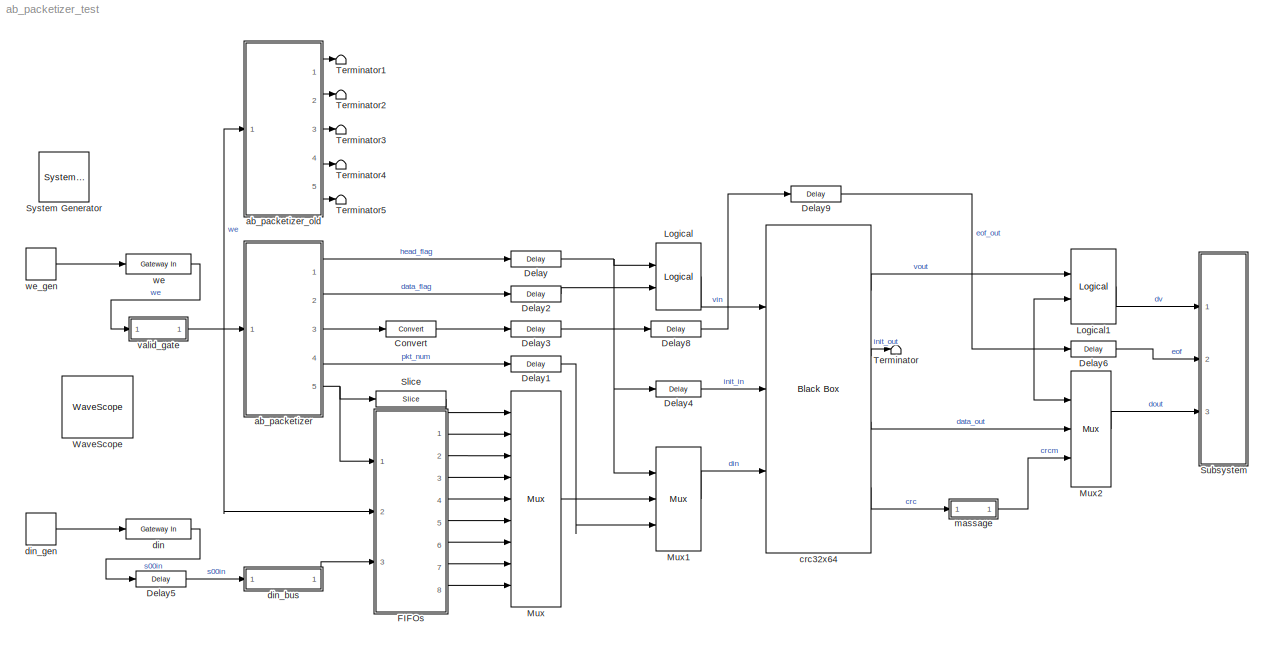
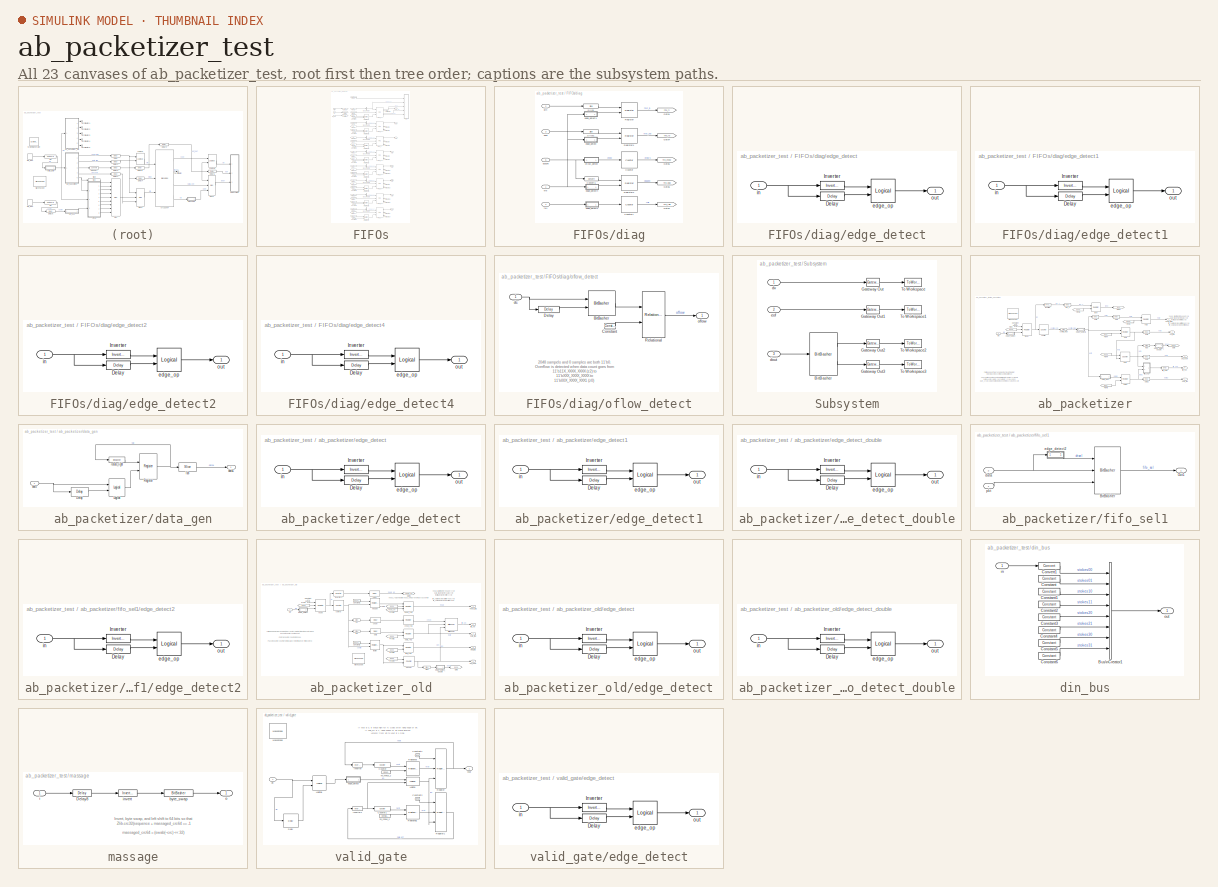
[diagram: thumbnail index - all 23 canvases of the model, root first then tree order]
MODEL ab_packetizer_test
KIND model
BLOCK [Reference]  System Generator  REF=xbsIndex_r4/ System Generator
  AttributesFormatString = System\\nGenerator
  Impl_file = ISE Defaults
  Ports = []
  SID = 21
  SourceBlock = xbsIndex_r4/ System Generator
  SourceType = Xilinx System Generator Block
  Synth_file = XST Defaults
  Tag = genX
  UserData = DataTag0
  UserDataPersistent = on
  block_type = sysgen
  clock_wrapper = Clock Enables
  core_generation = According to Block Masks
  dbl_ovrd = According to Block Masks
  dcm_input_clock_period = 100
  deprecated_control = off
  directory = ./s6/sysgen
  eval_field = 0
  has_advanced_control = 0
  incr_netlist = off
  infoedit = System Generator
  package = ff1759
  part = xc6vsx475t
  proj_type = Project Navigator
  run_coregen = off
  sg_icon_stat = 50,50,0,0,token,white,0,58c5b5770fe5f7c311f53dbc6e73f0f6,right,,[ ],[ ]
  sg_mask_display = fprintf('','COMMENT: begin icon graphics');\npatch([0 50 50 0 0 ],[0 0 50 50 0 ],[1 1 1 ]);\npatch([1.6375 16.81 27.31 37.81 48.31 27.31 12.1375 1.6375 ],[36.655 36.655 47.155 36.655 47.155 47.155 47.155 36.655 ],[0.933333 0.203922 0.141176 ]);\npatch([12.1375 27.31 16.81 1.6375 12.1375 ],[26.155 26.155 36.655 36.655 26.155 ],[0.698039 0.0313725 0.219608 ]);\npatch([1.6375 16.81 27.31 12.1375 1.63...<+335ch>
  sggui_pos = 326,241,464,470
  simulink_period = 1
  speed = -1
  synthesis_tool = XST
  sysclk_period = 4.4444
  testbench = off
  trim_vbits = Everywhere in SubSystem
  xilinxfamily = virtex6
BLOCK [Reference] Convert  REF=xbsIndex_r4/Convert
  Ports = [1, 1]
  SID = 228
  SourceBlock = xbsIndex_r4/Convert
  SourceType = Xilinx Type Converter Block
  arith_type = Unsigned
  bin_pt = 0
  block_type = convert
  dbl_ovrd = off
  en = off
  exp_bits = 8
  float_type = Single
  fraction_bits = 24
  gui_display_data_type = Fixed-point
  has_advanced_control = 0
  infoedit = Hardware notes: rounding and saturating require hardware resources; truncating and wrapping do not.
  latency = 0
  n_bits = 1
  overflow = Wrap
  pipeline = off
  quantization = Truncate
  sg_icon_stat = 50,16,1,1,white,blue,0,edca21da,right,,[ ],[ ]
  sg_mask_display = fprintf('','COMMENT: begin icon graphics');\npatch([0 50 50 0 0 ],[0 0 16 16 0 ],[0.77 0.82 0.91 ]);\nplot([0 50 50 0 0 ],[0 0 16 16 0 ]);\npatch([20.55 23.44 25.44 27.44 29.44 25.44 22.55 20.55 ],[10.22 10.22 12.22 10.22 12.22 12.22 12.22 10.22 ],[1 1 1 ]);\npatch([22.55 25.44 23.44 20.55 22.55 ],[8.22 8.22 10.22 10.22 8.22 ],[0.931 0.946 0.973 ]);\npatch([20.55 23.44 25.44 22.55 20.55 ],[6.22 6....<+315ch>  <repeated x3 — deduplicated; at blocks: Convert, Convert1>
  sggui_pos = 20,20,677,759
  xl_area = [0,0,0,0,0,0,0]
  xl_use_area = off
BLOCK [Reference] Delay  REF=xbsIndex_r4/Delay
  Ports = [1, 1]
  SID = 68
  SourceBlock = xbsIndex_r4/Delay
  SourceType = Xilinx Delay Block
  block_type = delay
  dbl_ovrd = off
  en = off
  has_advanced_control = 0
  infoedit = Hardware notes: A delay line is a chain, each link of which is an SRL16 followed by a flip-flop.
  infoeditControl = Selection of Reset will increase slice count due to use of real FFs and instead of SRLs
  latency = 1
  reg_retiming = on
  rst = off
  sg_icon_stat = 50,16,1,1,white,blue,0,07b98262,right,,[ ],[ ]
  sg_mask_display = fprintf('','COMMENT: begin icon graphics');\npatch([0 50 50 0 0 ],[0 0 16 16 0 ],[0.77 0.82 0.91 ]);\nplot([0 50 50 0 0 ],[0 0 16 16 0 ]);\npatch([20.55 23.44 25.44 27.44 29.44 25.44 22.55 20.55 ],[10.22 10.22 12.22 10.22 12.22 12.22 12.22 10.22 ],[1 1 1 ]);\npatch([22.55 25.44 23.44 20.55 22.55 ],[8.22 8.22 10.22 10.22 8.22 ],[0.931 0.946 0.973 ]);\npatch([20.55 23.44 25.44 22.55 20.55 ],[6.22 6....<+317ch>  <repeated x8 — deduplicated; at blocks: Delay, Delay1, Delay2, Delay3, Delay5, Delay8, Delay9>
  sggui_pos = 20,20,559,473
  xl_area = [0,0,0,0,0,0,0]
  xl_use_area = off
BLOCK [Reference] Delay1  REF=xbsIndex_r4/Delay
  Ports = [1, 1]
  SID = 69
  SourceBlock = xbsIndex_r4/Delay
  SourceType = Xilinx Delay Block
  block_type = delay
  dbl_ovrd = off
  en = off
  has_advanced_control = 0
  infoedit = Hardware notes: A delay line is a chain, each link of which is an SRL16 followed by a flip-flop.
  infoeditControl = Selection of Reset will increase slice count due to use of real FFs and instead of SRLs
  latency = 1
  reg_retiming = on
  rst = off
  sg_icon_stat = 50,16,1,1,white,blue,0,07b98262,right,,[ ],[ ]
  sggui_pos = 20,20,559,473
  xl_area = [0,0,0,0,0,0,0]
  xl_use_area = off
BLOCK [Reference] Delay2  REF=xbsIndex_r4/Delay
  Ports = [1, 1]
  SID = 70
  SourceBlock = xbsIndex_r4/Delay
  SourceType = Xilinx Delay Block
  block_type = delay
  dbl_ovrd = off
  en = off
  has_advanced_control = 0
  infoedit = Hardware notes: A delay line is a chain, each link of which is an SRL16 followed by a flip-flop.
  infoeditControl = Selection of Reset will increase slice count due to use of real FFs and instead of SRLs
  latency = 1
  reg_retiming = on
  rst = off
  sg_icon_stat = 50,16,1,1,white,blue,0,07b98262,right,,[ ],[ ]
  sggui_pos = 20,20,559,473
  xl_area = [0,0,0,0,0,0,0]
  xl_use_area = off
BLOCK [Reference] Delay3  REF=xbsIndex_r4/Delay
  Ports = [1, 1]
  SID = 71
  SourceBlock = xbsIndex_r4/Delay
  SourceType = Xilinx Delay Block
  block_type = delay
  dbl_ovrd = off
  en = off
  has_advanced_control = 0
  infoedit = Hardware notes: A delay line is a chain, each link of which is an SRL16 followed by a flip-flop.
  infoeditControl = Selection of Reset will increase slice count due to use of real FFs and instead of SRLs
  latency = 1
  reg_retiming = on
  rst = off
  sg_icon_stat = 50,16,1,1,white,blue,0,07b98262,right,,[ ],[ ]
  sggui_pos = 20,20,559,473
  xl_area = [0,0,0,0,0,0,0]
  xl_use_area = off
BLOCK [Reference] Delay4  REF=xbsIndex_r4/Delay
  Ports = [1, 1]
  SID = 72
  SourceBlock = xbsIndex_r4/Delay
  SourceType = Xilinx Delay Block
  block_type = delay
  dbl_ovrd = off
  en = off
  has_advanced_control = 0
  infoedit = Hardware notes: A delay line is a chain, each link of which is an SRL16 followed by a flip-flop.
  infoeditControl = Selection of Reset will increase slice count due to use of real FFs and instead of SRLs
  latency = 1
  reg_retiming = on
  rst = off
  sg_icon_stat = 45,16,1,1,white,blue,0,07b98262,right,,[ ],[ ]
  sg_mask_display = fprintf('','COMMENT: begin icon graphics');\npatch([0 45 45 0 0 ],[0 0 16 16 0 ],[0.77 0.82 0.91 ]);\nplot([0 45 45 0 0 ],[0 0 16 16 0 ]);\npatch([17.55 20.44 22.44 24.44 26.44 22.44 19.55 17.55 ],[10.22 10.22 12.22 10.22 12.22 12.22 12.22 10.22 ],[1 1 1 ]);\npatch([19.55 22.44 20.44 17.55 19.55 ],[8.22 8.22 10.22 10.22 8.22 ],[0.931 0.946 0.973 ]);\npatch([17.55 20.44 22.44 19.55 17.55 ],[6.22 6....<+317ch>  <repeated x14 — deduplicated; at blocks: Delay4, Delay6, Delay, Delay8>
  sggui_pos = 20,20,559,473
  xl_area = [0,0,0,0,0,0,0]
  xl_use_area = off
BLOCK [Reference] Delay5  REF=xbsIndex_r4/Delay
  Ports = [1, 1]
  SID = 512
  SourceBlock = xbsIndex_r4/Delay
  SourceType = Xilinx Delay Block
  block_type = delay
  dbl_ovrd = off
  en = off
  has_advanced_control = 0
  infoedit = Hardware notes: A delay line is a chain, each link of which is an SRL16 followed by a flip-flop.
  infoeditControl = Selection of Reset will increase slice count due to use of real FFs and instead of SRLs
  latency = 1
  reg_retiming = on
  rst = off
  sg_icon_stat = 50,16,1,1,white,blue,0,07b98262,right,,[ ],[ ]
  sggui_pos = 20,20,559,473
  xl_area = [0,0,0,0,0,0,0]
  xl_use_area = off
BLOCK [Reference] Delay6  REF=xbsIndex_r4/Delay
  Ports = [1, 1]
  SID = 101
  SourceBlock = xbsIndex_r4/Delay
  SourceType = Xilinx Delay Block
  block_type = delay
  dbl_ovrd = off
  en = off
  has_advanced_control = 0
  infoedit = Hardware notes: A delay line is a chain, each link of which is an SRL16 followed by a flip-flop.
  infoeditControl = Selection of Reset will increase slice count due to use of real FFs and instead of SRLs
  latency = 1
  reg_retiming = on
  rst = off
  sg_icon_stat = 45,16,1,1,white,blue,0,07b98262,right,,[ ],[ ]
  sggui_pos = 20,20,559,473
  xl_area = [0,0,0,0,0,0,0]
  xl_use_area = off
BLOCK [Reference] Delay8  REF=xbsIndex_r4/Delay
  Ports = [1, 1]
  SID = 225
  SourceBlock = xbsIndex_r4/Delay
  SourceType = Xilinx Delay Block
  block_type = delay
  dbl_ovrd = off
  en = off
  has_advanced_control = 0
  infoedit = Hardware notes: A delay line is a chain, each link of which is an SRL16 followed by a flip-flop.
  infoeditControl = Selection of Reset will increase slice count due to use of real FFs and instead of SRLs
  latency = 1
  reg_retiming = on
  rst = off
  sg_icon_stat = 50,16,1,1,white,blue,0,07b98262,right,,[ ],[ ]
  sggui_pos = 20,20,559,473
  xl_area = [0,0,0,0,0,0,0]
  xl_use_area = off
BLOCK [Reference] Delay9  REF=xbsIndex_r4/Delay
  Ports = [1, 1]
  SID = 226
  SourceBlock = xbsIndex_r4/Delay
  SourceType = Xilinx Delay Block
  block_type = delay
  dbl_ovrd = off
  en = off
  has_advanced_control = 0
  infoedit = Hardware notes: A delay line is a chain, each link of which is an SRL16 followed by a flip-flop.
  infoeditControl = Selection of Reset will increase slice count due to use of real FFs and instead of SRLs
  latency = 7
  reg_retiming = on
  rst = off
  sg_icon_stat = 50,16,1,1,white,blue,0,d93bb731,right,,[ ],[ ]
  sggui_pos = 20,20,559,473
  xl_area = [0,0,0,0,0,0,0]
  xl_use_area = off
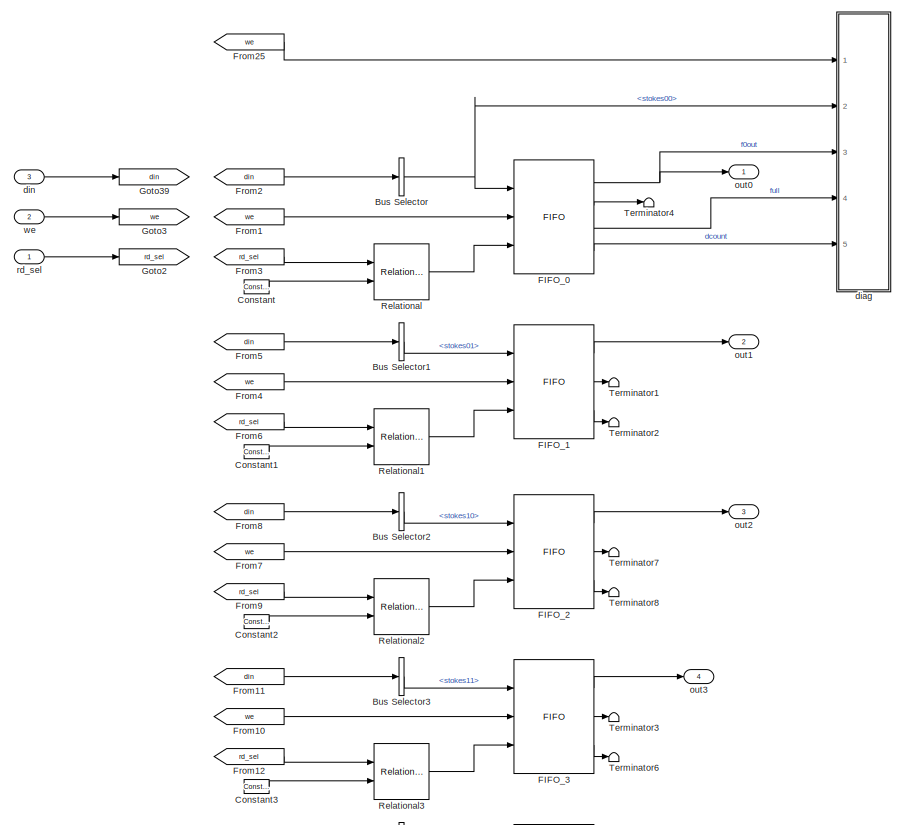
[diagram: FIFOs - part 1/2, full width, top band]
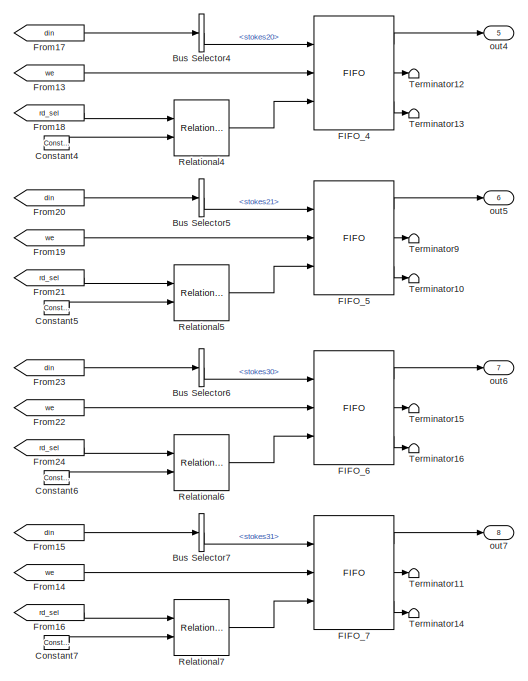
[diagram: FIFOs - part 2/2, bottom center region]
BLOCK [SubSystem] FIFOs
  FunctionWithSeparateData = off
  MaskHideContents = off
  MinAlgLoopOccurrences = off
  Opaque = off
  Ports = [3, 8]
  PropExecContextOutsideSubsystem = off
  RTWSystemCode = Auto
  RequestExecContextInheritance = off
  SID = 351
BLOCK [BusSelector] FIFOs/Bus Selector
  OutputSignals = stokes00
  Ports = [1, 1]
  SID = 355
BLOCK [BusSelector] FIFOs/Bus Selector1
  OutputSignals = stokes01
  Ports = [1, 1]
  SID = 356
BLOCK [BusSelector] FIFOs/Bus Selector2
  OutputSignals = stokes10
  Ports = [1, 1]
  SID = 357
BLOCK [BusSelector] FIFOs/Bus Selector3
  OutputSignals = stokes11
  Ports = [1, 1]
  SID = 358
BLOCK [BusSelector] FIFOs/Bus Selector4
  OutputSignals = stokes20
  Ports = [1, 1]
  SID = 359
BLOCK [BusSelector] FIFOs/Bus Selector5
  OutputSignals = stokes21
  Ports = [1, 1]
  SID = 360
BLOCK [BusSelector] FIFOs/Bus Selector6
  OutputSignals = stokes30
  Ports = [1, 1]
  SID = 361
BLOCK [BusSelector] FIFOs/Bus Selector7
  OutputSignals = stokes31
  Ports = [1, 1]
  SID = 362
BLOCK [Reference] FIFOs/Constant  REF=xbsIndex_r4/Constant
  Ports = [0, 1]
  SID = 363
  SourceBlock = xbsIndex_r4/Constant
  SourceType = Xilinx Constant Block Block
  arith_type = Unsigned
  bin_pt = 0
  block_type = constant
  carry = CIN
  const = 8+0
  dbl_ovrd = off
  dsp48_infoedit = The use of this block for DSP48 instructions is deprecated.  Please use the Opmode block.
  equ = P=C
  exp_width = 8
  explicit_period = on
  frac_width = 24
  gui_display_data_type = Fixed-point
  has_advanced_control = 0
  inp1 = P
  inp2 = PCIN>>17
  n_bits = 4
  opr = +
  opselect = C
  period = 1
  preci_type = Single
  sg_icon_stat = 25,14,0,1,white,blue,0,7a8c02d8,right,,[ ],[ ]
  sg_mask_display = fprintf('','COMMENT: begin icon graphics');\npatch([0 25 25 0 0 ],[0 0 14 14 0 ],[0.77 0.82 0.91 ]);\nplot([0 25 25 0 0 ],[0 0 14 14 0 ]);\npatch([7.55 10.44 12.44 14.44 16.44 12.44 9.55 7.55 ],[9.22 9.22 11.22 9.22 11.22 11.22 11.22 9.22 ],[1 1 1 ]);\npatch([9.55 12.44 10.44 7.55 9.55 ],[7.22 7.22 9.22 9.22 7.22 ],[0.931 0.946 0.973 ]);\npatch([7.55 10.44 12.44 9.55 7.55 ],[5.22 5.22 7.22 7.22 5....<+292ch>
  sggui_pos = 20,20,418,547
BLOCK [Reference] FIFOs/Constant1  REF=xbsIndex_r4/Constant
  Ports = [0, 1]
  SID = 364
  SourceBlock = xbsIndex_r4/Constant
  SourceType = Xilinx Constant Block Block
  arith_type = Unsigned
  bin_pt = 0
  block_type = constant
  carry = CIN
  const = 8+1
  dbl_ovrd = off
  dsp48_infoedit = The use of this block for DSP48 instructions is deprecated.  Please use the Opmode block.
  equ = P=C
  exp_width = 8
  explicit_period = on
  frac_width = 24
  gui_display_data_type = Fixed-point
  has_advanced_control = 0
  inp1 = P
  inp2 = PCIN>>17
  n_bits = 4
  opr = +
  opselect = C
  period = 1
  preci_type = Single
  sg_icon_stat = 25,14,0,1,white,blue,0,350ae870,right,,[ ],[ ]
  sg_mask_display = fprintf('','COMMENT: begin icon graphics');\npatch([0 25 25 0 0 ],[0 0 14 14 0 ],[0.77 0.82 0.91 ]);\nplot([0 25 25 0 0 ],[0 0 14 14 0 ]);\npatch([7.55 10.44 12.44 14.44 16.44 12.44 9.55 7.55 ],[9.22 9.22 11.22 9.22 11.22 11.22 11.22 9.22 ],[1 1 1 ]);\npatch([9.55 12.44 10.44 7.55 9.55 ],[7.22 7.22 9.22 9.22 7.22 ],[0.931 0.946 0.973 ]);\npatch([7.55 10.44 12.44 9.55 7.55 ],[5.22 5.22 7.22 7.22 5....<+292ch>
  sggui_pos = 20,20,418,547
BLOCK [Reference] FIFOs/Constant2  REF=xbsIndex_r4/Constant
  Ports = [0, 1]
  SID = 365
  SourceBlock = xbsIndex_r4/Constant
  SourceType = Xilinx Constant Block Block
  arith_type = Unsigned
  bin_pt = 0
  block_type = constant
  carry = CIN
  const = 8+2
  dbl_ovrd = off
  dsp48_infoedit = The use of this block for DSP48 instructions is deprecated.  Please use the Opmode block.
  equ = P=C
  exp_width = 8
  explicit_period = on
  frac_width = 24
  gui_display_data_type = Fixed-point
  has_advanced_control = 0
  inp1 = P
  inp2 = PCIN>>17
  n_bits = 4
  opr = +
  opselect = C
  period = 1
  preci_type = Single
  sg_icon_stat = 25,14,0,1,white,blue,0,46ffeebb,right,,[ ],[ ]
  sg_mask_display = fprintf('','COMMENT: begin icon graphics');\npatch([0 25 25 0 0 ],[0 0 14 14 0 ],[0.77 0.82 0.91 ]);\nplot([0 25 25 0 0 ],[0 0 14 14 0 ]);\npatch([7.55 10.44 12.44 14.44 16.44 12.44 9.55 7.55 ],[9.22 9.22 11.22 9.22 11.22 11.22 11.22 9.22 ],[1 1 1 ]);\npatch([9.55 12.44 10.44 7.55 9.55 ],[7.22 7.22 9.22 9.22 7.22 ],[0.931 0.946 0.973 ]);\npatch([7.55 10.44 12.44 9.55 7.55 ],[5.22 5.22 7.22 7.22 5....<+293ch>  <repeated x7 — deduplicated; at blocks: Constant2, Constant3, Constant4, Constant5, Constant6, Constant7, Constant>
  sggui_pos = 20,20,418,547
BLOCK [Reference] FIFOs/Constant3  REF=xbsIndex_r4/Constant
  Ports = [0, 1]
  SID = 366
  SourceBlock = xbsIndex_r4/Constant
  SourceType = Xilinx Constant Block Block
  arith_type = Unsigned
  bin_pt = 0
  block_type = constant
  carry = CIN
  const = 8+3
  dbl_ovrd = off
  dsp48_infoedit = The use of this block for DSP48 instructions is deprecated.  Please use the Opmode block.
  equ = P=C
  exp_width = 8
  explicit_period = on
  frac_width = 24
  gui_display_data_type = Fixed-point
  has_advanced_control = 0
  inp1 = P
  inp2 = PCIN>>17
  n_bits = 4
  opr = +
  opselect = C
  period = 1
  preci_type = Single
  sg_icon_stat = 25,14,0,1,white,blue,0,997df0ab,right,,[ ],[ ]
  sggui_pos = 20,20,418,547
BLOCK [Reference] FIFOs/Constant4  REF=xbsIndex_r4/Constant
  Ports = [0, 1]
  SID = 367
  SourceBlock = xbsIndex_r4/Constant
  SourceType = Xilinx Constant Block Block
  arith_type = Unsigned
  bin_pt = 0
  block_type = constant
  carry = CIN
  const = 8+4
  dbl_ovrd = off
  dsp48_infoedit = The use of this block for DSP48 instructions is deprecated.  Please use the Opmode block.
  equ = P=C
  exp_width = 8
  explicit_period = on
  frac_width = 24
  gui_display_data_type = Fixed-point
  has_advanced_control = 0
  inp1 = P
  inp2 = PCIN>>17
  n_bits = 4
  opr = +
  opselect = C
  period = 1
  preci_type = Single
  sg_icon_stat = 25,14,0,1,white,blue,0,9a294e94,right,,[ ],[ ]
  sggui_pos = 20,20,418,547
BLOCK [Reference] FIFOs/Constant5  REF=xbsIndex_r4/Constant
  Ports = [0, 1]
  SID = 368
  SourceBlock = xbsIndex_r4/Constant
  SourceType = Xilinx Constant Block Block
  arith_type = Unsigned
  bin_pt = 0
  block_type = constant
  carry = CIN
  const = 8+5
  dbl_ovrd = off
  dsp48_infoedit = The use of this block for DSP48 instructions is deprecated.  Please use the Opmode block.
  equ = P=C
  exp_width = 8
  explicit_period = on
  frac_width = 24
  gui_display_data_type = Fixed-point
  has_advanced_control = 0
  inp1 = P
  inp2 = PCIN>>17
  n_bits = 4
  opr = +
  opselect = C
  period = 1
  preci_type = Single
  sg_icon_stat = 25,14,0,1,white,blue,0,e89bb8cb,right,,[ ],[ ]
  sggui_pos = 20,20,418,547
BLOCK [Reference] FIFOs/Constant6  REF=xbsIndex_r4/Constant
  Ports = [0, 1]
  SID = 369
  SourceBlock = xbsIndex_r4/Constant
  SourceType = Xilinx Constant Block Block
  arith_type = Unsigned
  bin_pt = 0
  block_type = constant
  carry = CIN
  const = 8+6
  dbl_ovrd = off
  dsp48_infoedit = The use of this block for DSP48 instructions is deprecated.  Please use the Opmode block.
  equ = P=C
  exp_width = 8
  explicit_period = on
  frac_width = 24
  gui_display_data_type = Fixed-point
  has_advanced_control = 0
  inp1 = P
  inp2 = PCIN>>17
  n_bits = 4
  opr = +
  opselect = C
  period = 1
  preci_type = Single
  sg_icon_stat = 25,14,0,1,white,blue,0,9e70b1fa,right,,[ ],[ ]
  sggui_pos = 20,20,418,547
BLOCK [Reference] FIFOs/Constant7  REF=xbsIndex_r4/Constant
  Ports = [0, 1]
  SID = 370
  SourceBlock = xbsIndex_r4/Constant
  SourceType = Xilinx Constant Block Block
  arith_type = Unsigned
  bin_pt = 0
  block_type = constant
  carry = CIN
  const = 8+7
  dbl_ovrd = off
  dsp48_infoedit = The use of this block for DSP48 instructions is deprecated.  Please use the Opmode block.
  equ = P=C
  exp_width = 8
  explicit_period = on
  frac_width = 24
  gui_display_data_type = Fixed-point
  has_advanced_control = 0
  inp1 = P
  inp2 = PCIN>>17
  n_bits = 4
  opr = +
  opselect = C
  period = 1
  preci_type = Single
  sg_icon_stat = 25,14,0,1,white,blue,0,1164c07c,right,,[ ],[ ]
  sggui_pos = 20,20,418,547
BLOCK [Reference] FIFOs/FIFO_0  REF=xbsIndex_r4/FIFO
  Ports = [3, 4]
  SID = 371
  SourceBlock = xbsIndex_r4/FIFO
  SourceType = Xilinx FIFO Block Block
  almost_empty_thresh = 2
  almost_full_thresh = 14
  block_type = fifo
  dbl_ovrd = off
  depth = 2K
  embedded_registers = on
  en = off
  explicit_period = off
  has_advanced_control = 0
  infoedit1 = Available only for V4, V5, V6, V7, K7, A7 and Zynq devices.
  mem_type = Block RAM
  percent_nbits = 1
  performance_options = First_Word_Fall_Through
  rst = off
  sg_icon_stat = 80,114,3,4,white,blue,0,afd465cb,right,,[ ],[ ]
  sg_mask_display = fprintf('','COMMENT: begin icon graphics');\npatch([0 80 80 0 0 ],[0 0 114 114 0 ],[0.77 0.82 0.91 ]);\nplot([0 80 80 0 0 ],[0 0 114 114 0 ]);\npatch([15.525 31.42 42.42 53.42 64.42 42.42 26.525 15.525 ],[69.21 69.21 80.21 69.21 80.21 80.21 80.21 69.21 ],[1 1 1 ]);\npatch([26.525 42.42 31.42 15.525 26.525 ],[58.21 58.21 69.21 69.21 58.21 ],[0.931 0.946 0.973 ]);\npatch([15.525 31.42 42.42 26.525 1...<+621ch>
  sggui_pos = 1067,0,611,897
  use_almost_empty = off
  use_almost_full = off
  use_dcount = on
  use_percent_full_port = off
  xl_area = [0,0,0,0,0,0,0]
  xl_use_area = off
BLOCK [Reference] FIFOs/FIFO_1  REF=xbsIndex_r4/FIFO
  Ports = [3, 3]
  SID = 372
  SourceBlock = xbsIndex_r4/FIFO
  SourceType = Xilinx FIFO Block Block
  almost_empty_thresh = 2
  almost_full_thresh = 14
  block_type = fifo
  dbl_ovrd = off
  depth = 2K
  embedded_registers = on
  en = off
  explicit_period = off
  has_advanced_control = 0
  infoedit1 = Available only for V4, V5, V6, V7, K7, A7 and Zynq devices.
  mem_type = Block RAM
  percent_nbits = 1
  performance_options = First_Word_Fall_Through
  rst = off
  sg_icon_stat = 80,114,3,3,white,blue,0,375ec951,right,,[ ],[ ]
  sg_mask_display = fprintf('','COMMENT: begin icon graphics');\npatch([0 80 80 0 0 ],[0 0 114 114 0 ],[0.77 0.82 0.91 ]);\nplot([0 80 80 0 0 ],[0 0 114 114 0 ]);\npatch([15.525 31.42 42.42 53.42 64.42 42.42 26.525 15.525 ],[69.21 69.21 80.21 69.21 80.21 80.21 80.21 69.21 ],[1 1 1 ]);\npatch([26.525 42.42 31.42 15.525 26.525 ],[58.21 58.21 69.21 69.21 58.21 ],[0.931 0.946 0.973 ]);\npatch([15.525 31.42 42.42 26.525 1...<+572ch>  <repeated x7 — deduplicated; at blocks: FIFO_1, FIFO_2, FIFO_3, FIFO_4, FIFO_5, FIFO_6, FIFO_7>
  sggui_pos = 1067,0,611,897
  use_almost_empty = off
  use_almost_full = off
  use_dcount = off
  use_percent_full_port = off
  xl_area = [0,0,0,0,0,0,0]
  xl_use_area = off
BLOCK [Reference] FIFOs/FIFO_2  REF=xbsIndex_r4/FIFO
  Ports = [3, 3]
  SID = 373
  SourceBlock = xbsIndex_r4/FIFO
  SourceType = Xilinx FIFO Block Block
  almost_empty_thresh = 2
  almost_full_thresh = 14
  block_type = fifo
  dbl_ovrd = off
  depth = 2K
  embedded_registers = on
  en = off
  explicit_period = off
  has_advanced_control = 0
  infoedit1 = Available only for V4, V5, V6, V7, K7, A7 and Zynq devices.
  mem_type = Block RAM
  percent_nbits = 1
  performance_options = First_Word_Fall_Through
  rst = off
  sg_icon_stat = 80,114,3,3,white,blue,0,375ec951,right,,[ ],[ ]
  sggui_pos = 1067,0,611,897
  use_almost_empty = off
  use_almost_full = off
  use_dcount = off
  use_percent_full_port = off
  xl_area = [0,0,0,0,0,0,0]
  xl_use_area = off
BLOCK [Reference] FIFOs/FIFO_3  REF=xbsIndex_r4/FIFO
  Ports = [3, 3]
  SID = 374
  SourceBlock = xbsIndex_r4/FIFO
  SourceType = Xilinx FIFO Block Block
  almost_empty_thresh = 2
  almost_full_thresh = 14
  block_type = fifo
  dbl_ovrd = off
  depth = 2K
  embedded_registers = on
  en = off
  explicit_period = off
  has_advanced_control = 0
  infoedit1 = Available only for V4, V5, V6, V7, K7, A7 and Zynq devices.
  mem_type = Block RAM
  percent_nbits = 1
  performance_options = First_Word_Fall_Through
  rst = off
  sg_icon_stat = 80,114,3,3,white,blue,0,375ec951,right,,[ ],[ ]
  sggui_pos = 1067,0,611,897
  use_almost_empty = off
  use_almost_full = off
  use_dcount = off
  use_percent_full_port = off
  xl_area = [0,0,0,0,0,0,0]
  xl_use_area = off
BLOCK [Reference] FIFOs/FIFO_4  REF=xbsIndex_r4/FIFO
  Ports = [3, 3]
  SID = 375
  SourceBlock = xbsIndex_r4/FIFO
  SourceType = Xilinx FIFO Block Block
  almost_empty_thresh = 2
  almost_full_thresh = 14
  block_type = fifo
  dbl_ovrd = off
  depth = 2K
  embedded_registers = on
  en = off
  explicit_period = off
  has_advanced_control = 0
  infoedit1 = Available only for V4, V5, V6, V7, K7, A7 and Zynq devices.
  mem_type = Block RAM
  percent_nbits = 1
  performance_options = First_Word_Fall_Through
  rst = off
  sg_icon_stat = 80,114,3,3,white,blue,0,375ec951,right,,[ ],[ ]
  sggui_pos = 1067,0,611,897
  use_almost_empty = off
  use_almost_full = off
  use_dcount = off
  use_percent_full_port = off
  xl_area = [0,0,0,0,0,0,0]
  xl_use_area = off
BLOCK [Reference] FIFOs/FIFO_5  REF=xbsIndex_r4/FIFO
  Ports = [3, 3]
  SID = 376
  SourceBlock = xbsIndex_r4/FIFO
  SourceType = Xilinx FIFO Block Block
  almost_empty_thresh = 2
  almost_full_thresh = 14
  block_type = fifo
  dbl_ovrd = off
  depth = 2K
  embedded_registers = on
  en = off
  explicit_period = off
  has_advanced_control = 0
  infoedit1 = Available only for V4, V5, V6, V7, K7, A7 and Zynq devices.
  mem_type = Block RAM
  percent_nbits = 1
  performance_options = First_Word_Fall_Through
  rst = off
  sg_icon_stat = 80,114,3,3,white,blue,0,375ec951,right,,[ ],[ ]
  sggui_pos = 1067,0,611,897
  use_almost_empty = off
  use_almost_full = off
  use_dcount = off
  use_percent_full_port = off
  xl_area = [0,0,0,0,0,0,0]
  xl_use_area = off
BLOCK [Reference] FIFOs/FIFO_6  REF=xbsIndex_r4/FIFO
  Ports = [3, 3]
  SID = 377
  SourceBlock = xbsIndex_r4/FIFO
  SourceType = Xilinx FIFO Block Block
  almost_empty_thresh = 2
  almost_full_thresh = 14
  block_type = fifo
  dbl_ovrd = off
  depth = 2K
  embedded_registers = on
  en = off
  explicit_period = off
  has_advanced_control = 0
  infoedit1 = Available only for V4, V5, V6, V7, K7, A7 and Zynq devices.
  mem_type = Block RAM
  percent_nbits = 1
  performance_options = First_Word_Fall_Through
  rst = off
  sg_icon_stat = 80,114,3,3,white,blue,0,375ec951,right,,[ ],[ ]
  sggui_pos = 1067,0,611,897
  use_almost_empty = off
  use_almost_full = off
  use_dcount = off
  use_percent_full_port = off
  xl_area = [0,0,0,0,0,0,0]
  xl_use_area = off
BLOCK [Reference] FIFOs/FIFO_7  REF=xbsIndex_r4/FIFO
  Ports = [3, 3]
  SID = 378
  SourceBlock = xbsIndex_r4/FIFO
  SourceType = Xilinx FIFO Block Block
  almost_empty_thresh = 2
  almost_full_thresh = 14
  block_type = fifo
  dbl_ovrd = off
  depth = 2K
  embedded_registers = on
  en = off
  explicit_period = off
  has_advanced_control = 0
  infoedit1 = Available only for V4, V5, V6, V7, K7, A7 and Zynq devices.
  mem_type = Block RAM
  percent_nbits = 1
  performance_options = First_Word_Fall_Through
  rst = off
  sg_icon_stat = 80,114,3,3,white,blue,0,375ec951,right,,[ ],[ ]
  sggui_pos = 1067,0,611,897
  use_almost_empty = off
  use_almost_full = off
  use_dcount = off
  use_percent_full_port = off
  xl_area = [0,0,0,0,0,0,0]
  xl_use_area = off
BLOCK [From] FIFOs/From1
  CloseFcn = tagdialog Close
  GotoTag = we
  SID = 379
BLOCK [From] FIFOs/From10
  CloseFcn = tagdialog Close
  GotoTag = we
  SID = 380
BLOCK [From] FIFOs/From11
  CloseFcn = tagdialog Close
  GotoTag = din
  SID = 381
BLOCK [From] FIFOs/From12
  CloseFcn = tagdialog Close
  GotoTag = rd_sel
  SID = 382
BLOCK [From] FIFOs/From13
  CloseFcn = tagdialog Close
  GotoTag = we
  SID = 383
BLOCK [From] FIFOs/From14
  CloseFcn = tagdialog Close
  GotoTag = we
  SID = 384
BLOCK [From] FIFOs/From15
  CloseFcn = tagdialog Close
  GotoTag = din
  SID = 385
BLOCK [From] FIFOs/From16
  CloseFcn = tagdialog Close
  GotoTag = rd_sel
  SID = 386
BLOCK [From] FIFOs/From17
  CloseFcn = tagdialog Close
  GotoTag = din
  SID = 387
BLOCK [From] FIFOs/From18
  CloseFcn = tagdialog Close
  GotoTag = rd_sel
  SID = 388
BLOCK [From] FIFOs/From19
  CloseFcn = tagdialog Close
  GotoTag = we
  SID = 389
BLOCK [From] FIFOs/From2
  CloseFcn = tagdialog Close
  GotoTag = din
  SID = 390
BLOCK [From] FIFOs/From20
  CloseFcn = tagdialog Close
  GotoTag = din
  SID = 391
BLOCK [From] FIFOs/From21
  CloseFcn = tagdialog Close
  GotoTag = rd_sel
  SID = 392
BLOCK [From] FIFOs/From22
  CloseFcn = tagdialog Close
  GotoTag = we
  SID = 393
BLOCK [From] FIFOs/From23
  CloseFcn = tagdialog Close
  GotoTag = din
  SID = 394
BLOCK [From] FIFOs/From24
  CloseFcn = tagdialog Close
  GotoTag = rd_sel
  SID = 395
BLOCK [From] FIFOs/From25
  CloseFcn = tagdialog Close
  GotoTag = we
  SID = 461
BLOCK [From] FIFOs/From3
  CloseFcn = tagdialog Close
  GotoTag = rd_sel
  SID = 396
BLOCK [From] FIFOs/From4
  CloseFcn = tagdialog Close
  GotoTag = we
  SID = 397
BLOCK [From] FIFOs/From5
  CloseFcn = tagdialog Close
  GotoTag = din
  SID = 398
BLOCK [From] FIFOs/From6
  CloseFcn = tagdialog Close
  GotoTag = rd_sel
  SID = 399
BLOCK [From] FIFOs/From7
  CloseFcn = tagdialog Close
  GotoTag = we
  SID = 400
BLOCK [From] FIFOs/From8
  CloseFcn = tagdialog Close
  GotoTag = din
  SID = 401
BLOCK [From] FIFOs/From9
  CloseFcn = tagdialog Close
  GotoTag = rd_sel
  SID = 402
BLOCK [Goto] FIFOs/Goto2
  GotoTag = rd_sel
  SID = 403
BLOCK [Goto] FIFOs/Goto3
  GotoTag = we
  SID = 404
BLOCK [Goto] FIFOs/Goto39
  GotoTag = din
  SID = 405
BLOCK [Reference] FIFOs/Relational  REF=xbsIndex_r4/Relational
  Ports = [2, 1]
  SID = 406
  SourceBlock = xbsIndex_r4/Relational
  SourceType = Xilinx Arithmetic Relational Operator Block
  block_type = relational
  dbl_ovrd = off
  en = off
  has_advanced_control = 0
  latency = 0
  mode = a=b
  sg_icon_stat = 55,56,2,1,white,blue,0,2a81ff49,right,,[ ],[ ]
  sg_mask_display = fprintf('','COMMENT: begin icon graphics');\npatch([0 55 55 0 0 ],[0 0 56 56 0 ],[0.77 0.82 0.91 ]);\nplot([0 55 55 0 0 ],[0 0 56 56 0 ]);\npatch([11.425 21.54 28.54 35.54 42.54 28.54 18.425 11.425 ],[35.77 35.77 42.77 35.77 42.77 42.77 42.77 35.77 ],[1 1 1 ]);\npatch([18.425 28.54 21.54 11.425 18.425 ],[28.77 28.77 35.77 35.77 28.77 ],[0.931 0.946 0.973 ]);\npatch([11.425 21.54 28.54 18.425 11.42...<+473ch>  <repeated x8 — deduplicated; at blocks: Relational, Relational1, Relational2, Relational3, Relational4, Relational5, Relational6, Relational7>
  sggui_pos = 20,20,559,239
  xl_area = [0,0,0,0,0,0,0]
  xl_use_area = off
BLOCK [Reference] FIFOs/Relational1  REF=xbsIndex_r4/Relational
  Ports = [2, 1]
  SID = 407
  SourceBlock = xbsIndex_r4/Relational
  SourceType = Xilinx Arithmetic Relational Operator Block
  block_type = relational
  dbl_ovrd = off
  en = off
  has_advanced_control = 0
  latency = 0
  mode = a=b
  sg_icon_stat = 55,56,2,1,white,blue,0,2a81ff49,right,,[ ],[ ]
  sggui_pos = 20,20,559,239
  xl_area = [0,0,0,0,0,0,0]
  xl_use_area = off
BLOCK [Reference] FIFOs/Relational2  REF=xbsIndex_r4/Relational
  Ports = [2, 1]
  SID = 408
  SourceBlock = xbsIndex_r4/Relational
  SourceType = Xilinx Arithmetic Relational Operator Block
  block_type = relational
  dbl_ovrd = off
  en = off
  has_advanced_control = 0
  latency = 0
  mode = a=b
  sg_icon_stat = 55,56,2,1,white,blue,0,2a81ff49,right,,[ ],[ ]
  sggui_pos = 20,20,559,239
  xl_area = [0,0,0,0,0,0,0]
  xl_use_area = off
BLOCK [Reference] FIFOs/Relational3  REF=xbsIndex_r4/Relational
  Ports = [2, 1]
  SID = 409
  SourceBlock = xbsIndex_r4/Relational
  SourceType = Xilinx Arithmetic Relational Operator Block
  block_type = relational
  dbl_ovrd = off
  en = off
  has_advanced_control = 0
  latency = 0
  mode = a=b
  sg_icon_stat = 55,56,2,1,white,blue,0,2a81ff49,right,,[ ],[ ]
  sggui_pos = 20,20,559,239
  xl_area = [0,0,0,0,0,0,0]
  xl_use_area = off
BLOCK [Reference] FIFOs/Relational4  REF=xbsIndex_r4/Relational
  Ports = [2, 1]
  SID = 410
  SourceBlock = xbsIndex_r4/Relational
  SourceType = Xilinx Arithmetic Relational Operator Block
  block_type = relational
  dbl_ovrd = off
  en = off
  has_advanced_control = 0
  latency = 0
  mode = a=b
  sg_icon_stat = 55,56,2,1,white,blue,0,2a81ff49,right,,[ ],[ ]
  sggui_pos = 20,20,559,239
  xl_area = [0,0,0,0,0,0,0]
  xl_use_area = off
BLOCK [Reference] FIFOs/Relational5  REF=xbsIndex_r4/Relational
  Ports = [2, 1]
  SID = 411
  SourceBlock = xbsIndex_r4/Relational
  SourceType = Xilinx Arithmetic Relational Operator Block
  block_type = relational
  dbl_ovrd = off
  en = off
  has_advanced_control = 0
  latency = 0
  mode = a=b
  sg_icon_stat = 55,56,2,1,white,blue,0,2a81ff49,right,,[ ],[ ]
  sggui_pos = 20,20,559,239
  xl_area = [0,0,0,0,0,0,0]
  xl_use_area = off
BLOCK [Reference] FIFOs/Relational6  REF=xbsIndex_r4/Relational
  Ports = [2, 1]
  SID = 412
  SourceBlock = xbsIndex_r4/Relational
  SourceType = Xilinx Arithmetic Relational Operator Block
  block_type = relational
  dbl_ovrd = off
  en = off
  has_advanced_control = 0
  latency = 0
  mode = a=b
  sg_icon_stat = 55,56,2,1,white,blue,0,2a81ff49,right,,[ ],[ ]
  sggui_pos = 20,20,559,239
  xl_area = [0,0,0,0,0,0,0]
  xl_use_area = off
BLOCK [Reference] FIFOs/Relational7  REF=xbsIndex_r4/Relational
  Ports = [2, 1]
  SID = 413
  SourceBlock = xbsIndex_r4/Relational
  SourceType = Xilinx Arithmetic Relational Operator Block
  block_type = relational
  dbl_ovrd = off
  en = off
  has_advanced_control = 0
  latency = 0
  mode = a=b
  sg_icon_stat = 55,56,2,1,white,blue,0,2a81ff49,right,,[ ],[ ]
  sggui_pos = 20,20,559,239
  xl_area = [0,0,0,0,0,0,0]
  xl_use_area = off
BLOCK [Terminator] FIFOs/Terminator1
  SID = 414
BLOCK [Terminator] FIFOs/Terminator10
  SID = 415
BLOCK [Terminator] FIFOs/Terminator11
  SID = 416
BLOCK [Terminator] FIFOs/Terminator12
  SID = 417
BLOCK [Terminator] FIFOs/Terminator13
  SID = 418
BLOCK [Terminator] FIFOs/Terminator14
  SID = 419
BLOCK [Terminator] FIFOs/Terminator15
  SID = 420
BLOCK [Terminator] FIFOs/Terminator16
  SID = 421
BLOCK [Terminator] FIFOs/Terminator2
  SID = 422
BLOCK [Terminator] FIFOs/Terminator3
  SID = 423
BLOCK [Terminator] FIFOs/Terminator4
  SID = 424
BLOCK [Terminator] FIFOs/Terminator6
  SID = 426
BLOCK [Terminator] FIFOs/Terminator7
  SID = 427
BLOCK [Terminator] FIFOs/Terminator8
  SID = 428
BLOCK [Terminator] FIFOs/Terminator9
  SID = 429
BLOCK [SubSystem] FIFOs/diag
  FunctionWithSeparateData = off
  MaskHideContents = off
  MinAlgLoopOccurrences = off
  Opaque = off
  Ports = [5]
  PropExecContextOutsideSubsystem = off
  RTWSystemCode = Auto
  RequestExecContextInheritance = off
  SID = 479
BLOCK [Reference] FIFOs/diag/Convert1  REF=xbsIndex_r4/Convert
  Ports = [1, 1]
  SID = 474
  SourceBlock = xbsIndex_r4/Convert
  SourceType = Xilinx Type Converter Block
  arith_type = Unsigned
  bin_pt = 0
  block_type = convert
  dbl_ovrd = off
  en = off
  exp_bits = 8
  float_type = Single
  fraction_bits = 24
  gui_display_data_type = Fixed-point
  has_advanced_control = 0
  infoedit = Hardware notes: rounding and saturating require hardware resources; truncating and wrapping do not.
  latency = 0
  n_bits = 32
  overflow = Wrap
  pipeline = off
  quantization = Truncate
  sg_icon_stat = 50,16,1,1,white,blue,0,edca21da,right,,[ ],[ ]
  sggui_pos = 20,20,677,759
  xl_area = [0,0,0,0,0,0,0]
  xl_use_area = off
BLOCK [Reference] FIFOs/diag/Counter  REF=xbsIndex_r4/Counter
  Ports = [1, 1]
  SID = 486
  SourceBlock = xbsIndex_r4/Counter
  SourceType = Xilinx Counter Block
  arith_type = Unsigned
  bin_pt = 0
  block_type = counter
  cnt_by_val = 1
  cnt_to = Inf
  cnt_type = Free Running
  dbl_ovrd = off
  en = on
  explicit_period = on
  has_advanced_control = 0
  implementation = Fabric
  infoedit = Hardware notes: Free running counters are the least expensive in hardware.  A count limited counter is implemented by combining a counter with a comparator.
  load_pin = off
  n_bits = 32
  operation = Up
  period = 1
  rst = off
  sg_icon_stat = 60,60,1,1,white,blue,0,b089e9c5,right,,[ ],[ ]
  sg_mask_display = fprintf('','COMMENT: begin icon graphics');\npatch([0 60 60 0 0 ],[0 0 60 60 0 ],[0.77 0.82 0.91 ]);\nplot([0 60 60 0 0 ],[0 0 60 60 0 ]);\npatch([12.2 23.76 31.76 39.76 47.76 31.76 20.2 12.2 ],[38.88 38.88 46.88 38.88 46.88 46.88 46.88 38.88 ],[1 1 1 ]);\npatch([20.2 31.76 23.76 12.2 20.2 ],[30.88 30.88 38.88 38.88 30.88 ],[0.931 0.946 0.973 ]);\npatch([12.2 23.76 31.76 20.2 12.2 ],[22.88 22.88 3...<+378ch>
  sggui_pos = 20,20,559,887
  start_count = 0
  use_behavioral_HDL = off
  xl_area = [0,0,0,0,0,0,0]
  xl_use_area = off
BLOCK [Reference] FIFOs/diag/Counter1  REF=xbsIndex_r4/Counter
  Ports = [1, 1]
  SID = 496
  SourceBlock = xbsIndex_r4/Counter
  SourceType = Xilinx Counter Block
  arith_type = Unsigned
  bin_pt = 0
  block_type = counter
  cnt_by_val = 1
  cnt_to = Inf
  cnt_type = Free Running
  dbl_ovrd = off
  en = on
  explicit_period = on
  has_advanced_control = 0
  implementation = Fabric
  infoedit = Hardware notes: Free running counters are the least expensive in hardware.  A count limited counter is implemented by combining a counter with a comparator.
  load_pin = off
  n_bits = 32
  operation = Up
  period = 1
  rst = off
  sg_icon_stat = 60,60,1,1,white,blue,0,b089e9c5,right,,[ ],[ ]
  sg_mask_display = fprintf('','COMMENT: begin icon graphics');\npatch([0 60 60 0 0 ],[0 0 60 60 0 ],[0.77 0.82 0.91 ]);\nplot([0 60 60 0 0 ],[0 0 60 60 0 ]);\npatch([12.2 23.76 31.76 39.76 47.76 31.76 20.2 12.2 ],[38.88 38.88 46.88 38.88 46.88 46.88 46.88 38.88 ],[1 1 1 ]);\npatch([20.2 31.76 23.76 12.2 20.2 ],[30.88 30.88 38.88 38.88 30.88 ],[0.931 0.946 0.973 ]);\npatch([12.2 23.76 31.76 20.2 12.2 ],[22.88 22.88 3...<+378ch>
  sggui_pos = 20,20,559,887
  start_count = 0
  use_behavioral_HDL = off
  xl_area = [0,0,0,0,0,0,0]
  xl_use_area = off
BLOCK [Goto] FIFOs/diag/Goto1
  GotoTag = fifo_fi
  SID = 475
  TagVisibility = global
BLOCK [Goto] FIFOs/diag/Goto2
  GotoTag = fifo_fulls
  SID = 497
  TagVisibility = global
BLOCK [Goto] FIFOs/diag/Goto4
  GotoTag = fifo_fo
  SID = 476
  TagVisibility = global
BLOCK [Goto] FIFOs/diag/Goto5
  GotoTag = fifo_oflow
  SID = 477
  TagVisibility = global
BLOCK [Goto] FIFOs/diag/Goto6
  GotoTag = fifo_clog
  SID = 478
  TagVisibility = global
BLOCK [Reference] FIFOs/diag/Register  REF=xbsIndex_r4/Register
  Ports = [2, 1]
  SID = 457
  SourceBlock = xbsIndex_r4/Register
  SourceType = Xilinx Register Block
  block_type = register
  dbl_ovrd = off
  en = on
  has_advanced_control = 0
  init = 0
  rst = off
  sg_icon_stat = 60,56,2,1,white,blue,0,6bd0930c,right,,[ ],[ ]
  sg_mask_display = fprintf('','COMMENT: begin icon graphics');\npatch([0 60 60 0 0 ],[0 0 56 56 0 ],[0.77 0.82 0.91 ]);\nplot([0 60 60 0 0 ],[0 0 56 56 0 ]);\npatch([12.2 23.76 31.76 39.76 47.76 31.76 20.2 12.2 ],[36.88 36.88 44.88 36.88 44.88 44.88 44.88 36.88 ],[1 1 1 ]);\npatch([20.2 31.76 23.76 12.2 20.2 ],[28.88 28.88 36.88 36.88 28.88 ],[0.931 0.946 0.973 ]);\npatch([12.2 23.76 31.76 20.2 12.2 ],[20.88 20.88 2...<+447ch>  <repeated x3 — deduplicated; at blocks: Register, Register1, Register2>
  sggui_pos = 20,20,559,239
  xl_area = [0,0,0,0,0,0,0]
  xl_use_area = off
BLOCK [Reference] FIFOs/diag/Register1  REF=xbsIndex_r4/Register
  Ports = [2, 1]
  SID = 460
  SourceBlock = xbsIndex_r4/Register
  SourceType = Xilinx Register Block
  block_type = register
  dbl_ovrd = off
  en = on
  has_advanced_control = 0
  init = 0
  rst = off
  sg_icon_stat = 60,56,2,1,white,blue,0,6bd0930c,right,,[ ],[ ]
  sggui_pos = 20,20,559,239
  xl_area = [0,0,0,0,0,0,0]
  xl_use_area = off
BLOCK [Reference] FIFOs/diag/Register2  REF=xbsIndex_r4/Register
  Ports = [2, 1]
  SID = 470
  SourceBlock = xbsIndex_r4/Register
  SourceType = Xilinx Register Block
  block_type = register
  dbl_ovrd = off
  en = on
  has_advanced_control = 0
  init = 0
  rst = off
  sg_icon_stat = 60,56,2,1,white,blue,0,6bd0930c,right,,[ ],[ ]
  sggui_pos = 20,20,559,239
  xl_area = [0,0,0,0,0,0,0]
  xl_use_area = off
BLOCK [Reference] FIFOs/diag/Slice  REF=xbsIndex_r4/Slice
  Ports = [1, 1]
  SID = 455
  SourceBlock = xbsIndex_r4/Slice
  SourceType = Xilinx Bit Slice Extractor Block
  base0 = LSB of Input
  base1 = MSB of Input
  bit0 = 0
  bit1 = 0
  block_type = slice
  boolean_output = off
  dbl_ovrd = off
  has_advanced_control = 0
  infoedit = Extracts a given range of bits from each input sample and presents it at the output.  The output type is ordinarily unsigned with binary point at zero, but can be Boolean when the slice is one bit wide.<br><br>Hardware notes: In hardware this block costs nothing.  <repeated x9 — deduplicated; at blocks: Slice, Slice1, control_msb, lsb, msb, b1>
  mode = Lower Bit Location + Width
  nbits = 32
  sg_icon_stat = 55,16,1,1,white,blue,0,1fd851a7,right,,[ ],[ ]
  sg_mask_display = fprintf('','COMMENT: begin icon graphics');\npatch([0 55 55 0 0 ],[0 0 16 16 0 ],[0.77 0.82 0.91 ]);\nplot([0 55 55 0 0 ],[0 0 16 16 0 ]);\npatch([22.55 25.44 27.44 29.44 31.44 27.44 24.55 22.55 ],[10.22 10.22 12.22 10.22 12.22 12.22 12.22 10.22 ],[1 1 1 ]);\npatch([24.55 27.44 25.44 22.55 24.55 ],[8.22 8.22 10.22 10.22 8.22 ],[0.931 0.946 0.973 ]);\npatch([22.55 25.44 27.44 24.55 22.55 ],[6.22 6....<+316ch>
  sggui_pos = 20,20,704,582
BLOCK [Reference] FIFOs/diag/Slice1  REF=xbsIndex_r4/Slice
  Ports = [1, 1]
  SID = 456
  SourceBlock = xbsIndex_r4/Slice
  SourceType = Xilinx Bit Slice Extractor Block
  base0 = LSB of Input
  base1 = MSB of Input
  bit0 = 0
  bit1 = 0
  block_type = slice
  boolean_output = off
  dbl_ovrd = off
  has_advanced_control = 0
  mode = Lower Bit Location + Width
  nbits = 32
  sg_icon_stat = 55,16,1,1,white,blue,0,1fd851a7,right,,[ ],[ ]
  sg_mask_display = fprintf('','COMMENT: begin icon graphics');\npatch([0 55 55 0 0 ],[0 0 16 16 0 ],[0.77 0.82 0.91 ]);\nplot([0 55 55 0 0 ],[0 0 16 16 0 ]);\npatch([22.55 25.44 27.44 29.44 31.44 27.44 24.55 22.55 ],[10.22 10.22 12.22 10.22 12.22 12.22 12.22 10.22 ],[1 1 1 ]);\npatch([24.55 27.44 25.44 22.55 24.55 ],[8.22 8.22 10.22 10.22 8.22 ],[0.931 0.946 0.973 ]);\npatch([22.55 25.44 27.44 24.55 22.55 ],[6.22 6....<+316ch>
  sggui_pos = 20,20,704,582
BLOCK [Inport] FIFOs/diag/dcount
  IconDisplay = Port number
  Port = 5
  SID = 483
BLOCK [Inport] FIFOs/diag/din
  IconDisplay = Port number
  Port = 2
  SID = 484
BLOCK [Inport] FIFOs/diag/dout
  IconDisplay = Port number
  Port = 3
  SID = 485
BLOCK [SubSystem] FIFOs/diag/edge_detect
  AncestorBlock = casper_library_misc/edge_detect
  AttributesFormatString = falling edges\nactive high
  FunctionWithSeparateData = off
  MaskHideContents = off
  MinAlgLoopOccurrences = off
  Opaque = off
  Ports = [1, 1]
  PropExecContextOutsideSubsystem = off
  RTWSystemCode = Auto
  RequestExecContextInheritance = off
  SID = 458
  UserData = DataTag1
  UserDataPersistent = on
BLOCK [Reference] FIFOs/diag/edge_detect/Delay  REF=xbsIndex_r4/Delay
  Ports = [1, 1]
  SID = 458:2
  SourceBlock = xbsIndex_r4/Delay
  SourceType = Xilinx Delay Block
  block_type = delay
  block_version = 10.1.3
  dbl_ovrd = off
  en = off
  has_advanced_control = 0
  infoedit = Hardware notes: A delay line is a chain, each link of which is an SRL16 followed by a flip-flop.
  infoeditControl = Selection of Reset will increase slice count due to use of real FFs and instead of SRLs
  latency = 1
  reg_retiming = off
  rst = off
  sg_icon_stat = 45,16,1,1,white,blue,0,07b98262,right,,[ ],[ ]
  sggui_pos = -1,-1,-1,-1
  xl_area = [0, 0, 0, 0, 0, 0, 0]
  xl_use_area = off
BLOCK [Reference] FIFOs/diag/edge_detect/Inverter  REF=xbsIndex_r4/Inverter
  Ports = [1, 1]
  SID = 458:3
  SourceBlock = xbsIndex_r4/Inverter
  SourceType = Xilinx Inverter Block
  block_type = inv
  block_version = 10.1.3
  dbl_ovrd = off
  en = off
  has_advanced_control = 0
  infoedit = Bitwise logical negation (one's complement) operator.
  latency = 0
  sg_icon_stat = 45,16,1,1,white,blue,0,267846e5,right,,[ ],[ ]
  sg_mask_display = fprintf('','COMMENT: begin icon graphics');\npatch([0 45 45 0 0 ],[0 0 16 16 0 ],[0.77 0.82 0.91 ]);\nplot([0 45 45 0 0 ],[0 0 16 16 0 ]);\npatch([17.55 20.44 22.44 24.44 26.44 22.44 19.55 17.55 ],[10.22 10.22 12.22 10.22 12.22 12.22 12.22 10.22 ],[1 1 1 ]);\npatch([19.55 22.44 20.44 17.55 19.55 ],[8.22 8.22 10.22 10.22 8.22 ],[0.931 0.946 0.973 ]);\npatch([17.55 20.44 22.44 19.55 17.55 ],[6.22 6....<+299ch>  <repeated x12 — deduplicated; at blocks: Inverter, invert>
  sggui_pos = -1,-1,-1,-1
  xl_area = [0, 0, 0, 0, 0, 0, 0]
  xl_use_area = off
BLOCK [Reference] FIFOs/diag/edge_detect/edge_op  REF=xbsIndex_r4/Logical
  Ports = [2, 1]
  SID = 458:4
  SourceBlock = xbsIndex_r4/Logical
  SourceType = Xilinx Logical Block Block
  align_bp = on
  arith_type = Unsigned
  bin_pt = 2
  block_type = logical
  block_version = 10.1.3
  dbl_ovrd = off
  en = off
  has_advanced_control = 0
  inputs = 2
  latency = 0
  logical_function = AND
  n_bits = 8
  precision = Full
  sg_icon_stat = 45,44,2,1,white,blue,0,83a4b621,right,,[ ],[ ]
  sg_mask_display = fprintf('','COMMENT: begin icon graphics');\npatch([0 45 45 0 0 ],[0 0 44 44 0 ],[0.77 0.82 0.91 ]);\nplot([0 45 45 0 0 ],[0 0 44 44 0 ]);\npatch([8.65 17.32 23.32 29.32 35.32 23.32 14.65 8.65 ],[28.66 28.66 34.66 28.66 34.66 34.66 34.66 28.66 ],[1 1 1 ]);\npatch([14.65 23.32 17.32 8.65 14.65 ],[22.66 22.66 28.66 28.66 22.66 ],[0.931 0.946 0.973 ]);\npatch([8.65 17.32 23.32 14.65 8.65 ],[16.66 16....<+310ch>  <repeated x10 — deduplicated; at blocks: edge_op>
  sggui_pos = -1,-1,-1,-1
  xl_area = [0, 0, 0, 0, 0, 0, 0]
  xl_use_area = off
BLOCK [Inport] FIFOs/diag/edge_detect/in
  IconDisplay = Port number
  SID = 458:1
BLOCK [Outport] FIFOs/diag/edge_detect/out
  IconDisplay = Port number
  SID = 458:5
BLOCK [SubSystem] FIFOs/diag/edge_detect1
  AncestorBlock = casper_library_misc/edge_detect
  AttributesFormatString = rising edges\nactive high
  FunctionWithSeparateData = off
  MaskHideContents = off
  MinAlgLoopOccurrences = off
  Opaque = off
  Ports = [1, 1]
  PropExecContextOutsideSubsystem = off
  RTWSystemCode = Auto
  RequestExecContextInheritance = off
  SID = 459
  UserData = DataTag2
  UserDataPersistent = on
BLOCK [Reference] FIFOs/diag/edge_detect1/Delay  REF=xbsIndex_r4/Delay
  Ports = [1, 1]
  SID = 459:2
  SourceBlock = xbsIndex_r4/Delay
  SourceType = Xilinx Delay Block
  block_type = delay
  block_version = 10.1.3
  dbl_ovrd = off
  en = off
  has_advanced_control = 0
  infoedit = Hardware notes: A delay line is a chain, each link of which is an SRL16 followed by a flip-flop.
  infoeditControl = Selection of Reset will increase slice count due to use of real FFs and instead of SRLs
  latency = 1
  reg_retiming = off
  rst = off
  sg_icon_stat = 45,16,1,1,white,blue,0,07b98262,right,,[ ],[ ]
  sggui_pos = -1,-1,-1,-1
  xl_area = [0, 0, 0, 0, 0, 0, 0]
  xl_use_area = off
BLOCK [Reference] FIFOs/diag/edge_detect1/Inverter  REF=xbsIndex_r4/Inverter
  Ports = [1, 1]
  SID = 459:3
  SourceBlock = xbsIndex_r4/Inverter
  SourceType = Xilinx Inverter Block
  block_type = inv
  block_version = 10.1.3
  dbl_ovrd = off
  en = off
  has_advanced_control = 0
  infoedit = Bitwise logical negation (one's complement) operator.
  latency = 0
  sg_icon_stat = 45,16,1,1,white,blue,0,267846e5,right,,[ ],[ ]
  sggui_pos = -1,-1,-1,-1
  xl_area = [0, 0, 0, 0, 0, 0, 0]
  xl_use_area = off
BLOCK [Reference] FIFOs/diag/edge_detect1/edge_op  REF=xbsIndex_r4/Logical
  Ports = [2, 1]
  SID = 459:4
  SourceBlock = xbsIndex_r4/Logical
  SourceType = Xilinx Logical Block Block
  align_bp = on
  arith_type = Unsigned
  bin_pt = 2
  block_type = logical
  block_version = 10.1.3
  dbl_ovrd = off
  en = off
  has_advanced_control = 0
  inputs = 2
  latency = 0
  logical_function = NOR
  n_bits = 8
  precision = Full
  sg_icon_stat = 45,44,2,1,white,blue,0,affe8783,right,,[ ],[ ]
  sggui_pos = -1,-1,-1,-1
  xl_area = [0, 0, 0, 0, 0, 0, 0]
  xl_use_area = off
BLOCK [Inport] FIFOs/diag/edge_detect1/in
  IconDisplay = Port number
  SID = 459:1
BLOCK [Outport] FIFOs/diag/edge_detect1/out
  IconDisplay = Port number
  SID = 459:5
BLOCK [SubSystem] FIFOs/diag/edge_detect2
  AncestorBlock = casper_library_misc/edge_detect
  AttributesFormatString = rising edges\nactive high
  FunctionWithSeparateData = off
  MaskHideContents = off
  MinAlgLoopOccurrences = off
  Opaque = off
  Ports = [1, 1]
  PropExecContextOutsideSubsystem = off
  RTWSystemCode = Auto
  RequestExecContextInheritance = off
  SID = 498
  UserData = DataTag3
  UserDataPersistent = on
BLOCK [Reference] FIFOs/diag/edge_detect2/Delay  REF=xbsIndex_r4/Delay
  Ports = [1, 1]
  SID = 498:2
  SourceBlock = xbsIndex_r4/Delay
  SourceType = Xilinx Delay Block
  block_type = delay
  block_version = 10.1.3
  dbl_ovrd = off
  en = off
  has_advanced_control = 0
  infoedit = Hardware notes: A delay line is a chain, each link of which is an SRL16 followed by a flip-flop.
  infoeditControl = Selection of Reset will increase slice count due to use of real FFs and instead of SRLs
  latency = 1
  reg_retiming = off
  rst = off
  sg_icon_stat = 45,16,1,1,white,blue,0,07b98262,right,,[ ],[ ]
  sggui_pos = -1,-1,-1,-1
  xl_area = [0, 0, 0, 0, 0, 0, 0]
  xl_use_area = off
BLOCK [Reference] FIFOs/diag/edge_detect2/Inverter  REF=xbsIndex_r4/Inverter
  Ports = [1, 1]
  SID = 498:3
  SourceBlock = xbsIndex_r4/Inverter
  SourceType = Xilinx Inverter Block
  block_type = inv
  block_version = 10.1.3
  dbl_ovrd = off
  en = off
  has_advanced_control = 0
  infoedit = Bitwise logical negation (one's complement) operator.
  latency = 0
  sg_icon_stat = 45,16,1,1,white,blue,0,267846e5,right,,[ ],[ ]
  sggui_pos = -1,-1,-1,-1
  xl_area = [0, 0, 0, 0, 0, 0, 0]
  xl_use_area = off
BLOCK [Reference] FIFOs/diag/edge_detect2/edge_op  REF=xbsIndex_r4/Logical
  Ports = [2, 1]
  SID = 498:4
  SourceBlock = xbsIndex_r4/Logical
  SourceType = Xilinx Logical Block Block
  align_bp = on
  arith_type = Unsigned
  bin_pt = 2
  block_type = logical
  block_version = 10.1.3
  dbl_ovrd = off
  en = off
  has_advanced_control = 0
  inputs = 2
  latency = 0
  logical_function = NOR
  n_bits = 8
  precision = Full
  sg_icon_stat = 45,44,2,1,white,blue,0,affe8783,right,,[ ],[ ]
  sggui_pos = -1,-1,-1,-1
  xl_area = [0, 0, 0, 0, 0, 0, 0]
  xl_use_area = off
BLOCK [Inport] FIFOs/diag/edge_detect2/in
  IconDisplay = Port number
  SID = 498:1
BLOCK [Outport] FIFOs/diag/edge_detect2/out
  IconDisplay = Port number
  SID = 498:5
BLOCK [SubSystem] FIFOs/diag/edge_detect4
  AncestorBlock = casper_library_misc/edge_detect
  AttributesFormatString = rising edges\nactive high
  FunctionWithSeparateData = off
  MaskHideContents = off
  MinAlgLoopOccurrences = off
  Opaque = off
  Ports = [1, 1]
  PropExecContextOutsideSubsystem = off
  RTWSystemCode = Auto
  RequestExecContextInheritance = off
  SID = 472
  UserData = DataTag4
  UserDataPersistent = on
BLOCK [Reference] FIFOs/diag/edge_detect4/Delay  REF=xbsIndex_r4/Delay
  Ports = [1, 1]
  SID = 472:2
  SourceBlock = xbsIndex_r4/Delay
  SourceType = Xilinx Delay Block
  block_type = delay
  block_version = 10.1.3
  dbl_ovrd = off
  en = off
  has_advanced_control = 0
  infoedit = Hardware notes: A delay line is a chain, each link of which is an SRL16 followed by a flip-flop.
  infoeditControl = Selection of Reset will increase slice count due to use of real FFs and instead of SRLs
  latency = 1
  reg_retiming = off
  rst = off
  sg_icon_stat = 45,16,1,1,white,blue,0,07b98262,right,,[ ],[ ]
  sggui_pos = -1,-1,-1,-1
  xl_area = [0, 0, 0, 0, 0, 0, 0]
  xl_use_area = off
BLOCK [Reference] FIFOs/diag/edge_detect4/Inverter  REF=xbsIndex_r4/Inverter
  Ports = [1, 1]
  SID = 472:3
  SourceBlock = xbsIndex_r4/Inverter
  SourceType = Xilinx Inverter Block
  block_type = inv
  block_version = 10.1.3
  dbl_ovrd = off
  en = off
  has_advanced_control = 0
  infoedit = Bitwise logical negation (one's complement) operator.
  latency = 0
  sg_icon_stat = 45,16,1,1,white,blue,0,267846e5,right,,[ ],[ ]
  sggui_pos = -1,-1,-1,-1
  xl_area = [0, 0, 0, 0, 0, 0, 0]
  xl_use_area = off
BLOCK [Reference] FIFOs/diag/edge_detect4/edge_op  REF=xbsIndex_r4/Logical
  Ports = [2, 1]
  SID = 472:4
  SourceBlock = xbsIndex_r4/Logical
  SourceType = Xilinx Logical Block Block
  align_bp = on
  arith_type = Unsigned
  bin_pt = 2
  block_type = logical
  block_version = 10.1.3
  dbl_ovrd = off
  en = off
  has_advanced_control = 0
  inputs = 2
  latency = 0
  logical_function = NOR
  n_bits = 8
  precision = Full
  sg_icon_stat = 45,44,2,1,white,blue,0,affe8783,right,,[ ],[ ]
  sggui_pos = -1,-1,-1,-1
  xl_area = [0, 0, 0, 0, 0, 0, 0]
  xl_use_area = off
BLOCK [Inport] FIFOs/diag/edge_detect4/in
  IconDisplay = Port number
  SID = 472:1
BLOCK [Outport] FIFOs/diag/edge_detect4/out
  IconDisplay = Port number
  SID = 472:5
BLOCK [Inport] FIFOs/diag/full
  IconDisplay = Port number
  Port = 4
  SID = 499
BLOCK [SubSystem] FIFOs/diag/oflow_detect
  FunctionWithSeparateData = off
  MaskHideContents = off
  MinAlgLoopOccurrences = off
  Opaque = off
  Ports = [1, 1]
  PropExecContextOutsideSubsystem = off
  RTWSystemCode = Auto
  RequestExecContextInheritance = off
  SID = 492
BLOCK [Reference] FIFOs/diag/oflow_detect/BitBasher  REF=xbsIndex_r4/BitBasher
  Ports = [2, 1]
  SID = 487
  SourceBlock = xbsIndex_r4/BitBasher
  SourceType = Xilinx BitBasher Block
  arith_type1 = Unsigned
  arith_type2 = Unsigned
  arith_type3 = Unsigned
  arith_type4 = Unsigned
  bin_pt1 = 0
  bin_pt2 = 0
  bin_pt3 = 0
  bin_pt4 = 0
  bitexpr = <!DOCTYPE HTML PUBLIC \"-//W3C//DTD HTML 4.0//EN\" \"http://www.w3.org/TR/REC-html40/strict.dtd\">\n<html><head><meta name=\"qrichtext\" content=\"1\" /><style type=\"text/css\">\np, li { white-space: pre-wrap; }\n</style></head><body style=\" font-family:'Sans Serif'; font-size:12pt; font-weight:400; font-style:normal;\">\n<p style=\" margin-top:12px; margin-bottom:12px; margin-left:0px; margin-r...<+161ch>
  block_type = bitbasher
  dbl_ovrd = off
  display_expr = off
  has_advanced_control = 0
  infoedit = Allows extraction, concatenation and augmentation of bits
  sg_icon_stat = 65,60,2,1,white,blue,0,e4c09831,right,,[ ],[ ]
  sg_mask_display = fprintf('','COMMENT: begin icon graphics');\npatch([0 65 65 0 0 ],[0 0 60 60 0 ],[0.77 0.82 0.91 ]);\nplot([0 65 65 0 0 ],[0 0 60 60 0 ]);\npatch([14.2 25.76 33.76 41.76 49.76 33.76 22.2 14.2 ],[38.88 38.88 46.88 38.88 46.88 46.88 46.88 38.88 ],[1 1 1 ]);\npatch([22.2 33.76 25.76 14.2 22.2 ],[30.88 30.88 38.88 38.88 30.88 ],[0.931 0.946 0.973 ]);\npatch([14.2 25.76 33.76 22.2 14.2 ],[22.88 22.88 3...<+401ch>
  sggui_pos = 20,20,400,393
  sr_1 = 1
  sr_2 = 2
  sr_3 = 3
  sr_4 = 4
BLOCK [Reference] FIFOs/diag/oflow_detect/Constant  REF=xbsIndex_r4/Constant
  Ports = [0, 1]
  SID = 489
  SourceBlock = xbsIndex_r4/Constant
  SourceType = Xilinx Constant Block Block
  arith_type = Unsigned
  bin_pt = 0
  block_type = constant
  carry = CIN
  const = bin2dec('11001')
  dbl_ovrd = off
  dsp48_infoedit = The use of this block for DSP48 instructions is deprecated.  Please use the Opmode block.
  equ = P=C
  exp_width = 8
  explicit_period = on
  frac_width = 24
  gui_display_data_type = Fixed-point
  has_advanced_control = 0
  inp1 = P
  inp2 = PCIN>>17
  n_bits = 5
  opr = +
  opselect = C
  period = 1
  preci_type = Single
  sg_icon_stat = 25,14,0,1,white,blue,0,87c7c34d,right,,[ ],[ ]
  sggui_pos = 20,20,418,547
BLOCK [Reference] FIFOs/diag/oflow_detect/Delay  REF=xbsIndex_r4/Delay
  Ports = [1, 1]
  SID = 488
  SourceBlock = xbsIndex_r4/Delay
  SourceType = Xilinx Delay Block
  block_type = delay
  dbl_ovrd = off
  en = off
  has_advanced_control = 0
  infoedit = Hardware notes: A delay line is a chain, each link of which is an SRL16 followed by a flip-flop.
  infoeditControl = Selection of Reset will increase slice count due to use of real FFs and instead of SRLs
  latency = 2
  reg_retiming = on
  rst = off
  sg_icon_stat = 50,16,1,1,white,blue,0,85ce9542,right,,[ ],[ ]
  sggui_pos = 20,20,559,473
  xl_area = [0,0,0,0,0,0,0]
  xl_use_area = off
BLOCK [Reference] FIFOs/diag/oflow_detect/Relational  REF=xbsIndex_r4/Relational
  Ports = [2, 1]
  SID = 490
  SourceBlock = xbsIndex_r4/Relational
  SourceType = Xilinx Arithmetic Relational Operator Block
  block_type = relational
  dbl_ovrd = off
  en = off
  has_advanced_control = 0
  latency = 0
  mode = a=b
  sg_icon_stat = 55,111,2,1,white,blue,0,2a81ff49,right,,[ ],[ ]
  sg_mask_display = fprintf('','COMMENT: begin icon graphics');\npatch([0 55 55 0 0 ],[0 0 111 111 0 ],[0.77 0.82 0.91 ]);\nplot([0 55 55 0 0 ],[0 0 111 111 0 ]);\npatch([11.425 21.54 28.54 35.54 42.54 28.54 18.425 11.425 ],[62.77 62.77 69.77 62.77 69.77 69.77 69.77 62.77 ],[1 1 1 ]);\npatch([18.425 28.54 21.54 11.425 18.425 ],[55.77 55.77 62.77 62.77 55.77 ],[0.931 0.946 0.973 ]);\npatch([11.425 21.54 28.54 18.425 1...<+477ch>
  sggui_pos = 20,20,559,239
  xl_area = [0,0,0,0,0,0,0]
  xl_use_area = off
BLOCK [Inport] FIFOs/diag/oflow_detect/dc
  IconDisplay = Port number
  SID = 493
BLOCK [Outport] FIFOs/diag/oflow_detect/oflow
  IconDisplay = Port number
  SID = 494
BLOCK [Inport] FIFOs/diag/we
  IconDisplay = Port number
  SID = 480
BLOCK [Inport] FIFOs/din
  IconDisplay = Port number
  Port = 3
  SID = 354
BLOCK [Outport] FIFOs/out0
  IconDisplay = Port number
  SID = 430
BLOCK [Outport] FIFOs/out1
  IconDisplay = Port number
  Port = 2
  SID = 431
BLOCK [Outport] FIFOs/out2
  IconDisplay = Port number
  Port = 3
  SID = 432
BLOCK [Outport] FIFOs/out3
  IconDisplay = Port number
  Port = 4
  SID = 433
BLOCK [Outport] FIFOs/out4
  IconDisplay = Port number
  Port = 5
  SID = 434
BLOCK [Outport] FIFOs/out5
  IconDisplay = Port number
  Port = 6
  SID = 435
BLOCK [Outport] FIFOs/out6
  IconDisplay = Port number
  Port = 7
  SID = 436
BLOCK [Outport] FIFOs/out7
  IconDisplay = Port number
  Port = 8
  SID = 437
BLOCK [Inport] FIFOs/rd_sel
  IconDisplay = Port number
  SID = 352
BLOCK [Inport] FIFOs/we
  IconDisplay = Port number
  Port = 2
  SID = 353
BLOCK [Reference] Logical  REF=xbsIndex_r4/Logical
  Ports = [2, 1]
  SID = 73
  SourceBlock = xbsIndex_r4/Logical
  SourceType = Xilinx Logical Block Block
  align_bp = on
  arith_type = Unsigned
  bin_pt = 0
  block_type = logical
  dbl_ovrd = off
  en = off
  has_advanced_control = 0
  inputs = 2
  latency = 1
  logical_function = OR
  n_bits = 16
  precision = Full
  sg_icon_stat = 45,67,2,1,white,blue,0,bc838b24,right,,[ ],[ ]
  sg_mask_display = fprintf('','COMMENT: begin icon graphics');\npatch([0 45 45 0 0 ],[0 0 67 67 0 ],[0.77 0.82 0.91 ]);\nplot([0 45 45 0 0 ],[0 0 67 67 0 ]);\npatch([8.65 17.32 23.32 29.32 35.32 23.32 14.65 8.65 ],[39.66 39.66 45.66 39.66 45.66 45.66 45.66 39.66 ],[1 1 1 ]);\npatch([14.65 23.32 17.32 8.65 14.65 ],[33.66 33.66 39.66 39.66 33.66 ],[0.931 0.946 0.973 ]);\npatch([8.65 17.32 23.32 14.65 8.65 ],[27.66 27....<+370ch>
  sggui_pos = 20,20,559,339
  xl_area = [0,0,0,0,0,0,0]
  xl_use_area = off
BLOCK [Reference] Logical1  REF=xbsIndex_r4/Logical
  Ports = [2, 1]
  SID = 104
  SourceBlock = xbsIndex_r4/Logical
  SourceType = Xilinx Logical Block Block
  align_bp = on
  arith_type = Unsigned
  bin_pt = 0
  block_type = logical
  dbl_ovrd = off
  en = off
  has_advanced_control = 0
  inputs = 2
  latency = 1
  logical_function = OR
  n_bits = 16
  precision = Full
  sg_icon_stat = 45,75,2,1,white,blue,0,bc838b24,right,,[ ],[ ]
  sg_mask_display = fprintf('','COMMENT: begin icon graphics');\npatch([0 45 45 0 0 ],[0 0 75 75 0 ],[0.77 0.82 0.91 ]);\nplot([0 45 45 0 0 ],[0 0 75 75 0 ]);\npatch([8.65 17.32 23.32 29.32 35.32 23.32 14.65 8.65 ],[43.66 43.66 49.66 43.66 49.66 49.66 49.66 43.66 ],[1 1 1 ]);\npatch([14.65 23.32 17.32 8.65 14.65 ],[37.66 37.66 43.66 43.66 37.66 ],[0.931 0.946 0.973 ]);\npatch([8.65 17.32 23.32 14.65 8.65 ],[31.66 31....<+370ch>
  sggui_pos = 20,20,559,339
  xl_area = [0,0,0,0,0,0,0]
  xl_use_area = off
BLOCK [Reference] Mux  REF=xbsIndex_r4/Mux
  Ports = [9, 1]
  SID = 74
  SourceBlock = xbsIndex_r4/Mux
  SourceType = Xilinx Bus Multiplexer Block
  arith_type = Unsigned
  bin_pt = 14
  block_type = mux
  dbl_ovrd = off
  en = off
  has_advanced_control = 0
  inputs = 8
  latency = 1
  n_bits = 16
  overflow = Wrap
  precision = Full
  quantization = Truncate
  sg_icon_stat = 50,216,9,1,white,blue,3,f1dfe151,right,,[ ],[ ]
  sg_mask_display = fprintf('','COMMENT: begin icon graphics');\npatch([0 50 50 0 0 ],[0 30.8571 185.143 216 0 ],[0.77 0.82 0.91 ]);\nplot([0 50 50 0 0 ],[0 30.8571 185.143 216 0 ]);\npatch([9.425 19.54 26.54 33.54 40.54 26.54 16.425 9.425 ],[115.77 115.77 122.77 115.77 122.77 122.77 122.77 115.77 ],[1 1 1 ]);\npatch([16.425 26.54 19.54 9.425 16.425 ],[108.77 108.77 115.77 115.77 108.77 ],[0.931 0.946 0.973 ]);\npatc...<+786ch>
  sggui_pos = 20,20,559,421
  xl_area = [0,0,0,0,0,0,0]
  xl_use_area = off
BLOCK [Reference] Mux1  REF=xbsIndex_r4/Mux
  Ports = [3, 1]
  SID = 75
  SourceBlock = xbsIndex_r4/Mux
  SourceType = Xilinx Bus Multiplexer Block
  arith_type = Unsigned
  bin_pt = 14
  block_type = mux
  dbl_ovrd = off
  en = off
  has_advanced_control = 0
  inputs = 2
  latency = 1
  n_bits = 16
  overflow = Wrap
  precision = Full
  quantization = Truncate
  sg_icon_stat = 45,104,3,1,white,blue,3,a150fb03,right,,[ ],[ ]
  sg_mask_display = fprintf('','COMMENT: begin icon graphics');\npatch([0 45 45 0 0 ],[0 14.8571 89.1429 104 0 ],[0.77 0.82 0.91 ]);\nplot([0 45 45 0 0 ],[0 14.8571 89.1429 104 0 ]);\npatch([8.65 17.32 23.32 29.32 35.32 23.32 14.65 8.65 ],[58.66 58.66 64.66 58.66 64.66 64.66 64.66 58.66 ],[1 1 1 ]);\npatch([14.65 23.32 17.32 8.65 14.65 ],[52.66 52.66 58.66 58.66 52.66 ],[0.931 0.946 0.973 ]);\npatch([8.65 17.32 23.32...<+489ch>
  sggui_pos = 20,20,559,421
  xl_area = [0,0,0,0,0,0,0]
  xl_use_area = off
BLOCK [Reference] Mux2  REF=xbsIndex_r4/Mux
  Ports = [3, 1]
  SID = 105
  SourceBlock = xbsIndex_r4/Mux
  SourceType = Xilinx Bus Multiplexer Block
  arith_type = Unsigned
  bin_pt = 14
  block_type = mux
  dbl_ovrd = off
  en = off
  has_advanced_control = 0
  inputs = 2
  latency = 1
  n_bits = 16
  overflow = Wrap
  precision = Full
  quantization = Truncate
  sg_icon_stat = 40,116,3,1,white,blue,3,a150fb03,right,,[ ],[ ]
  sg_mask_display = fprintf('','COMMENT: begin icon graphics');\npatch([0 40 40 0 0 ],[0 16.5714 99.4286 116 0 ],[0.77 0.82 0.91 ]);\nplot([0 40 40 0 0 ],[0 16.5714 99.4286 116 0 ]);\npatch([8.875 16.1 21.1 26.1 31.1 21.1 13.875 8.875 ],[63.55 63.55 68.55 63.55 68.55 68.55 68.55 63.55 ],[1 1 1 ]);\npatch([13.875 21.1 16.1 8.875 13.875 ],[58.55 58.55 63.55 63.55 58.55 ],[0.931 0.946 0.973 ]);\npatch([8.875 16.1 21.1 1...<+488ch>
  sggui_pos = 20,20,559,421
  xl_area = [0,0,0,0,0,0,0]
  xl_use_area = off
BLOCK [Reference] Slice  REF=xbsIndex_r4/Slice
  Ports = [1, 1]
  SID = 76
  SourceBlock = xbsIndex_r4/Slice
  SourceType = Xilinx Bit Slice Extractor Block
  base0 = LSB of Input
  base1 = MSB of Input
  bit0 = 0
  bit1 = 0
  block_type = slice
  boolean_output = off
  dbl_ovrd = off
  has_advanced_control = 0
  mode = Lower Bit Location + Width
  nbits = 3
  sg_icon_stat = 70,16,1,1,white,blue,0,1fd851a7,right,,[ ],[ ]
  sg_mask_display = fprintf('','COMMENT: begin icon graphics');\npatch([0 70 70 0 0 ],[0 0 16 16 0 ],[0.77 0.82 0.91 ]);\nplot([0 70 70 0 0 ],[0 0 16 16 0 ]);\npatch([30.55 33.44 35.44 37.44 39.44 35.44 32.55 30.55 ],[10.22 10.22 12.22 10.22 12.22 12.22 12.22 10.22 ],[1 1 1 ]);\npatch([32.55 35.44 33.44 30.55 32.55 ],[8.22 8.22 10.22 10.22 8.22 ],[0.931 0.946 0.973 ]);\npatch([30.55 33.44 35.44 32.55 30.55 ],[6.22 6....<+316ch>
  sggui_pos = 20,20,704,582
BLOCK [SubSystem] Subsystem
  FunctionWithSeparateData = off
  MaskHideContents = off
  MinAlgLoopOccurrences = off
  Opaque = off
  Ports = [3]
  PropExecContextOutsideSubsystem = off
  RTWSystemCode = Auto
  RequestExecContextInheritance = off
  SID = 114
BLOCK [Reference] Subsystem/BitBasher  REF=xbsIndex_r4/BitBasher
  Ports = [1, 2]
  SID = 119
  SourceBlock = xbsIndex_r4/BitBasher
  SourceType = Xilinx BitBasher Block
  arith_type1 = Unsigned
  arith_type2 = Unsigned
  arith_type3 = Unsigned
  arith_type4 = Unsigned
  bin_pt1 = 0
  bin_pt2 = 0
  bin_pt3 = 0
  bin_pt4 = 0
  bitexpr = <!DOCTYPE HTML PUBLIC \"-//W3C//DTD HTML 4.0//EN\" \"http://www.w3.org/TR/REC-html40/strict.dtd\">\n<html><head><meta name=\"qrichtext\" content=\"1\" /><style type=\"text/css\">\np, li { white-space: pre-wrap; }\n</style></head><body style=\" font-family:'Sans Serif'; font-size:12pt; font-weight:400; font-style:normal;\">\n<p style=\" margin-top:12px; margin-bottom:12px; margin-left:0px; margin-r...<+167ch>
  block_type = bitbasher
  dbl_ovrd = off
  display_expr = off
  has_advanced_control = 0
  infoedit = Allows extraction, concatenation and augmentation of bits
  sg_icon_stat = 65,102,1,2,white,blue,0,b92f4e82,right,,[ ],[ ]
  sg_mask_display = fprintf('','COMMENT: begin icon graphics');\npatch([0 65 65 0 0 ],[0 0 102 102 0 ],[0.77 0.82 0.91 ]);\nplot([0 65 65 0 0 ],[0 0 102 102 0 ]);\npatch([11.975 24.98 33.98 42.98 51.98 33.98 20.975 11.975 ],[60.99 60.99 69.99 60.99 69.99 69.99 69.99 60.99 ],[1 1 1 ]);\npatch([20.975 33.98 24.98 11.975 20.975 ],[51.99 51.99 60.99 60.99 51.99 ],[0.931 0.946 0.973 ]);\npatch([11.975 24.98 33.98 20.975 1...<+431ch>
  sggui_pos = 20,20,400,393
  sr_1 = 1
  sr_2 = 2
  sr_3 = 3
  sr_4 = 4
BLOCK [Reference] Subsystem/Gateway Out  REF=xbsIndex_r4/Gateway Out
  DACChannel = '1'
  LOCs = {}
  Ports = [1, 1]
  SID = 106
  SourceBlock = xbsIndex_r4/Gateway Out
  SourceType = Xilinx Gateway Out Block
  UseAsDAC = off
  block_type = gatewayout
  has_advanced_control = 0
  hdl_port = off
  infoedit = Gateway out block.  Converts Xilinx fixed-point or floating-point type inputs into ouputs of type Simulink integer, single, double, or fixed-point.<br><br>Hardware notes:  In hardware these blocks become top level output ports or are discarded, depending on how they are configured.  <repeated x4 — deduplicated; at blocks: Gateway Out, Gateway Out1, Gateway Out2, Gateway Out3>
  inherit_from_input = off
  locs_specified = off
  sg_icon_stat = 30,20,1,1,white,grey,1,632ec840,right,,[ ],[ ]
  sg_mask_display = fprintf('','COMMENT: begin icon graphics');\npatch([0 30 30 0 0 ],[0 0 20 20 0 ],[0.88 0.88 0.88 ]);\nplot([0 30 30 0 0 ],[0 0 20 20 0 ]);\npatch([10.55 13.44 15.44 17.44 19.44 15.44 12.55 10.55 ],[12.22 12.22 14.22 12.22 14.22 14.22 14.22 12.22 ],[1 1 1 ]);\npatch([12.55 15.44 13.44 10.55 12.55 ],[10.22 10.22 12.22 12.22 10.22 ],[0.964 0.964 0.964 ]);\npatch([10.55 13.44 15.44 12.55 10.55 ],[8.22...<+393ch>  <repeated x4 — deduplicated; at blocks: Gateway Out, Gateway Out1, Gateway Out2, Gateway Out3>
  sggui_pos = 20,20,543,782
  timing_constraint = None
  xl_area = [0,0,0,0,0,0,0]
  xl_use_area = off
BLOCK [Reference] Subsystem/Gateway Out1  REF=xbsIndex_r4/Gateway Out
  DACChannel = '1'
  LOCs = {}
  Ports = [1, 1]
  SID = 109
  SourceBlock = xbsIndex_r4/Gateway Out
  SourceType = Xilinx Gateway Out Block
  UseAsDAC = off
  block_type = gatewayout
  has_advanced_control = 0
  hdl_port = off
  inherit_from_input = off
  locs_specified = off
  sg_icon_stat = 30,20,1,1,white,grey,1,632ec840,right,,[ ],[ ]
  sggui_pos = 20,20,543,782
  timing_constraint = None
  xl_area = [0,0,0,0,0,0,0]
  xl_use_area = off
BLOCK [Reference] Subsystem/Gateway Out2  REF=xbsIndex_r4/Gateway Out
  DACChannel = '1'
  LOCs = {}
  Ports = [1, 1]
  SID = 110
  SourceBlock = xbsIndex_r4/Gateway Out
  SourceType = Xilinx Gateway Out Block
  UseAsDAC = off
  block_type = gatewayout
  has_advanced_control = 0
  hdl_port = off
  inherit_from_input = on
  locs_specified = off
  sg_icon_stat = 30,20,1,1,white,grey,1,632ec840,right,,[ ],[ ]
  sggui_pos = 20,20,543,782
  timing_constraint = None
  xl_area = [0,0,0,0,0,0,0]
  xl_use_area = off
BLOCK [Reference] Subsystem/Gateway Out3  REF=xbsIndex_r4/Gateway Out
  DACChannel = '1'
  LOCs = {}
  Ports = [1, 1]
  SID = 120
  SourceBlock = xbsIndex_r4/Gateway Out
  SourceType = Xilinx Gateway Out Block
  UseAsDAC = off
  block_type = gatewayout
  has_advanced_control = 0
  hdl_port = off
  inherit_from_input = on
  locs_specified = off
  sg_icon_stat = 30,20,1,1,white,grey,1,632ec840,right,,[ ],[ ]
  sggui_pos = 20,20,543,782
  timing_constraint = None
  xl_area = [0,0,0,0,0,0,0]
  xl_use_area = off
BLOCK [ToWorkspace] Subsystem/To Workspace
  MaxDataPoints = inf
  Ports = [1]
  SID = 111
  SampleTime = -1
  VariableName = dv
BLOCK [ToWorkspace] Subsystem/To Workspace1
  MaxDataPoints = inf
  Ports = [1]
  SID = 112
  SampleTime = -1
  VariableName = eof
BLOCK [ToWorkspace] Subsystem/To Workspace2
  MaxDataPoints = inf
  Ports = [1]
  SID = 113
  SampleTime = -1
  VariableName = dhi
BLOCK [ToWorkspace] Subsystem/To Workspace3
  MaxDataPoints = inf
  Ports = [1]
  SID = 121
  SampleTime = -1
  VariableName = dlo
BLOCK [Inport] Subsystem/dout
  IconDisplay = Port number
  Port = 3
  SID = 117
BLOCK [Inport] Subsystem/dv
  IconDisplay = Port number
  SID = 115
BLOCK [Inport] Subsystem/eof
  IconDisplay = Port number
  Port = 2
  SID = 116
BLOCK [Terminator] Terminator
  SID = 227
BLOCK [Terminator] Terminator1
  SID = 174
BLOCK [Terminator] Terminator2
  SID = 175
BLOCK [Terminator] Terminator3
  SID = 176
BLOCK [Terminator] Terminator4
  SID = 177
BLOCK [Terminator] Terminator5
  SID = 178
BLOCK [Reference] WaveScope  REF=xbsIndex_r4/WaveScope
  Ports = []
  SID = 98
  SourceBlock = xbsIndex_r4/WaveScope
  SourceType = Xilinx WaveScope Block
  UserData = DataTag5
  UserDataPersistent = on
  block_type = wavescope
  has_advanced_control = 0
  infoedit = WaveScope
  sg_icon_stat = 71,62,-1,-1,blue,white,0,07734,right,,[ ],[ ]
  sg_mask_display = fprintf('','COMMENT: begin icon graphics');\npatch([0 71 71 0 0 ],[0 0 62 62 0 ],[1 1 1 ]);\nplot([0 71 71 0 0 ],[0 0 62 62 0 ]);\npatch([17.2 28.76 36.76 44.76 52.76 36.76 25.2 17.2 ],[39.88 39.88 47.88 39.88 47.88 47.88 47.88 39.88 ],[0.839 0.874 0.937 ]);\npatch([25.2 36.76 28.76 17.2 25.2 ],[31.88 31.88 39.88 39.88 31.88 ],[0.77 0.82 0.91 ]);\npatch([17.2 28.76 36.76 25.2 17.2 ],[23.88 23.88 3...<+554ch>  <repeated x4 — deduplicated; at blocks: WaveScope>
  sggui_pos = -1,-1,-1,-1
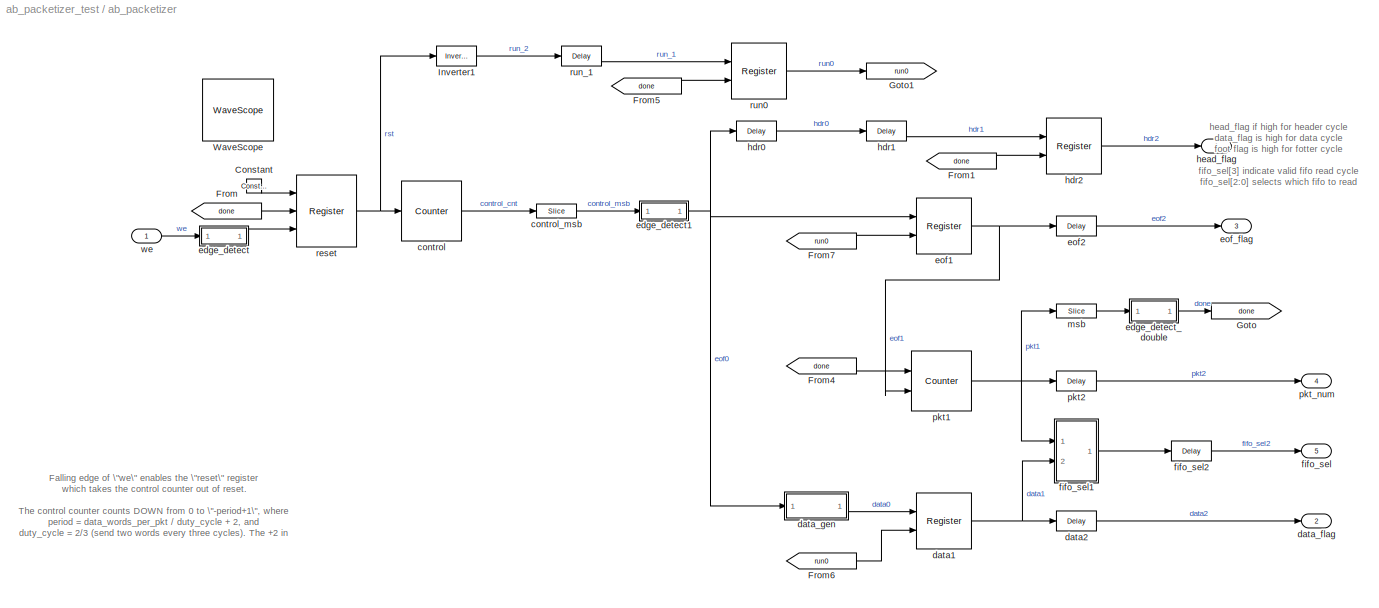
BLOCK [SubSystem] ab_packetizer
  FunctionWithSeparateData = off
  MaskHideContents = off
  MinAlgLoopOccurrences = off
  Opaque = off
  Ports = [1, 5]
  PropExecContextOutsideSubsystem = off
  RTWSystemCode = Auto
  RequestExecContextInheritance = off
  SID = 1
BLOCK [Reference] ab_packetizer/Constant  REF=xbsIndex_r4/Constant
  Ports = [0, 1]
  SID = 3
  SourceBlock = xbsIndex_r4/Constant
  SourceType = Xilinx Constant Block Block
  arith_type = Boolean
  bin_pt = 14
  block_type = constant
  carry = CIN
  const = 0
  dbl_ovrd = off
  dsp48_infoedit = The use of this block for DSP48 instructions is deprecated.  Please use the Opmode block.
  equ = P=C
  exp_width = 8
  explicit_period = on
  frac_width = 24
  gui_display_data_type = Boolean
  has_advanced_control = 0
  inp1 = P
  inp2 = PCIN>>17
  n_bits = 16
  opr = +
  opselect = C
  period = 1
  preci_type = Single
  sg_icon_stat = 15,14,0,1,white,blue,0,bf4ddd8b,right,,[ ],[ ]
  sg_mask_display = fprintf('','COMMENT: begin icon graphics');\npatch([0 15 15 0 0 ],[0 0 14 14 0 ],[0.77 0.82 0.91 ]);\nplot([0 15 15 0 0 ],[0 0 14 14 0 ]);\npatch([2.55 5.44 7.44 9.44 11.44 7.44 4.55 2.55 ],[9.22 9.22 11.22 9.22 11.22 11.22 11.22 9.22 ],[1 1 1 ]);\npatch([4.55 7.44 5.44 2.55 4.55 ],[7.22 7.22 9.22 9.22 7.22 ],[0.931 0.946 0.973 ]);\npatch([2.55 5.44 7.44 4.55 2.55 ],[5.22 5.22 7.22 7.22 5.22 ],[1 ...<+281ch>  <repeated x4 — deduplicated; at blocks: Constant, Constant1, Constant2>
  sggui_pos = 20,20,418,547
BLOCK [From] ab_packetizer/From
  GotoTag = done
  SID = 28
BLOCK [From] ab_packetizer/From1
  GotoTag = done
  SID = 29
BLOCK [From] ab_packetizer/From4
  GotoTag = done
  SID = 32
BLOCK [From] ab_packetizer/From5
  GotoTag = done
  SID = 190
BLOCK [From] ab_packetizer/From6
  GotoTag = run0
  SID = 213
BLOCK [From] ab_packetizer/From7
  GotoTag = run0
  SID = 185
BLOCK [Goto] ab_packetizer/Goto
  GotoTag = done
  SID = 27
BLOCK [Goto] ab_packetizer/Goto1
  GotoTag = run0
  SID = 45
BLOCK [Reference] ab_packetizer/Inverter1  REF=xbsIndex_r4/Inverter
  Ports = [1, 1]
  SID = 47
  SourceBlock = xbsIndex_r4/Inverter
  SourceType = Xilinx Inverter Block
  block_type = inv
  block_version = 10.1.3
  dbl_ovrd = off
  en = off
  has_advanced_control = 0
  infoedit = Bitwise logical negation (one's complement) operator.
  latency = 0
  sg_icon_stat = 40,20,1,1,white,blue,0,267846e5,right,,[ ],[ ]
  sg_mask_display = fprintf('','COMMENT: begin icon graphics');\npatch([0 40 40 0 0 ],[0 0 20 20 0 ],[0.77 0.82 0.91 ]);\nplot([0 40 40 0 0 ],[0 0 20 20 0 ]);\npatch([15.55 18.44 20.44 22.44 24.44 20.44 17.55 15.55 ],[12.22 12.22 14.22 12.22 14.22 14.22 14.22 12.22 ],[1 1 1 ]);\npatch([17.55 20.44 18.44 15.55 17.55 ],[10.22 10.22 12.22 12.22 10.22 ],[0.931 0.946 0.973 ]);\npatch([15.55 18.44 20.44 17.55 15.55 ],[8.22...<+304ch>
  sggui_pos = 20,20,559,383
  xl_area = [0, 0, 0, 0, 0, 0, 0]
  xl_use_area = off
BLOCK [Reference] ab_packetizer/WaveScope  REF=xbsIndex_r4/WaveScope
  Ports = []
  SID = 36
  SourceBlock = xbsIndex_r4/WaveScope
  SourceType = Xilinx WaveScope Block
  UserData = DataTag6
  UserDataPersistent = on
  block_type = wavescope
  has_advanced_control = 0
  infoedit = WaveScope
  sg_icon_stat = 71,62,-1,-1,blue,white,0,07734,right,,[ ],[ ]
  sggui_pos = -1,-1,-1,-1
BLOCK [Reference] ab_packetizer/control  REF=xbsIndex_r4/Counter
  Ports = [1, 1]
  SID = 6
  SourceBlock = xbsIndex_r4/Counter
  SourceType = Xilinx Counter Block
  arith_type = Unsigned
  bin_pt = 0
  block_type = counter
  cnt_by_val = 1
  cnt_to = -(1024*3/2+2)+1
  cnt_type = Count Limited
  dbl_ovrd = off
  en = off
  explicit_period = on
  has_advanced_control = 0
  implementation = DSP48
  infoedit = Hardware notes: Free running counters are the least expensive in hardware.  A count limited counter is implemented by combining a counter with a comparator.
  load_pin = off
  n_bits = nextpow2(1024*3/2 + 2)
  operation = Down
  period = 1
  rst = on
  sg_icon_stat = 60,60,1,1,white,blue,0,686b4038,right,,[ ],[ ]
  sg_mask_display = fprintf('','COMMENT: begin icon graphics');\npatch([0 60 60 0 0 ],[0 0 60 60 0 ],[0.77 0.82 0.91 ]);\nplot([0 60 60 0 0 ],[0 0 60 60 0 ]);\npatch([12.2 23.76 31.76 39.76 47.76 31.76 20.2 12.2 ],[38.88 38.88 46.88 38.88 46.88 46.88 46.88 38.88 ],[1 1 1 ]);\npatch([20.2 31.76 23.76 12.2 20.2 ],[30.88 30.88 38.88 38.88 30.88 ],[0.931 0.946 0.973 ]);\npatch([12.2 23.76 31.76 20.2 12.2 ],[22.88 22.88 3...<+395ch>
  sggui_pos = 1119,0,559,887
  start_count = 0
  use_behavioral_HDL = off
  xl_area = [0,0,0,0,0,0,0]
  xl_use_area = off
BLOCK [Reference] ab_packetizer/control_msb  REF=xbsIndex_r4/Slice
  Ports = [1, 1]
  SID = 179
  SourceBlock = xbsIndex_r4/Slice
  SourceType = Xilinx Bit Slice Extractor Block
  base0 = LSB of Input
  base1 = MSB of Input
  bit0 = 0
  bit1 = 0
  block_type = slice
  boolean_output = on
  dbl_ovrd = off
  has_advanced_control = 0
  mode = Upper Bit Location + Width
  nbits = 1
  sg_icon_stat = 40,14,1,1,white,blue,0,1fd851a7,right,,[ ],[ ]
  sg_mask_display = fprintf('','COMMENT: begin icon graphics');\npatch([0 40 40 0 0 ],[0 0 14 14 0 ],[0.77 0.82 0.91 ]);\nplot([0 40 40 0 0 ],[0 0 14 14 0 ]);\npatch([15.55 18.44 20.44 22.44 24.44 20.44 17.55 15.55 ],[9.22 9.22 11.22 9.22 11.22 11.22 11.22 9.22 ],[1 1 1 ]);\npatch([17.55 20.44 18.44 15.55 17.55 ],[7.22 7.22 9.22 9.22 7.22 ],[0.931 0.946 0.973 ]);\npatch([15.55 18.44 20.44 17.55 15.55 ],[5.22 5.22 7.2...<+310ch>  <repeated x5 — deduplicated; at blocks: control_msb, msb, b1, lsb>
  sggui_pos = 20,20,704,582
BLOCK [Reference] ab_packetizer/data1  REF=xbsIndex_r4/Register
  Ports = [2, 1]
  SID = 214
  SourceBlock = xbsIndex_r4/Register
  SourceType = Xilinx Register Block
  block_type = register
  dbl_ovrd = off
  en = on
  has_advanced_control = 0
  init = 0
  rst = off
  sg_icon_stat = 55,56,2,1,white,blue,0,6bd0930c,right,,[ ],[ ]
  sg_mask_display = fprintf('','COMMENT: begin icon graphics');\npatch([0 55 55 0 0 ],[0 0 56 56 0 ],[0.77 0.82 0.91 ]);\nplot([0 55 55 0 0 ],[0 0 56 56 0 ]);\npatch([11.425 21.54 28.54 35.54 42.54 28.54 18.425 11.425 ],[35.77 35.77 42.77 35.77 42.77 42.77 42.77 35.77 ],[1 1 1 ]);\npatch([18.425 28.54 21.54 11.425 18.425 ],[28.77 28.77 35.77 35.77 28.77 ],[0.931 0.946 0.973 ]);\npatch([11.425 21.54 28.54 18.425 11.42...<+471ch>
  sggui_pos = 20,20,559,239
  xl_area = [0,0,0,0,0,0,0]
  xl_use_area = off
BLOCK [Reference] ab_packetizer/data2  REF=xbsIndex_r4/Delay
  Ports = [1, 1]
  SID = 216
  SourceBlock = xbsIndex_r4/Delay
  SourceType = Xilinx Delay Block
  block_type = delay
  dbl_ovrd = off
  en = off
  has_advanced_control = 0
  infoedit = Hardware notes: A delay line is a chain, each link of which is an SRL16 followed by a flip-flop.
  infoeditControl = Selection of Reset will increase slice count due to use of real FFs and instead of SRLs
  latency = 1
  reg_retiming = off
  rst = off
  sg_icon_stat = 40,20,1,1,white,blue,0,07b98262,right,,[ ],[ ]
  sg_mask_display = fprintf('','COMMENT: begin icon graphics');\npatch([0 40 40 0 0 ],[0 0 20 20 0 ],[0.77 0.82 0.91 ]);\nplot([0 40 40 0 0 ],[0 0 20 20 0 ]);\npatch([15.55 18.44 20.44 22.44 24.44 20.44 17.55 15.55 ],[12.22 12.22 14.22 12.22 14.22 14.22 14.22 12.22 ],[1 1 1 ]);\npatch([17.55 20.44 18.44 15.55 17.55 ],[10.22 10.22 12.22 12.22 10.22 ],[0.931 0.946 0.973 ]);\npatch([15.55 18.44 20.44 17.55 15.55 ],[8.22...<+322ch>  <repeated x7 — deduplicated; at blocks: data2, eof2, fifo_sel2, hdr0, hdr1, pkt2, run_1>
  sggui_pos = -1,-1,-1,-1
  xl_area = [0,0,0,0,0,0,0]
  xl_use_area = off
BLOCK [Outport] ab_packetizer/data_flag
  IconDisplay = Port number
  Port = 2
  SID = 59
BLOCK [SubSystem] ab_packetizer/data_gen
  FunctionWithSeparateData = off
  MaskHideContents = off
  MinAlgLoopOccurrences = off
  Opaque = off
  Ports = [1, 1]
  PropExecContextOutsideSubsystem = off
  RTWSystemCode = Auto
  RequestExecContextInheritance = off
  SID = 192
BLOCK [Reference] ab_packetizer/data_gen/Delay  REF=xbsIndex_r4/Delay
  Ports = [1, 1]
  SID = 202
  SourceBlock = xbsIndex_r4/Delay
  SourceType = Xilinx Delay Block
  block_type = delay
  dbl_ovrd = off
  en = off
  has_advanced_control = 0
  infoedit = Hardware notes: A delay line is a chain, each link of which is an SRL16 followed by a flip-flop.
  infoeditControl = Selection of Reset will increase slice count due to use of real FFs and instead of SRLs
  latency = 1
  reg_retiming = off
  rst = off
  sg_icon_stat = 60,30,1,1,white,blue,0,07b98262,right,,[ ],[ ]
  sg_mask_display = fprintf('','COMMENT: begin icon graphics');\npatch([0 60 60 0 0 ],[0 0 30 30 0 ],[0.77 0.82 0.91 ]);\nplot([0 60 60 0 0 ],[0 0 30 30 0 ]);\npatch([21.1 26.88 30.88 34.88 38.88 30.88 25.1 21.1 ],[19.44 19.44 23.44 19.44 23.44 23.44 23.44 19.44 ],[1 1 1 ]);\npatch([25.1 30.88 26.88 21.1 25.1 ],[15.44 15.44 19.44 19.44 15.44 ],[0.931 0.946 0.973 ]);\npatch([21.1 26.88 30.88 25.1 21.1 ],[11.44 11.44 1...<+316ch>  <repeated x4 — deduplicated; at blocks: Delay, chsel, data, data2>
  sggui_pos = -1,-1,-1,-1
  xl_area = [0,0,0,0,0,0,0]
  xl_use_area = off
BLOCK [Reference] ab_packetizer/data_gen/Logical  REF=xbsIndex_r4/Logical
  Ports = [2, 1]
  SID = 201
  SourceBlock = xbsIndex_r4/Logical
  SourceType = Xilinx Logical Block Block
  align_bp = on
  arith_type = Unsigned
  bin_pt = 0
  block_type = logical
  dbl_ovrd = off
  en = off
  has_advanced_control = 0
  inputs = 2
  latency = 0
  logical_function = OR
  n_bits = 16
  precision = Full
  sg_icon_stat = 55,60,2,1,white,blue,0,7ede7d88,right,,[ ],[ ]
  sg_mask_display = fprintf('','COMMENT: begin icon graphics');\npatch([0 55 55 0 0 ],[0 0 60 60 0 ],[0.77 0.82 0.91 ]);\nplot([0 55 55 0 0 ],[0 0 60 60 0 ]);\npatch([11.425 21.54 28.54 35.54 42.54 28.54 18.425 11.425 ],[37.77 37.77 44.77 37.77 44.77 44.77 44.77 37.77 ],[1 1 1 ]);\npatch([18.425 28.54 21.54 11.425 18.425 ],[30.77 30.77 37.77 37.77 30.77 ],[0.931 0.946 0.973 ]);\npatch([11.425 21.54 28.54 18.425 11.42...<+327ch>
  sggui_pos = 20,20,559,339
  xl_area = [0,0,0,0,0,0,0]
  xl_use_area = off
BLOCK [Reference] ab_packetizer/data_gen/Register  REF=xbsIndex_r4/Register
  Ports = [2, 1]
  SID = 196
  SourceBlock = xbsIndex_r4/Register
  SourceType = Xilinx Register Block
  block_type = register
  dbl_ovrd = off
  en = off
  has_advanced_control = 0
  init = 6
  rst = on
  sg_icon_stat = 60,87,2,1,white,blue,0,140cc11c,right,,[ ],[ ]
  sg_mask_display = fprintf('','COMMENT: begin icon graphics');\npatch([0 60 60 0 0 ],[0 0 87 87 0 ],[0.77 0.82 0.91 ]);\nplot([0 60 60 0 0 ],[0 0 87 87 0 ]);\npatch([12.2 23.76 31.76 39.76 47.76 31.76 20.2 12.2 ],[51.88 51.88 59.88 51.88 59.88 59.88 59.88 51.88 ],[1 1 1 ]);\npatch([20.2 31.76 23.76 12.2 20.2 ],[43.88 43.88 51.88 51.88 43.88 ],[0.931 0.946 0.973 ]);\npatch([12.2 23.76 31.76 20.2 12.2 ],[35.88 35.88 4...<+448ch>
  sggui_pos = 20,20,559,239
  xl_area = [0,0,0,0,0,0,0]
  xl_use_area = off
BLOCK [Outport] ab_packetizer/data_gen/data1
  IconDisplay = Port number
  SID = 200
BLOCK [Inport] ab_packetizer/data_gen/eof0
  IconDisplay = Port number
  SID = 193
BLOCK [Reference] ab_packetizer/data_gen/lsb  REF=xbsIndex_r4/Slice
  Ports = [1, 1]
  SID = 198
  SourceBlock = xbsIndex_r4/Slice
  SourceType = Xilinx Bit Slice Extractor Block
  base0 = LSB of Input
  base1 = MSB of Input
  bit0 = 0
  bit1 = 0
  block_type = slice
  boolean_output = on
  dbl_ovrd = off
  has_advanced_control = 0
  mode = Lower Bit Location + Width
  nbits = 1
  sg_icon_stat = 60,30,1,1,white,blue,0,1fd851a7,right,,[ ],[ ]
  sg_mask_display = fprintf('','COMMENT: begin icon graphics');\npatch([0 60 60 0 0 ],[0 0 30 30 0 ],[0.77 0.82 0.91 ]);\nplot([0 60 60 0 0 ],[0 0 30 30 0 ]);\npatch([21.1 26.88 30.88 34.88 38.88 30.88 25.1 21.1 ],[19.44 19.44 23.44 19.44 23.44 23.44 23.44 19.44 ],[1 1 1 ]);\npatch([25.1 30.88 26.88 21.1 25.1 ],[15.44 15.44 19.44 19.44 15.44 ],[0.931 0.946 0.973 ]);\npatch([21.1 26.88 30.88 25.1 21.1 ],[11.44 11.44 1...<+315ch>
  sggui_pos = 20,20,704,582
BLOCK [Reference] ab_packetizer/data_gen/rotate_right  REF=xbsIndex_r4/BitBasher
  Ports = [1, 1]
  SID = 199
  SourceBlock = xbsIndex_r4/BitBasher
  SourceType = Xilinx BitBasher Block
  arith_type1 = Unsigned
  arith_type2 = Unsigned
  arith_type3 = Unsigned
  arith_type4 = Unsigned
  bin_pt1 = 0
  bin_pt2 = 0
  bin_pt3 = 0
  bin_pt4 = 0
  bitexpr = <!DOCTYPE HTML PUBLIC \"-//W3C//DTD HTML 4.0//EN\" \"http://www.w3.org/TR/REC-html40/strict.dtd\">\n<html><head><meta name=\"qrichtext\" content=\"1\" /><style type=\"text/css\">\np, li { white-space: pre-wrap; }\n</style></head><body style=\" font-family:'Sans Serif'; font-size:12pt; font-weight:400; font-style:normal;\">\n<p style=\" margin-top:12px; margin-bottom:12px; margin-left:0px; margin-r...<+150ch>
  block_type = bitbasher
  dbl_ovrd = off
  display_expr = off
  has_advanced_control = 0
  infoedit = Allows extraction, concatenation and augmentation of bits
  sg_icon_stat = 55,20,1,1,white,blue,0,e24f85ac,right,,[ ],[ ]
  sg_mask_display = fprintf('','COMMENT: begin icon graphics');\npatch([0 55 55 0 0 ],[0 0 20 20 0 ],[0.77 0.82 0.91 ]);\nplot([0 55 55 0 0 ],[0 0 20 20 0 ]);\npatch([22.55 25.44 27.44 29.44 31.44 27.44 24.55 22.55 ],[12.22 12.22 14.22 12.22 14.22 14.22 14.22 12.22 ],[1 1 1 ]);\npatch([24.55 27.44 25.44 22.55 24.55 ],[10.22 10.22 12.22 12.22 10.22 ],[0.931 0.946 0.973 ]);\npatch([22.55 25.44 27.44 24.55 22.55 ],[8.22...<+358ch>
  sggui_pos = 20,20,400,393
  sr_1 = 1
  sr_2 = 2
  sr_3 = 3
  sr_4 = 4
BLOCK [SubSystem] ab_packetizer/edge_detect
  AncestorBlock = casper_library_misc/edge_detect
  AttributesFormatString = falling edges\nactive high
  FunctionWithSeparateData = off
  MaskHideContents = off
  MinAlgLoopOccurrences = off
  Opaque = off
  Ports = [1, 1]
  PropExecContextOutsideSubsystem = off
  RTWSystemCode = Auto
  RequestExecContextInheritance = off
  SID = 9
  UserData = DataTag7
  UserDataPersistent = on
BLOCK [Reference] ab_packetizer/edge_detect/Delay  REF=xbsIndex_r4/Delay
  Ports = [1, 1]
  SID = 9:2
  SourceBlock = xbsIndex_r4/Delay
  SourceType = Xilinx Delay Block
  block_type = delay
  block_version = 10.1.3
  dbl_ovrd = off
  en = off
  has_advanced_control = 0
  infoedit = Hardware notes: A delay line is a chain, each link of which is an SRL16 followed by a flip-flop.
  infoeditControl = Selection of Reset will increase slice count due to use of real FFs and instead of SRLs
  latency = 1
  reg_retiming = off
  rst = off
  sg_icon_stat = 45,16,1,1,white,blue,0,07b98262,right,,[ ],[ ]
  sggui_pos = -1,-1,-1,-1
  xl_area = [0, 0, 0, 0, 0, 0, 0]
  xl_use_area = off
BLOCK [Reference] ab_packetizer/edge_detect/Inverter  REF=xbsIndex_r4/Inverter
  Ports = [1, 1]
  SID = 9:3
  SourceBlock = xbsIndex_r4/Inverter
  SourceType = Xilinx Inverter Block
  block_type = inv
  block_version = 10.1.3
  dbl_ovrd = off
  en = off
  has_advanced_control = 0
  infoedit = Bitwise logical negation (one's complement) operator.
  latency = 0
  sg_icon_stat = 45,16,1,1,white,blue,0,267846e5,right,,[ ],[ ]
  sggui_pos = -1,-1,-1,-1
  xl_area = [0, 0, 0, 0, 0, 0, 0]
  xl_use_area = off
BLOCK [Reference] ab_packetizer/edge_detect/edge_op  REF=xbsIndex_r4/Logical
  Ports = [2, 1]
  SID = 9:4
  SourceBlock = xbsIndex_r4/Logical
  SourceType = Xilinx Logical Block Block
  align_bp = on
  arith_type = Unsigned
  bin_pt = 2
  block_type = logical
  block_version = 10.1.3
  dbl_ovrd = off
  en = off
  has_advanced_control = 0
  inputs = 2
  latency = 0
  logical_function = AND
  n_bits = 8
  precision = Full
  sg_icon_stat = 45,44,2,1,white,blue,0,83a4b621,right,,[ ],[ ]
  sggui_pos = -1,-1,-1,-1
  xl_area = [0, 0, 0, 0, 0, 0, 0]
  xl_use_area = off
BLOCK [Inport] ab_packetizer/edge_detect/in
  IconDisplay = Port number
  SID = 9:1
BLOCK [Outport] ab_packetizer/edge_detect/out
  IconDisplay = Port number
  SID = 9:5
BLOCK [SubSystem] ab_packetizer/edge_detect1
  AncestorBlock = casper_library_misc/edge_detect
  AttributesFormatString = rising edges\nactive high
  FunctionWithSeparateData = off
  MaskHideContents = off
  MinAlgLoopOccurrences = off
  Opaque = off
  Ports = [1, 1]
  PropExecContextOutsideSubsystem = off
  RTWSystemCode = Auto
  RequestExecContextInheritance = off
  SID = 181
  UserData = DataTag8
  UserDataPersistent = on
BLOCK [Reference] ab_packetizer/edge_detect1/Delay  REF=xbsIndex_r4/Delay
  Ports = [1, 1]
  SID = 181:2
  SourceBlock = xbsIndex_r4/Delay
  SourceType = Xilinx Delay Block
  block_type = delay
  block_version = 10.1.3
  dbl_ovrd = off
  en = off
  has_advanced_control = 0
  infoedit = Hardware notes: A delay line is a chain, each link of which is an SRL16 followed by a flip-flop.
  infoeditControl = Selection of Reset will increase slice count due to use of real FFs and instead of SRLs
  latency = 1
  reg_retiming = off
  rst = off
  sg_icon_stat = 45,16,1,1,white,blue,0,07b98262,right,,[ ],[ ]
  sggui_pos = -1,-1,-1,-1
  xl_area = [0, 0, 0, 0, 0, 0, 0]
  xl_use_area = off
BLOCK [Reference] ab_packetizer/edge_detect1/Inverter  REF=xbsIndex_r4/Inverter
  Ports = [1, 1]
  SID = 181:3
  SourceBlock = xbsIndex_r4/Inverter
  SourceType = Xilinx Inverter Block
  block_type = inv
  block_version = 10.1.3
  dbl_ovrd = off
  en = off
  has_advanced_control = 0
  infoedit = Bitwise logical negation (one's complement) operator.
  latency = 0
  sg_icon_stat = 45,16,1,1,white,blue,0,267846e5,right,,[ ],[ ]
  sggui_pos = -1,-1,-1,-1
  xl_area = [0, 0, 0, 0, 0, 0, 0]
  xl_use_area = off
BLOCK [Reference] ab_packetizer/edge_detect1/edge_op  REF=xbsIndex_r4/Logical
  Ports = [2, 1]
  SID = 181:4
  SourceBlock = xbsIndex_r4/Logical
  SourceType = Xilinx Logical Block Block
  align_bp = on
  arith_type = Unsigned
  bin_pt = 2
  block_type = logical
  block_version = 10.1.3
  dbl_ovrd = off
  en = off
  has_advanced_control = 0
  inputs = 2
  latency = 0
  logical_function = NOR
  n_bits = 8
  precision = Full
  sg_icon_stat = 45,44,2,1,white,blue,0,affe8783,right,,[ ],[ ]
  sggui_pos = -1,-1,-1,-1
  xl_area = [0, 0, 0, 0, 0, 0, 0]
  xl_use_area = off
BLOCK [Inport] ab_packetizer/edge_detect1/in
  IconDisplay = Port number
  SID = 181:1
BLOCK [Outport] ab_packetizer/edge_detect1/out
  IconDisplay = Port number
  SID = 181:5
BLOCK [SubSystem] ab_packetizer/edge_detect_double
  AttributesFormatString = falling edge\\nactive high 2 cycles
  FunctionWithSeparateData = off
  MaskHideContents = off
  MinAlgLoopOccurrences = off
  Opaque = off
  Ports = [1, 1]
  PropExecContextOutsideSubsystem = off
  RTWSystemCode = Auto
  RequestExecContextInheritance = off
  SID = 10
  UserData = DataTag9
  UserDataPersistent = on
BLOCK [Reference] ab_packetizer/edge_detect_double/Delay  REF=xbsIndex_r4/Delay
  Ports = [1, 1]
  SID = 23
  SourceBlock = xbsIndex_r4/Delay
  SourceType = Xilinx Delay Block
  block_type = delay
  block_version = 10.1.3
  dbl_ovrd = off
  en = off
  has_advanced_control = 0
  infoedit = Hardware notes: A delay line is a chain, each link of which is an SRL16 followed by a flip-flop.
  infoeditControl = Selection of Reset will increase slice count due to use of real FFs and instead of SRLs
  latency = 2
  reg_retiming = off
  rst = off
  sg_icon_stat = 45,16,1,1,white,blue,0,85ce9542,right,,[ ],[ ]
  sggui_pos = 20,20,559,473
  xl_area = [0, 0, 0, 0, 0, 0, 0]
  xl_use_area = off
BLOCK [Reference] ab_packetizer/edge_detect_double/Inverter  REF=xbsIndex_r4/Inverter
  Ports = [1, 1]
  SID = 24
  SourceBlock = xbsIndex_r4/Inverter
  SourceType = Xilinx Inverter Block
  block_type = inv
  block_version = 10.1.3
  dbl_ovrd = off
  en = off
  has_advanced_control = 0
  infoedit = Bitwise logical negation (one's complement) operator.
  latency = 0
  sg_icon_stat = 45,16,1,1,white,blue,0,267846e5,right,,[ ],[ ]
  sggui_pos = -1,-1,-1,-1
  xl_area = [0, 0, 0, 0, 0, 0, 0]
  xl_use_area = off
BLOCK [Reference] ab_packetizer/edge_detect_double/edge_op  REF=xbsIndex_r4/Logical
  Ports = [2, 1]
  SID = 25
  SourceBlock = xbsIndex_r4/Logical
  SourceType = Xilinx Logical Block Block
  align_bp = on
  arith_type = Unsigned
  bin_pt = 2
  block_type = logical
  block_version = 10.1.3
  dbl_ovrd = off
  en = off
  has_advanced_control = 0
  inputs = 2
  latency = 0
  logical_function = AND
  n_bits = 8
  precision = Full
  sg_icon_stat = 45,44,2,1,white,blue,0,83a4b621,right,,[ ],[ ]
  sggui_pos = 20,20,559,339
  xl_area = [0, 0, 0, 0, 0, 0, 0]
  xl_use_area = off
BLOCK [Inport] ab_packetizer/edge_detect_double/in
  IconDisplay = Port number
  SID = 22
BLOCK [Outport] ab_packetizer/edge_detect_double/out
  IconDisplay = Port number
  SID = 26
BLOCK [Reference] ab_packetizer/eof1  REF=xbsIndex_r4/Register
  Ports = [2, 1]
  SID = 183
  SourceBlock = xbsIndex_r4/Register
  SourceType = Xilinx Register Block
  block_type = register
  dbl_ovrd = off
  en = on
  has_advanced_control = 0
  init = 0
  rst = off
  sg_icon_stat = 55,56,2,1,white,blue,0,6bd0930c,right,,[ ],[ ]
  sg_mask_display = fprintf('','COMMENT: begin icon graphics');\npatch([0 55 55 0 0 ],[0 0 56 56 0 ],[0.77 0.82 0.91 ]);\nplot([0 55 55 0 0 ],[0 0 56 56 0 ]);\npatch([11.425 21.54 28.54 35.54 42.54 28.54 18.425 11.425 ],[35.77 35.77 42.77 35.77 42.77 42.77 42.77 35.77 ],[1 1 1 ]);\npatch([18.425 28.54 21.54 11.425 18.425 ],[28.77 28.77 35.77 35.77 28.77 ],[0.931 0.946 0.973 ]);\npatch([11.425 21.54 28.54 18.425 11.42...<+471ch>
  sggui_pos = 20,20,559,239
  xl_area = [0,0,0,0,0,0,0]
  xl_use_area = off
BLOCK [Reference] ab_packetizer/eof2  REF=xbsIndex_r4/Delay
  Ports = [1, 1]
  SID = 188
  SourceBlock = xbsIndex_r4/Delay
  SourceType = Xilinx Delay Block
  block_type = delay
  dbl_ovrd = off
  en = off
  has_advanced_control = 0
  infoedit = Hardware notes: A delay line is a chain, each link of which is an SRL16 followed by a flip-flop.
  infoeditControl = Selection of Reset will increase slice count due to use of real FFs and instead of SRLs
  latency = 1
  reg_retiming = off
  rst = off
  sg_icon_stat = 40,20,1,1,white,blue,0,07b98262,right,,[ ],[ ]
  sggui_pos = 20,20,559,473
  xl_area = [0,0,0,0,0,0,0]
  xl_use_area = off
BLOCK [Outport] ab_packetizer/eof_flag
  IconDisplay = Port number
  Port = 3
  SID = 60
BLOCK [Outport] ab_packetizer/fifo_sel
  IconDisplay = Port number
  Port = 5
  SID = 57
BLOCK [SubSystem] ab_packetizer/fifo_sel1
  FunctionWithSeparateData = off
  MaskHideContents = off
  MinAlgLoopOccurrences = off
  Opaque = off
  Ports = [2, 1]
  PropExecContextOutsideSubsystem = off
  RTWSystemCode = Auto
  RequestExecContextInheritance = off
  SID = 218
BLOCK [Reference] ab_packetizer/fifo_sel1/BitBasher  REF=xbsIndex_r4/BitBasher
  Ports = [3, 1]
  SID = 53
  SourceBlock = xbsIndex_r4/BitBasher
  SourceType = Xilinx BitBasher Block
  arith_type1 = Unsigned
  arith_type2 = Unsigned
  arith_type3 = Unsigned
  arith_type4 = Unsigned
  bin_pt1 = 0
  bin_pt2 = 0
  bin_pt3 = 0
  bin_pt4 = 0
  bitexpr = <!DOCTYPE HTML PUBLIC \"-//W3C//DTD HTML 4.0//EN\" \"http://www.w3.org/TR/REC-html40/strict.dtd\">\n<html><head><meta name=\"qrichtext\" content=\"1\" /><style type=\"text/css\">\np, li { white-space: pre-wrap; }\n</style></head><body style=\" font-family:'Sans Serif'; font-size:12pt; font-weight:400; font-style:normal;\">\n<p style=\" margin-top:12px; margin-bottom:12px; margin-left:0px; margin-r...<+166ch>
  block_type = bitbasher
  dbl_ovrd = off
  display_expr = off
  has_advanced_control = 0
  infoedit = Allows extraction, concatenation and augmentation of bits
  sg_icon_stat = 75,136,3,1,white,blue,0,1ac76f6a,right,,[ ],[ ]
  sg_mask_display = fprintf('','COMMENT: begin icon graphics');\npatch([0 75 75 0 0 ],[0 0 136 136 0 ],[0.77 0.82 0.91 ]);\nplot([0 75 75 0 0 ],[0 0 136 136 0 ]);\npatch([14.75 29.2 39.2 49.2 59.2 39.2 24.75 14.75 ],[79.1 79.1 89.1 79.1 89.1 89.1 89.1 79.1 ],[1 1 1 ]);\npatch([24.75 39.2 29.2 14.75 24.75 ],[69.1 69.1 79.1 79.1 69.1 ],[0.931 0.946 0.973 ]);\npatch([14.75 29.2 39.2 24.75 14.75 ],[59.1 59.1 69.1 69.1 59...<+436ch>
  sggui_pos = 20,20,400,393
  sr_1 = 1
  sr_2 = 2
  sr_3 = 3
  sr_4 = 4
BLOCK [Outport] ab_packetizer/fifo_sel1/Out1
  IconDisplay = Port number
  SID = 221
BLOCK [Inport] ab_packetizer/fifo_sel1/data
  IconDisplay = Port number
  Port = 2
  SID = 220
BLOCK [SubSystem] ab_packetizer/fifo_sel1/edge_detect2
  AncestorBlock = casper_library_misc/edge_detect
  AttributesFormatString = rising edges\nactive low
  FunctionWithSeparateData = off
  MaskHideContents = off
  MinAlgLoopOccurrences = off
  Opaque = off
  Ports = [1, 1]
  PropExecContextOutsideSubsystem = off
  RTWSystemCode = Auto
  RequestExecContextInheritance = off
  SID = 217
  UserData = DataTag10
  UserDataPersistent = on
BLOCK [Reference] ab_packetizer/fifo_sel1/edge_detect2/Delay  REF=xbsIndex_r4/Delay
  Ports = [1, 1]
  SID = 217:2
  SourceBlock = xbsIndex_r4/Delay
  SourceType = Xilinx Delay Block
  block_type = delay
  block_version = 10.1.3
  dbl_ovrd = off
  en = off
  has_advanced_control = 0
  infoedit = Hardware notes: A delay line is a chain, each link of which is an SRL16 followed by a flip-flop.
  infoeditControl = Selection of Reset will increase slice count due to use of real FFs and instead of SRLs
  latency = 1
  reg_retiming = off
  rst = off
  sg_icon_stat = 45,16,1,1,white,blue,0,07b98262,right,,[ ],[ ]
  sggui_pos = -1,-1,-1,-1
  xl_area = [0, 0, 0, 0, 0, 0, 0]
  xl_use_area = off
BLOCK [Reference] ab_packetizer/fifo_sel1/edge_detect2/Inverter  REF=xbsIndex_r4/Inverter
  Ports = [1, 1]
  SID = 217:3
  SourceBlock = xbsIndex_r4/Inverter
  SourceType = Xilinx Inverter Block
  block_type = inv
  block_version = 10.1.3
  dbl_ovrd = off
  en = off
  has_advanced_control = 0
  infoedit = Bitwise logical negation (one's complement) operator.
  latency = 0
  sg_icon_stat = 45,16,1,1,white,blue,0,267846e5,right,,[ ],[ ]
  sggui_pos = -1,-1,-1,-1
  xl_area = [0, 0, 0, 0, 0, 0, 0]
  xl_use_area = off
BLOCK [Reference] ab_packetizer/fifo_sel1/edge_detect2/edge_op  REF=xbsIndex_r4/Logical
  Ports = [2, 1]
  SID = 217:4
  SourceBlock = xbsIndex_r4/Logical
  SourceType = Xilinx Logical Block Block
  align_bp = on
  arith_type = Unsigned
  bin_pt = 2
  block_type = logical
  block_version = 10.1.3
  dbl_ovrd = off
  en = off
  has_advanced_control = 0
  inputs = 2
  latency = 0
  logical_function = OR
  n_bits = 8
  precision = Full
  sg_icon_stat = 45,44,2,1,white,blue,0,7ede7d88,right,,[ ],[ ]
  sg_mask_display = fprintf('','COMMENT: begin icon graphics');\npatch([0 45 45 0 0 ],[0 0 44 44 0 ],[0.77 0.82 0.91 ]);\nplot([0 45 45 0 0 ],[0 0 44 44 0 ]);\npatch([8.65 17.32 23.32 29.32 35.32 23.32 14.65 8.65 ],[28.66 28.66 34.66 28.66 34.66 34.66 34.66 28.66 ],[1 1 1 ]);\npatch([14.65 23.32 17.32 8.65 14.65 ],[22.66 22.66 28.66 28.66 22.66 ],[0.931 0.946 0.973 ]);\npatch([8.65 17.32 23.32 14.65 8.65 ],[16.66 16....<+309ch>
  sggui_pos = -1,-1,-1,-1
  xl_area = [0, 0, 0, 0, 0, 0, 0]
  xl_use_area = off
BLOCK [Inport] ab_packetizer/fifo_sel1/edge_detect2/in
  IconDisplay = Port number
  SID = 217:1
BLOCK [Outport] ab_packetizer/fifo_sel1/edge_detect2/out
  IconDisplay = Port number
  SID = 217:5
BLOCK [Inport] ab_packetizer/fifo_sel1/pkt
  IconDisplay = Port number
  SID = 219
BLOCK [Reference] ab_packetizer/fifo_sel2  REF=xbsIndex_r4/Delay
  Ports = [1, 1]
  SID = 224
  SourceBlock = xbsIndex_r4/Delay
  SourceType = Xilinx Delay Block
  block_type = delay
  dbl_ovrd = off
  en = off
  has_advanced_control = 0
  infoedit = Hardware notes: A delay line is a chain, each link of which is an SRL16 followed by a flip-flop.
  infoeditControl = Selection of Reset will increase slice count due to use of real FFs and instead of SRLs
  latency = 1
  reg_retiming = off
  rst = off
  sg_icon_stat = 40,20,1,1,white,blue,0,07b98262,right,,[ ],[ ]
  sggui_pos = -1,-1,-1,-1
  xl_area = [0,0,0,0,0,0,0]
  xl_use_area = off
BLOCK [Reference] ab_packetizer/hdr0  REF=xbsIndex_r4/Delay
  Ports = [1, 1]
  SID = 182
  SourceBlock = xbsIndex_r4/Delay
  SourceType = Xilinx Delay Block
  block_type = delay
  dbl_ovrd = off
  en = off
  has_advanced_control = 0
  infoedit = Hardware notes: A delay line is a chain, each link of which is an SRL16 followed by a flip-flop.
  infoeditControl = Selection of Reset will increase slice count due to use of real FFs and instead of SRLs
  latency = 1
  reg_retiming = off
  rst = off
  sg_icon_stat = 40,20,1,1,white,blue,0,07b98262,right,,[ ],[ ]
  sggui_pos = -1,-1,-1,-1
  xl_area = [0,0,0,0,0,0,0]
  xl_use_area = off
BLOCK [Reference] ab_packetizer/hdr1  REF=xbsIndex_r4/Delay
  Ports = [1, 1]
  SID = 189
  SourceBlock = xbsIndex_r4/Delay
  SourceType = Xilinx Delay Block
  block_type = delay
  dbl_ovrd = off
  en = off
  has_advanced_control = 0
  infoedit = Hardware notes: A delay line is a chain, each link of which is an SRL16 followed by a flip-flop.
  infoeditControl = Selection of Reset will increase slice count due to use of real FFs and instead of SRLs
  latency = 1
  reg_retiming = off
  rst = off
  sg_icon_stat = 40,20,1,1,white,blue,0,07b98262,right,,[ ],[ ]
  sggui_pos = -1,-1,-1,-1
  xl_area = [0,0,0,0,0,0,0]
  xl_use_area = off
BLOCK [Reference] ab_packetizer/hdr2  REF=xbsIndex_r4/Register
  Ports = [2, 1]
  SID = 13
  SourceBlock = xbsIndex_r4/Register
  SourceType = Xilinx Register Block
  block_type = register
  dbl_ovrd = off
  en = off
  has_advanced_control = 0
  init = 0
  rst = on
  sg_icon_stat = 55,56,2,1,white,blue,0,140cc11c,right,,[ ],[ ]
  sg_mask_display = fprintf('','COMMENT: begin icon graphics');\npatch([0 55 55 0 0 ],[0 0 56 56 0 ],[0.77 0.82 0.91 ]);\nplot([0 55 55 0 0 ],[0 0 56 56 0 ]);\npatch([11.425 21.54 28.54 35.54 42.54 28.54 18.425 11.425 ],[35.77 35.77 42.77 35.77 42.77 42.77 42.77 35.77 ],[1 1 1 ]);\npatch([18.425 28.54 21.54 11.425 18.425 ],[28.77 28.77 35.77 35.77 28.77 ],[0.931 0.946 0.973 ]);\npatch([11.425 21.54 28.54 18.425 11.42...<+472ch>  <repeated x4 — deduplicated; at blocks: hdr2, run0, data_reg, foot_reg>
  sggui_pos = 20,20,559,239
  xl_area = [0,0,0,0,0,0,0]
  xl_use_area = off
BLOCK [Outport] ab_packetizer/head_flag
  IconDisplay = Port number
  SID = 56
BLOCK [Reference] ab_packetizer/msb  REF=xbsIndex_r4/Slice
  Ports = [1, 1]
  SID = 16
  SourceBlock = xbsIndex_r4/Slice
  SourceType = Xilinx Bit Slice Extractor Block
  base0 = LSB of Input
  base1 = MSB of Input
  bit0 = 0
  bit1 = 0
  block_type = slice
  boolean_output = on
  dbl_ovrd = off
  has_advanced_control = 0
  mode = Upper Bit Location + Width
  nbits = 1
  sg_icon_stat = 40,14,1,1,white,blue,0,1fd851a7,right,,[ ],[ ]
  sggui_pos = 20,20,704,582
BLOCK [Reference] ab_packetizer/pkt1  REF=xbsIndex_r4/Counter
  Ports = [2, 1]
  SID = 17
  SourceBlock = xbsIndex_r4/Counter
  SourceType = Xilinx Counter Block
  arith_type = Unsigned
  bin_pt = 0
  block_type = counter
  cnt_by_val = 1
  cnt_to = 2048
  cnt_type = Free Running
  dbl_ovrd = off
  en = on
  explicit_period = on
  has_advanced_control = 0
  implementation = Fabric
  infoedit = Hardware notes: Free running counters are the least expensive in hardware.  A count limited counter is implemented by combining a counter with a comparator.
  load_pin = off
  n_bits = 4
  operation = Up
  period = 1
  rst = on
  sg_icon_stat = 60,60,2,1,white,blue,0,ae3608d6,right,,[ ],[ ]
  sg_mask_display = fprintf('','COMMENT: begin icon graphics');\npatch([0 60 60 0 0 ],[0 0 60 60 0 ],[0.77 0.82 0.91 ]);\nplot([0 60 60 0 0 ],[0 0 60 60 0 ]);\npatch([12.2 23.76 31.76 39.76 47.76 31.76 20.2 12.2 ],[38.88 38.88 46.88 38.88 46.88 46.88 46.88 38.88 ],[1 1 1 ]);\npatch([20.2 31.76 23.76 12.2 20.2 ],[30.88 30.88 38.88 38.88 30.88 ],[0.931 0.946 0.973 ]);\npatch([12.2 23.76 31.76 20.2 12.2 ],[22.88 22.88 3...<+423ch>
  sggui_pos = 1119,31,559,887
  start_count = 0
  use_behavioral_HDL = off
  xl_area = [0,0,0,0,0,0,0]
  xl_use_area = off
BLOCK [Reference] ab_packetizer/pkt2  REF=xbsIndex_r4/Delay
  Ports = [1, 1]
  SID = 187
  SourceBlock = xbsIndex_r4/Delay
  SourceType = Xilinx Delay Block
  block_type = delay
  dbl_ovrd = off
  en = off
  has_advanced_control = 0
  infoedit = Hardware notes: A delay line is a chain, each link of which is an SRL16 followed by a flip-flop.
  infoeditControl = Selection of Reset will increase slice count due to use of real FFs and instead of SRLs
  latency = 1
  reg_retiming = off
  rst = off
  sg_icon_stat = 40,20,1,1,white,blue,0,07b98262,right,,[ ],[ ]
  sggui_pos = -1,-1,-1,-1
  xl_area = [0,0,0,0,0,0,0]
  xl_use_area = off
BLOCK [Outport] ab_packetizer/pkt_num
  IconDisplay = Port number
  Port = 4
  SID = 62
BLOCK [Reference] ab_packetizer/reset  REF=xbsIndex_r4/Register
  AttributesFormatString = init=%<init>
  Ports = [3, 1]
  SID = 18
  SourceBlock = xbsIndex_r4/Register
  SourceType = Xilinx Register Block
  block_type = register
  dbl_ovrd = off
  en = on
  has_advanced_control = 0
  init = 1
  rst = on
  sg_icon_stat = 60,72,3,1,white,blue,0,30546de1,right,,[ ],[ ]
  sg_mask_display = fprintf('','COMMENT: begin icon graphics');\npatch([0 60 60 0 0 ],[0 0 72 72 0 ],[0.77 0.82 0.91 ]);\nplot([0 60 60 0 0 ],[0 0 72 72 0 ]);\npatch([12.2 23.76 31.76 39.76 47.76 31.76 20.2 12.2 ],[44.88 44.88 52.88 44.88 52.88 52.88 52.88 44.88 ],[1 1 1 ]);\npatch([20.2 31.76 23.76 12.2 20.2 ],[36.88 36.88 44.88 44.88 36.88 ],[0.931 0.946 0.973 ]);\npatch([12.2 23.76 31.76 20.2 12.2 ],[28.88 28.88 3...<+492ch>
  sggui_pos = 20,20,559,239
  xl_area = [0,0,0,0,0,0,0]
  xl_use_area = off
BLOCK [Reference] ab_packetizer/run0  REF=xbsIndex_r4/Register
  Ports = [2, 1]
  SID = 191
  SourceBlock = xbsIndex_r4/Register
  SourceType = Xilinx Register Block
  block_type = register
  dbl_ovrd = off
  en = off
  has_advanced_control = 0
  init = 0
  rst = on
  sg_icon_stat = 55,56,2,1,white,blue,0,140cc11c,right,,[ ],[ ]
  sggui_pos = 20,20,559,239
  xl_area = [0,0,0,0,0,0,0]
  xl_use_area = off
BLOCK [Reference] ab_packetizer/run_1  REF=xbsIndex_r4/Delay
  Ports = [1, 1]
  SID = 44
  SourceBlock = xbsIndex_r4/Delay
  SourceType = Xilinx Delay Block
  block_type = delay
  dbl_ovrd = off
  en = off
  has_advanced_control = 0
  infoedit = Hardware notes: A delay line is a chain, each link of which is an SRL16 followed by a flip-flop.
  infoeditControl = Selection of Reset will increase slice count due to use of real FFs and instead of SRLs
  latency = 1
  reg_retiming = off
  rst = off
  sg_icon_stat = 40,20,1,1,white,blue,0,07b98262,right,,[ ],[ ]
  sggui_pos = 20,20,559,473
  xl_area = [0,0,0,0,0,0,0]
  xl_use_area = off
BLOCK [Inport] ab_packetizer/we
  IconDisplay = Port number
  SID = 2
BLOCK [SubSystem] ab_packetizer_old
  FunctionWithSeparateData = off
  MaskHideContents = off
  MinAlgLoopOccurrences = off
  Opaque = off
  Ports = [1, 5]
  PropExecContextOutsideSubsystem = off
  RTWSystemCode = Auto
  RequestExecContextInheritance = off
  SID = 128
BLOCK [Reference] ab_packetizer_old/BitBasher  REF=xbsIndex_r4/BitBasher
  Ports = [3, 1]
  SID = 130
  SourceBlock = xbsIndex_r4/BitBasher
  SourceType = Xilinx BitBasher Block
  arith_type1 = Unsigned
  arith_type2 = Unsigned
  arith_type3 = Unsigned
  arith_type4 = Unsigned
  bin_pt1 = 0
  bin_pt2 = 0
  bin_pt3 = 0
  bin_pt4 = 0
  bitexpr = <!DOCTYPE HTML PUBLIC \"-//W3C//DTD HTML 4.0//EN\" \"http://www.w3.org/TR/REC-html40/strict.dtd\">\n<html><head><meta name=\"qrichtext\" content=\"1\" /><style type=\"text/css\">\np, li { white-space: pre-wrap; }\n</style></head><body style=\" font-family:'Sans Serif'; font-size:12pt; font-weight:400; font-style:normal;\">\n<p style=\" margin-top:12px; margin-bottom:12px; margin-left:0px; margin-r...<+166ch>
  block_type = bitbasher
  dbl_ovrd = off
  display_expr = off
  has_advanced_control = 0
  infoedit = Allows extraction, concatenation and augmentation of bits
  sg_icon_stat = 75,70,3,1,white,blue,0,1ac76f6a,right,,[ ],[ ]
  sg_mask_display = fprintf('','COMMENT: begin icon graphics');\npatch([0 75 75 0 0 ],[0 0 70 70 0 ],[0.77 0.82 0.91 ]);\nplot([0 75 75 0 0 ],[0 0 70 70 0 ]);\npatch([14.75 29.2 39.2 49.2 59.2 39.2 24.75 14.75 ],[46.1 46.1 56.1 46.1 56.1 56.1 56.1 46.1 ],[1 1 1 ]);\npatch([24.75 39.2 29.2 14.75 24.75 ],[36.1 36.1 46.1 46.1 36.1 ],[0.931 0.946 0.973 ]);\npatch([14.75 29.2 39.2 24.75 14.75 ],[26.1 26.1 36.1 36.1 26.1 ]...<+432ch>
  sggui_pos = 20,20,400,393
  sr_1 = 1
  sr_2 = 2
  sr_3 = 3
  sr_4 = 4
BLOCK [Reference] ab_packetizer_old/Constant  REF=xbsIndex_r4/Constant
  Ports = [0, 1]
  SID = 131
  SourceBlock = xbsIndex_r4/Constant
  SourceType = Xilinx Constant Block Block
  arith_type = Boolean
  bin_pt = 14
  block_type = constant
  carry = CIN
  const = 0
  dbl_ovrd = off
  dsp48_infoedit = The use of this block for DSP48 instructions is deprecated.  Please use the Opmode block.
  equ = P=C
  exp_width = 8
  explicit_period = on
  frac_width = 24
  gui_display_data_type = Boolean
  has_advanced_control = 0
  inp1 = P
  inp2 = PCIN>>17
  n_bits = 16
  opr = +
  opselect = C
  period = 1
  preci_type = Single
  sg_icon_stat = 15,14,0,1,white,blue,0,bf4ddd8b,right,,[ ],[ ]
  sggui_pos = 20,20,418,547
BLOCK [Reference] ab_packetizer_old/Constant1  REF=xbsIndex_r4/Constant
  Ports = [0, 1]
  SID = 132
  SourceBlock = xbsIndex_r4/Constant
  SourceType = Xilinx Constant Block Block
  arith_type = Unsigned
  bin_pt = 0
  block_type = constant
  carry = CIN
  const = 0
  dbl_ovrd = off
  dsp48_infoedit = The use of this block for DSP48 instructions is deprecated.  Please use the Opmode block.
  equ = P=C
  exp_width = 8
  explicit_period = on
  frac_width = 24
  gui_display_data_type = Fixed-point
  has_advanced_control = 0
  inp1 = P
  inp2 = PCIN>>17
  n_bits = 12
  opr = +
  opselect = C
  period = 1
  preci_type = Single
  sg_icon_stat = 40,14,0,1,white,blue,0,bf4ddd8b,right,,[ ],[ ]
  sg_mask_display = fprintf('','COMMENT: begin icon graphics');\npatch([0 40 40 0 0 ],[0 0 14 14 0 ],[0.77 0.82 0.91 ]);\nplot([0 40 40 0 0 ],[0 0 14 14 0 ]);\npatch([15.55 18.44 20.44 22.44 24.44 20.44 17.55 15.55 ],[9.22 9.22 11.22 9.22 11.22 11.22 11.22 9.22 ],[1 1 1 ]);\npatch([17.55 20.44 18.44 15.55 17.55 ],[7.22 7.22 9.22 9.22 7.22 ],[0.931 0.946 0.973 ]);\npatch([15.55 18.44 20.44 17.55 15.55 ],[5.22 5.22 7.2...<+304ch>
  sggui_pos = 20,20,418,547
BLOCK [Reference] ab_packetizer_old/Constant2  REF=xbsIndex_r4/Constant
  Ports = [0, 1]
  SID = 133
  SourceBlock = xbsIndex_r4/Constant
  SourceType = Xilinx Constant Block Block
  arith_type = Unsigned
  bin_pt = 0
  block_type = constant
  carry = CIN
  const = 2048
  dbl_ovrd = off
  dsp48_infoedit = The use of this block for DSP48 instructions is deprecated.  Please use the Opmode block.
  equ = P=C
  exp_width = 8
  explicit_period = on
  frac_width = 24
  gui_display_data_type = Fixed-point
  has_advanced_control = 0
  inp1 = P
  inp2 = PCIN>>17
  n_bits = 12
  opr = +
  opselect = C
  period = 1
  preci_type = Single
  sg_icon_stat = 40,14,0,1,white,blue,0,9175836c,right,,[ ],[ ]
  sg_mask_display = fprintf('','COMMENT: begin icon graphics');\npatch([0 40 40 0 0 ],[0 0 14 14 0 ],[0.77 0.82 0.91 ]);\nplot([0 40 40 0 0 ],[0 0 14 14 0 ]);\npatch([15.55 18.44 20.44 22.44 24.44 20.44 17.55 15.55 ],[9.22 9.22 11.22 9.22 11.22 11.22 11.22 9.22 ],[1 1 1 ]);\npatch([17.55 20.44 18.44 15.55 17.55 ],[7.22 7.22 9.22 9.22 7.22 ],[0.931 0.946 0.973 ]);\npatch([15.55 18.44 20.44 17.55 15.55 ],[5.22 5.22 7.2...<+307ch>
  sggui_pos = 20,20,418,547
BLOCK [From] ab_packetizer_old/From
  GotoTag = done
  SID = 134
BLOCK [From] ab_packetizer_old/From1
  GotoTag = done
  SID = 135
BLOCK [From] ab_packetizer_old/From2
  GotoTag = done
  SID = 136
BLOCK [From] ab_packetizer_old/From3
  GotoTag = done
  SID = 137
BLOCK [From] ab_packetizer_old/From4
  GotoTag = done
  SID = 138
BLOCK [From] ab_packetizer_old/From5
  GotoTag = head_en
  SID = 139
BLOCK [Goto] ab_packetizer_old/Goto
  GotoTag = done
  SID = 140
BLOCK [Goto] ab_packetizer_old/Goto1
  GotoTag = head_en
  SID = 141
BLOCK [Reference] ab_packetizer_old/Inverter1  REF=xbsIndex_r4/Inverter
  Ports = [1, 1]
  SID = 142
  SourceBlock = xbsIndex_r4/Inverter
  SourceType = Xilinx Inverter Block
  block_type = inv
  block_version = 10.1.3
  dbl_ovrd = off
  en = off
  has_advanced_control = 0
  infoedit = Bitwise logical negation (one's complement) operator.
  latency = 0
  sg_icon_stat = 60,30,1,1,white,blue,0,267846e5,right,,[ ],[ ]
  sg_mask_display = fprintf('','COMMENT: begin icon graphics');\npatch([0 60 60 0 0 ],[0 0 30 30 0 ],[0.77 0.82 0.91 ]);\nplot([0 60 60 0 0 ],[0 0 30 30 0 ]);\npatch([21.1 26.88 30.88 34.88 38.88 30.88 25.1 21.1 ],[19.44 19.44 23.44 19.44 23.44 23.44 23.44 19.44 ],[1 1 1 ]);\npatch([25.1 30.88 26.88 21.1 25.1 ],[15.44 15.44 19.44 19.44 15.44 ],[0.931 0.946 0.973 ]);\npatch([21.1 26.88 30.88 25.1 21.1 ],[11.44 11.44 1...<+298ch>
  sggui_pos = 20,20,559,383
  xl_area = [0, 0, 0, 0, 0, 0, 0]
  xl_use_area = off
BLOCK [Reference] ab_packetizer_old/WaveScope  REF=xbsIndex_r4/WaveScope
  Ports = []
  SID = 143
  SourceBlock = xbsIndex_r4/WaveScope
  SourceType = Xilinx WaveScope Block
  UserData = DataTag11
  UserDataPersistent = on
  block_type = wavescope
  has_advanced_control = 0
  infoedit = WaveScope
  sg_icon_stat = 71,62,-1,-1,blue,white,0,07734,right,,[ ],[ ]
  sggui_pos = -1,-1,-1,-1
BLOCK [Reference] ab_packetizer_old/b1  REF=xbsIndex_r4/Slice
  Ports = [1, 1]
  SID = 144
  SourceBlock = xbsIndex_r4/Slice
  SourceType = Xilinx Bit Slice Extractor Block
  base0 = LSB of Input
  base1 = MSB of Input
  bit0 = 1
  bit1 = 0
  block_type = slice
  boolean_output = off
  dbl_ovrd = off
  has_advanced_control = 0
  mode = Lower Bit Location + Width
  nbits = 1
  sg_icon_stat = 40,14,1,1,white,blue,0,1fd851a7,right,,[ ],[ ]
  sggui_pos = 20,20,704,582
BLOCK [Reference] ab_packetizer_old/chsel  REF=xbsIndex_r4/Delay
  Ports = [1, 1]
  SID = 145
  SourceBlock = xbsIndex_r4/Delay
  SourceType = Xilinx Delay Block
  block_type = delay
  dbl_ovrd = off
  en = off
  has_advanced_control = 0
  infoedit = Hardware notes: A delay line is a chain, each link of which is an SRL16 followed by a flip-flop.
  infoeditControl = Selection of Reset will increase slice count due to use of real FFs and instead of SRLs
  latency = 1
  reg_retiming = off
  rst = off
  sg_icon_stat = 60,30,1,1,white,blue,0,07b98262,right,,[ ],[ ]
  sggui_pos = -1,-1,-1,-1
  xl_area = [0,0,0,0,0,0,0]
  xl_use_area = off
BLOCK [Reference] ab_packetizer_old/chsel_reg  REF=xbsIndex_r4/Register
  Ports = [1, 1]
  SID = 146
  SourceBlock = xbsIndex_r4/Register
  SourceType = Xilinx Register Block
  block_type = register
  dbl_ovrd = off
  en = off
  has_advanced_control = 0
  init = 0
  rst = off
  sg_icon_stat = 55,56,1,1,white,blue,0,c80657c5,right,,[ ],[ ]
  sg_mask_display = fprintf('','COMMENT: begin icon graphics');\npatch([0 55 55 0 0 ],[0 0 56 56 0 ],[0.77 0.82 0.91 ]);\nplot([0 55 55 0 0 ],[0 0 56 56 0 ]);\npatch([11.425 21.54 28.54 35.54 42.54 28.54 18.425 11.425 ],[35.77 35.77 42.77 35.77 42.77 42.77 42.77 35.77 ],[1 1 1 ]);\npatch([18.425 28.54 21.54 11.425 18.425 ],[28.77 28.77 35.77 35.77 28.77 ],[0.931 0.946 0.973 ]);\npatch([11.425 21.54 28.54 18.425 11.42...<+427ch>
  sggui_pos = 20,20,559,239
  xl_area = [0,0,0,0,0,0,0]
  xl_use_area = off
BLOCK [Reference] ab_packetizer_old/control  REF=xbsIndex_r4/Counter
  Ports = [1, 1]
  SID = 147
  SourceBlock = xbsIndex_r4/Counter
  SourceType = Xilinx Counter Block
  arith_type = Unsigned
  bin_pt = 0
  block_type = counter
  cnt_by_val = 1
  cnt_to = 2048
  cnt_type = Count Limited
  dbl_ovrd = off
  en = off
  explicit_period = on
  has_advanced_control = 0
  implementation = Fabric
  infoedit = Hardware notes: Free running counters are the least expensive in hardware.  A count limited counter is implemented by combining a counter with a comparator.
  load_pin = off
  n_bits = nextpow2(2048+1)
  operation = Up
  period = 1
  rst = on
  sg_icon_stat = 60,60,1,1,white,blue,0,53dad701,right,,[ ],[ ]
  sg_mask_display = fprintf('','COMMENT: begin icon graphics');\npatch([0 60 60 0 0 ],[0 0 60 60 0 ],[0.77 0.82 0.91 ]);\nplot([0 60 60 0 0 ],[0 0 60 60 0 ]);\npatch([12.2 23.76 31.76 39.76 47.76 31.76 20.2 12.2 ],[38.88 38.88 46.88 38.88 46.88 46.88 46.88 38.88 ],[1 1 1 ]);\npatch([20.2 31.76 23.76 12.2 20.2 ],[30.88 30.88 38.88 38.88 30.88 ],[0.931 0.946 0.973 ]);\npatch([12.2 23.76 31.76 20.2 12.2 ],[22.88 22.88 3...<+393ch>
  sggui_pos = 1119,0,559,887
  start_count = 0
  use_behavioral_HDL = off
  xl_area = [0,0,0,0,0,0,0]
  xl_use_area = off
BLOCK [Reference] ab_packetizer_old/data  REF=xbsIndex_r4/Delay
  Ports = [1, 1]
  SID = 148
  SourceBlock = xbsIndex_r4/Delay
  SourceType = Xilinx Delay Block
  block_type = delay
  dbl_ovrd = off
  en = off
  has_advanced_control = 0
  infoedit = Hardware notes: A delay line is a chain, each link of which is an SRL16 followed by a flip-flop.
  infoeditControl = Selection of Reset will increase slice count due to use of real FFs and instead of SRLs
  latency = 1
  reg_retiming = off
  rst = off
  sg_icon_stat = 60,30,1,1,white,blue,0,07b98262,right,,[ ],[ ]
  sggui_pos = -1,-1,-1,-1
  xl_area = [0,0,0,0,0,0,0]
  xl_use_area = off
BLOCK [Reference] ab_packetizer_old/data2  REF=xbsIndex_r4/Delay
  Ports = [1, 1]
  SID = 149
  SourceBlock = xbsIndex_r4/Delay
  SourceType = Xilinx Delay Block
  block_type = delay
  dbl_ovrd = off
  en = off
  has_advanced_control = 0
  infoedit = Hardware notes: A delay line is a chain, each link of which is an SRL16 followed by a flip-flop.
  infoeditControl = Selection of Reset will increase slice count due to use of real FFs and instead of SRLs
  latency = 1
  reg_retiming = off
  rst = off
  sg_icon_stat = 60,30,1,1,white,blue,0,07b98262,right,,[ ],[ ]
  sggui_pos = 20,20,559,473
  xl_area = [0,0,0,0,0,0,0]
  xl_use_area = off
BLOCK [Outport] ab_packetizer_old/data_flag
  IconDisplay = Port number
  Port = 2
  SID = 167
BLOCK [Reference] ab_packetizer_old/data_reg  REF=xbsIndex_r4/Register
  Ports = [2, 1]
  SID = 150
  SourceBlock = xbsIndex_r4/Register
  SourceType = Xilinx Register Block
  block_type = register
  dbl_ovrd = off
  en = off
  has_advanced_control = 0
  init = 0
  rst = on
  sg_icon_stat = 55,56,2,1,white,blue,0,140cc11c,right,,[ ],[ ]
  sggui_pos = 20,20,559,239
  xl_area = [0,0,0,0,0,0,0]
  xl_use_area = off
BLOCK [SubSystem] ab_packetizer_old/edge_detect
  AncestorBlock = casper_library_misc/edge_detect
  AttributesFormatString = falling edges\nactive high
  FunctionWithSeparateData = off
  MaskHideContents = off
  MinAlgLoopOccurrences = off
  Opaque = off
  Ports = [1, 1]
  PropExecContextOutsideSubsystem = off
  RTWSystemCode = Auto
  RequestExecContextInheritance = off
  SID = 151
  UserData = DataTag12
  UserDataPersistent = on
BLOCK [Reference] ab_packetizer_old/edge_detect/Delay  REF=xbsIndex_r4/Delay
  Ports = [1, 1]
  SID = 151:2
  SourceBlock = xbsIndex_r4/Delay
  SourceType = Xilinx Delay Block
  block_type = delay
  block_version = 10.1.3
  dbl_ovrd = off
  en = off
  has_advanced_control = 0
  infoedit = Hardware notes: A delay line is a chain, each link of which is an SRL16 followed by a flip-flop.
  infoeditControl = Selection of Reset will increase slice count due to use of real FFs and instead of SRLs
  latency = 1
  reg_retiming = off
  rst = off
  sg_icon_stat = 45,16,1,1,white,blue,0,07b98262,right,,[ ],[ ]
  sggui_pos = -1,-1,-1,-1
  xl_area = [0, 0, 0, 0, 0, 0, 0]
  xl_use_area = off
BLOCK [Reference] ab_packetizer_old/edge_detect/Inverter  REF=xbsIndex_r4/Inverter
  Ports = [1, 1]
  SID = 151:3
  SourceBlock = xbsIndex_r4/Inverter
  SourceType = Xilinx Inverter Block
  block_type = inv
  block_version = 10.1.3
  dbl_ovrd = off
  en = off
  has_advanced_control = 0
  infoedit = Bitwise logical negation (one's complement) operator.
  latency = 0
  sg_icon_stat = 45,16,1,1,white,blue,0,267846e5,right,,[ ],[ ]
  sggui_pos = -1,-1,-1,-1
  xl_area = [0, 0, 0, 0, 0, 0, 0]
  xl_use_area = off
BLOCK [Reference] ab_packetizer_old/edge_detect/edge_op  REF=xbsIndex_r4/Logical
  Ports = [2, 1]
  SID = 151:4
  SourceBlock = xbsIndex_r4/Logical
  SourceType = Xilinx Logical Block Block
  align_bp = on
  arith_type = Unsigned
  bin_pt = 2
  block_type = logical
  block_version = 10.1.3
  dbl_ovrd = off
  en = off
  has_advanced_control = 0
  inputs = 2
  latency = 0
  logical_function = AND
  n_bits = 8
  precision = Full
  sg_icon_stat = 45,44,2,1,white,blue,0,83a4b621,right,,[ ],[ ]
  sggui_pos = -1,-1,-1,-1
  xl_area = [0, 0, 0, 0, 0, 0, 0]
  xl_use_area = off
BLOCK [Inport] ab_packetizer_old/edge_detect/in
  IconDisplay = Port number
  SID = 151:1
BLOCK [Outport] ab_packetizer_old/edge_detect/out
  IconDisplay = Port number
  SID = 151:5
BLOCK [SubSystem] ab_packetizer_old/edge_detect_double
  AttributesFormatString = falling edge\\nactive high 2 cycles
  FunctionWithSeparateData = off
  MaskHideContents = off
  MinAlgLoopOccurrences = off
  Opaque = off
  Ports = [1, 1]
  PropExecContextOutsideSubsystem = off
  RTWSystemCode = Auto
  RequestExecContextInheritance = off
  SID = 152
  UserData = DataTag13
  UserDataPersistent = on
BLOCK [Reference] ab_packetizer_old/edge_detect_double/Delay  REF=xbsIndex_r4/Delay
  Ports = [1, 1]
  SID = 154
  SourceBlock = xbsIndex_r4/Delay
  SourceType = Xilinx Delay Block
  block_type = delay
  block_version = 10.1.3
  dbl_ovrd = off
  en = off
  has_advanced_control = 0
  infoedit = Hardware notes: A delay line is a chain, each link of which is an SRL16 followed by a flip-flop.
  infoeditControl = Selection of Reset will increase slice count due to use of real FFs and instead of SRLs
  latency = 2
  reg_retiming = off
  rst = off
  sg_icon_stat = 45,16,1,1,white,blue,0,85ce9542,right,,[ ],[ ]
  sggui_pos = 20,20,559,473
  xl_area = [0, 0, 0, 0, 0, 0, 0]
  xl_use_area = off
BLOCK [Reference] ab_packetizer_old/edge_detect_double/Inverter  REF=xbsIndex_r4/Inverter
  Ports = [1, 1]
  SID = 155
  SourceBlock = xbsIndex_r4/Inverter
  SourceType = Xilinx Inverter Block
  block_type = inv
  block_version = 10.1.3
  dbl_ovrd = off
  en = off
  has_advanced_control = 0
  infoedit = Bitwise logical negation (one's complement) operator.
  latency = 0
  sg_icon_stat = 45,16,1,1,white,blue,0,267846e5,right,,[ ],[ ]
  sggui_pos = -1,-1,-1,-1
  xl_area = [0, 0, 0, 0, 0, 0, 0]
  xl_use_area = off
BLOCK [Reference] ab_packetizer_old/edge_detect_double/edge_op  REF=xbsIndex_r4/Logical
  Ports = [2, 1]
  SID = 156
  SourceBlock = xbsIndex_r4/Logical
  SourceType = Xilinx Logical Block Block
  align_bp = on
  arith_type = Unsigned
  bin_pt = 2
  block_type = logical
  block_version = 10.1.3
  dbl_ovrd = off
  en = off
  has_advanced_control = 0
  inputs = 2
  latency = 0
  logical_function = AND
  n_bits = 8
  precision = Full
  sg_icon_stat = 45,44,2,1,white,blue,0,83a4b621,right,,[ ],[ ]
  sggui_pos = 20,20,559,339
  xl_area = [0, 0, 0, 0, 0, 0, 0]
  xl_use_area = off
BLOCK [Inport] ab_packetizer_old/edge_detect_double/in
  IconDisplay = Port number
  SID = 153
BLOCK [Outport] ab_packetizer_old/edge_detect_double/out
  IconDisplay = Port number
  SID = 157
BLOCK [Outport] ab_packetizer_old/fifo_sel
  IconDisplay = Port number
  Port = 5
  SID = 170
BLOCK [Outport] ab_packetizer_old/foot_flag
  IconDisplay = Port number
  Port = 3
  SID = 168
BLOCK [Reference] ab_packetizer_old/foot_reg  REF=xbsIndex_r4/Register
  Ports = [2, 1]
  SID = 158
  SourceBlock = xbsIndex_r4/Register
  SourceType = Xilinx Register Block
  block_type = register
  dbl_ovrd = off
  en = off
  has_advanced_control = 0
  init = 0
  rst = on
  sg_icon_stat = 55,56,2,1,white,blue,0,140cc11c,right,,[ ],[ ]
  sggui_pos = 20,20,559,239
  xl_area = [0,0,0,0,0,0,0]
  xl_use_area = off
BLOCK [Reference] ab_packetizer_old/footer  REF=xbsIndex_r4/Relational
  Ports = [2, 1]
  SID = 159
  SourceBlock = xbsIndex_r4/Relational
  SourceType = Xilinx Arithmetic Relational Operator Block
  block_type = relational
  dbl_ovrd = off
  en = off
  has_advanced_control = 0
  latency = 1
  mode = a=b
  sg_icon_stat = 55,56,2,1,white,blue,0,3618233f,right,,[ ],[ ]
  sg_mask_display = fprintf('','COMMENT: begin icon graphics');\npatch([0 55 55 0 0 ],[0 0 56 56 0 ],[0.77 0.82 0.91 ]);\nplot([0 55 55 0 0 ],[0 0 56 56 0 ]);\npatch([11.425 21.54 28.54 35.54 42.54 28.54 18.425 11.425 ],[35.77 35.77 42.77 35.77 42.77 42.77 42.77 35.77 ],[1 1 1 ]);\npatch([18.425 28.54 21.54 11.425 18.425 ],[28.77 28.77 35.77 35.77 28.77 ],[0.931 0.946 0.973 ]);\npatch([11.425 21.54 28.54 18.425 11.42...<+534ch>  <repeated x4 — deduplicated; at blocks: footer, header, Relational, Relational1>
  sggui_pos = 20,20,559,239
  xl_area = [0,0,0,0,0,0,0]
  xl_use_area = off
BLOCK [Outport] ab_packetizer_old/head_flag
  IconDisplay = Port number
  SID = 166
BLOCK [Reference] ab_packetizer_old/head_reg  REF=xbsIndex_r4/Register
  Ports = [3, 1]
  SID = 160
  SourceBlock = xbsIndex_r4/Register
  SourceType = Xilinx Register Block
  block_type = register
  dbl_ovrd = off
  en = on
  has_advanced_control = 0
  init = 0
  rst = on
  sg_icon_stat = 55,56,3,1,white,blue,0,30546de1,right,,[ ],[ ]
  sg_mask_display = fprintf('','COMMENT: begin icon graphics');\npatch([0 55 55 0 0 ],[0 0 56 56 0 ],[0.77 0.82 0.91 ]);\nplot([0 55 55 0 0 ],[0 0 56 56 0 ]);\npatch([11.425 21.54 28.54 35.54 42.54 28.54 18.425 11.425 ],[35.77 35.77 42.77 35.77 42.77 42.77 42.77 35.77 ],[1 1 1 ]);\npatch([18.425 28.54 21.54 11.425 18.425 ],[28.77 28.77 35.77 35.77 28.77 ],[0.931 0.946 0.973 ]);\npatch([11.425 21.54 28.54 18.425 11.42...<+516ch>
  sggui_pos = 20,20,559,239
  xl_area = [0,0,0,0,0,0,0]
  xl_use_area = off
BLOCK [Reference] ab_packetizer_old/header  REF=xbsIndex_r4/Relational
  Ports = [2, 1]
  SID = 161
  SourceBlock = xbsIndex_r4/Relational
  SourceType = Xilinx Arithmetic Relational Operator Block
  block_type = relational
  dbl_ovrd = off
  en = off
  has_advanced_control = 0
  latency = 1
  mode = a=b
  sg_icon_stat = 55,56,2,1,white,blue,0,3618233f,right,,[ ],[ ]
  sggui_pos = 20,20,559,239
  xl_area = [0,0,0,0,0,0,0]
  xl_use_area = off
BLOCK [Reference] ab_packetizer_old/lsb  REF=xbsIndex_r4/Slice
  Ports = [1, 1]
  SID = 162
  SourceBlock = xbsIndex_r4/Slice
  SourceType = Xilinx Bit Slice Extractor Block
  base0 = LSB of Input
  base1 = MSB of Input
  bit0 = 0
  bit1 = 0
  block_type = slice
  boolean_output = on
  dbl_ovrd = off
  has_advanced_control = 0
  mode = Lower Bit Location + Width
  nbits = 1
  sg_icon_stat = 40,14,1,1,white,blue,0,1fd851a7,right,,[ ],[ ]
  sggui_pos = 20,20,704,582
BLOCK [Reference] ab_packetizer_old/msb  REF=xbsIndex_r4/Slice
  Ports = [1, 1]
  SID = 163
  SourceBlock = xbsIndex_r4/Slice
  SourceType = Xilinx Bit Slice Extractor Block
  base0 = LSB of Input
  base1 = MSB of Input
  bit0 = 0
  bit1 = 0
  block_type = slice
  boolean_output = on
  dbl_ovrd = off
  has_advanced_control = 0
  mode = Upper Bit Location + Width
  nbits = 1
  sg_icon_stat = 40,14,1,1,white,blue,0,1fd851a7,right,,[ ],[ ]
  sggui_pos = 20,20,704,582
BLOCK [Reference] ab_packetizer_old/packet  REF=xbsIndex_r4/Counter
  Ports = [2, 1]
  SID = 164
  SourceBlock = xbsIndex_r4/Counter
  SourceType = Xilinx Counter Block
  arith_type = Unsigned
  bin_pt = 0
  block_type = counter
  cnt_by_val = 1
  cnt_to = 2048
  cnt_type = Free Running
  dbl_ovrd = off
  en = on
  explicit_period = on
  has_advanced_control = 0
  implementation = Fabric
  infoedit = Hardware notes: Free running counters are the least expensive in hardware.  A count limited counter is implemented by combining a counter with a comparator.
  load_pin = off
  n_bits = 4
  operation = Up
  period = 1
  rst = on
  sg_icon_stat = 60,60,2,1,white,blue,0,ae3608d6,right,,[ ],[ ]
  sg_mask_display = fprintf('','COMMENT: begin icon graphics');\npatch([0 60 60 0 0 ],[0 0 60 60 0 ],[0.77 0.82 0.91 ]);\nplot([0 60 60 0 0 ],[0 0 60 60 0 ]);\npatch([12.2 23.76 31.76 39.76 47.76 31.76 20.2 12.2 ],[38.88 38.88 46.88 38.88 46.88 46.88 46.88 38.88 ],[1 1 1 ]);\npatch([20.2 31.76 23.76 12.2 20.2 ],[30.88 30.88 38.88 38.88 30.88 ],[0.931 0.946 0.973 ]);\npatch([12.2 23.76 31.76 20.2 12.2 ],[22.88 22.88 3...<+423ch>
  sggui_pos = 1119,31,559,887
  start_count = 0
  use_behavioral_HDL = off
  xl_area = [0,0,0,0,0,0,0]
  xl_use_area = off
BLOCK [Outport] ab_packetizer_old/pkt_num
  IconDisplay = Port number
  Port = 4
  SID = 169
BLOCK [Reference] ab_packetizer_old/reset  REF=xbsIndex_r4/Register
  AttributesFormatString = init=%<init>
  Ports = [3, 1]
  SID = 165
  SourceBlock = xbsIndex_r4/Register
  SourceType = Xilinx Register Block
  block_type = register
  dbl_ovrd = off
  en = on
  has_advanced_control = 0
  init = 1
  rst = on
  sg_icon_stat = 60,72,3,1,white,blue,0,30546de1,right,,[ ],[ ]
  sg_mask_display = fprintf('','COMMENT: begin icon graphics');\npatch([0 60 60 0 0 ],[0 0 72 72 0 ],[0.77 0.82 0.91 ]);\nplot([0 60 60 0 0 ],[0 0 72 72 0 ]);\npatch([12.2 23.76 31.76 39.76 47.76 31.76 20.2 12.2 ],[44.88 44.88 52.88 44.88 52.88 52.88 52.88 44.88 ],[1 1 1 ]);\npatch([20.2 31.76 23.76 12.2 20.2 ],[36.88 36.88 44.88 44.88 36.88 ],[0.931 0.946 0.973 ]);\npatch([12.2 23.76 31.76 20.2 12.2 ],[28.88 28.88 3...<+492ch>
  sggui_pos = 20,20,559,239
  xl_area = [0,0,0,0,0,0,0]
  xl_use_area = off
BLOCK [Inport] ab_packetizer_old/we
  IconDisplay = Port number
  SID = 129
BLOCK [Reference] crc32x64  REF=xbsIndex_r4/Black Box
  Ports = [3, 4]
  SID = 77
  SourceBlock = xbsIndex_r4/Black Box
  SourceType = Xilinx Black Box Block
  block_type = blackbox2
  has_advanced_control = 0
  infoedit = Incorporates black box HDL and simulation model into a System Generator design.<br><br>You must supply a Black Box with certain information about the HDL component you would like to bring into System Generator. This information is provided through a Matlab function.<br><br>When \"Simulation mode\" is set to \"Inactive\", you will typically want to provide a separate simulation model by using a Sim...<+134ch>
  init_code = crc32x64_config
  sg_icon_stat = 105,328,3,4,white,blue,0,9a9fec73,right,,[ ],[ ]
  sg_mask_display = fprintf('','COMMENT: begin icon graphics');\npatch([0 105 105 0 0 ],[0 0 328 328 0 ],[0.77 0.82 0.91 ]);\nplot([0 105 105 0 0 ],[0 0 328 328 0 ]);\npatch([18.625 40.3 55.3 70.3 85.3 55.3 33.625 18.625 ],[180.65 180.65 195.65 180.65 195.65 195.65 195.65 180.65 ],[1 1 1 ]);\npatch([33.625 55.3 40.3 18.625 33.625 ],[165.65 165.65 180.65 180.65 165.65 ],[0.931 0.946 0.973 ]);\npatch([18.625 40.3 55.3 ...<+661ch>
  sggui_pos = 20,20,559,583
  sim_method = ISE Simulator
  verbose = off
  xl_area = [0,0,0,0,0,0,0]
  xl_use_area = off
BLOCK [Reference] din  REF=xbsIndex_r4/Gateway In
  ADCChannel = '1'
  LOCs = {}
  Ports = [1, 1]
  SID = 438
  SourceBlock = xbsIndex_r4/Gateway In
  SourceType = Xilinx Gateway In Block
  UseAsADC = off
  arith_type = Unsigned
  bin_pt = 0
  block_type = gatewayin
  dbl_ovrd = off
  exp_width = 8
  frac_width = 24
  gui_display_data_type = Fixed-point
  has_advanced_control = 0
  hdl_port = on
  infoedit = Gateway in block.  Converts inputs of type Simulink integer, single, double and fixed-point to  Xilinx fixed-point or floating-point data type.<br><br>Hardware notes:  In hardware these blocks become top level input ports.
  inherit_from_input = off
  locs_specified = off
  n_bits = 32
  overflow = Saturate
  period = 1
  preci_type = Single
  quantization = Round  (unbiased: +/- Inf)
  sg_icon_stat = 65,20,1,1,white,yellow,1,00d3666e,right,,[ ],[ ]
  sg_mask_display = fprintf('','COMMENT: begin icon graphics');\npatch([0 65 65 0 0 ],[0 0 20 20 0 ],[0.95 0.93 0.65 ]);\nplot([0 65 65 0 0 ],[0 0 20 20 0 ]);\npatch([27.55 30.44 32.44 34.44 36.44 32.44 29.55 27.55 ],[12.22 12.22 14.22 12.22 14.22 14.22 14.22 12.22 ],[1 1 1 ]);\npatch([29.55 32.44 30.44 27.55 29.55 ],[10.22 10.22 12.22 12.22 10.22 ],[0.985 0.979 0.895 ]);\npatch([27.55 30.44 32.44 29.55 27.55 ],[8.22...<+396ch>
  sggui_pos = 20,20,559,803
  timing_constraint = None
  xl_area = [0,0,0,0,0,0,0]
  xl_use_area = off
BLOCK [SubSystem] din_bus
  FunctionWithSeparateData = off
  MaskHideContents = off
  MinAlgLoopOccurrences = off
  Opaque = off
  Ports = [1, 1]
  PropExecContextOutsideSubsystem = off
  RTWSystemCode = Auto
  RequestExecContextInheritance = off
  SID = 441
BLOCK [BusCreator] din_bus/Bus\nCreator1
  DisplayOption = bar
  Inputs = 8
  Ports = [8, 1]
  SID = 440
BLOCK [Reference] din_bus/Constant  REF=xbsIndex_r4/Constant
  Ports = [0, 1]
  SID = 444
  SourceBlock = xbsIndex_r4/Constant
  SourceType = Xilinx Constant Block Block
  arith_type = Unsigned
  bin_pt = 0
  block_type = constant
  carry = CIN
  const = 0
  dbl_ovrd = off
  dsp48_infoedit = The use of this block for DSP48 instructions is deprecated.  Please use the Opmode block.
  equ = P=C
  exp_width = 8
  explicit_period = on
  frac_width = 24
  gui_display_data_type = Fixed-point
  has_advanced_control = 0
  inp1 = P
  inp2 = PCIN>>17
  n_bits = 64
  opr = +
  opselect = C
  period = 1
  preci_type = Single
  sg_icon_stat = 50,16,0,1,white,blue,0,bf4ddd8b,right,,[ ],[ ]
  sg_mask_display = fprintf('','COMMENT: begin icon graphics');\npatch([0 50 50 0 0 ],[0 0 16 16 0 ],[0.77 0.82 0.91 ]);\nplot([0 50 50 0 0 ],[0 0 16 16 0 ]);\npatch([20.55 23.44 25.44 27.44 29.44 25.44 22.55 20.55 ],[10.22 10.22 12.22 10.22 12.22 12.22 12.22 10.22 ],[1 1 1 ]);\npatch([22.55 25.44 23.44 20.55 22.55 ],[8.22 8.22 10.22 10.22 8.22 ],[0.931 0.946 0.973 ]);\npatch([20.55 23.44 25.44 22.55 20.55 ],[6.22 6....<+310ch>  <repeated x7 — deduplicated; at blocks: Constant, Constant1, Constant2, Constant3, Constant4, Constant5, Constant6>
  sggui_pos = 20,20,418,547
BLOCK [Reference] din_bus/Constant1  REF=xbsIndex_r4/Constant
  Ports = [0, 1]
  SID = 445
  SourceBlock = xbsIndex_r4/Constant
  SourceType = Xilinx Constant Block Block
  arith_type = Unsigned
  bin_pt = 0
  block_type = constant
  carry = CIN
  const = 0
  dbl_ovrd = off
  dsp48_infoedit = The use of this block for DSP48 instructions is deprecated.  Please use the Opmode block.
  equ = P=C
  exp_width = 8
  explicit_period = on
  frac_width = 24
  gui_display_data_type = Fixed-point
  has_advanced_control = 0
  inp1 = P
  inp2 = PCIN>>17
  n_bits = 64
  opr = +
  opselect = C
  period = 1
  preci_type = Single
  sg_icon_stat = 50,16,0,1,white,blue,0,bf4ddd8b,right,,[ ],[ ]
  sggui_pos = 20,20,418,547
BLOCK [Reference] din_bus/Constant2  REF=xbsIndex_r4/Constant
  Ports = [0, 1]
  SID = 446
  SourceBlock = xbsIndex_r4/Constant
  SourceType = Xilinx Constant Block Block
  arith_type = Unsigned
  bin_pt = 0
  block_type = constant
  carry = CIN
  const = 0
  dbl_ovrd = off
  dsp48_infoedit = The use of this block for DSP48 instructions is deprecated.  Please use the Opmode block.
  equ = P=C
  exp_width = 8
  explicit_period = on
  frac_width = 24
  gui_display_data_type = Fixed-point
  has_advanced_control = 0
  inp1 = P
  inp2 = PCIN>>17
  n_bits = 64
  opr = +
  opselect = C
  period = 1
  preci_type = Single
  sg_icon_stat = 50,16,0,1,white,blue,0,bf4ddd8b,right,,[ ],[ ]
  sggui_pos = 20,20,418,547
BLOCK [Reference] din_bus/Constant3  REF=xbsIndex_r4/Constant
  Ports = [0, 1]
  SID = 447
  SourceBlock = xbsIndex_r4/Constant
  SourceType = Xilinx Constant Block Block
  arith_type = Unsigned
  bin_pt = 0
  block_type = constant
  carry = CIN
  const = 0
  dbl_ovrd = off
  dsp48_infoedit = The use of this block for DSP48 instructions is deprecated.  Please use the Opmode block.
  equ = P=C
  exp_width = 8
  explicit_period = on
  frac_width = 24
  gui_display_data_type = Fixed-point
  has_advanced_control = 0
  inp1 = P
  inp2 = PCIN>>17
  n_bits = 64
  opr = +
  opselect = C
  period = 1
  preci_type = Single
  sg_icon_stat = 50,16,0,1,white,blue,0,bf4ddd8b,right,,[ ],[ ]
  sggui_pos = 20,20,418,547
BLOCK [Reference] din_bus/Constant4  REF=xbsIndex_r4/Constant
  Ports = [0, 1]
  SID = 448
  SourceBlock = xbsIndex_r4/Constant
  SourceType = Xilinx Constant Block Block
  arith_type = Unsigned
  bin_pt = 0
  block_type = constant
  carry = CIN
  const = 0
  dbl_ovrd = off
  dsp48_infoedit = The use of this block for DSP48 instructions is deprecated.  Please use the Opmode block.
  equ = P=C
  exp_width = 8
  explicit_period = on
  frac_width = 24
  gui_display_data_type = Fixed-point
  has_advanced_control = 0
  inp1 = P
  inp2 = PCIN>>17
  n_bits = 64
  opr = +
  opselect = C
  period = 1
  preci_type = Single
  sg_icon_stat = 50,16,0,1,white,blue,0,bf4ddd8b,right,,[ ],[ ]
  sggui_pos = 20,20,418,547
BLOCK [Reference] din_bus/Constant5  REF=xbsIndex_r4/Constant
  Ports = [0, 1]
  SID = 449
  SourceBlock = xbsIndex_r4/Constant
  SourceType = Xilinx Constant Block Block
  arith_type = Unsigned
  bin_pt = 0
  block_type = constant
  carry = CIN
  const = 0
  dbl_ovrd = off
  dsp48_infoedit = The use of this block for DSP48 instructions is deprecated.  Please use the Opmode block.
  equ = P=C
  exp_width = 8
  explicit_period = on
  frac_width = 24
  gui_display_data_type = Fixed-point
  has_advanced_control = 0
  inp1 = P
  inp2 = PCIN>>17
  n_bits = 64
  opr = +
  opselect = C
  period = 1
  preci_type = Single
  sg_icon_stat = 50,16,0,1,white,blue,0,bf4ddd8b,right,,[ ],[ ]
  sggui_pos = 20,20,418,547
BLOCK [Reference] din_bus/Constant6  REF=xbsIndex_r4/Constant
  Ports = [0, 1]
  SID = 450
  SourceBlock = xbsIndex_r4/Constant
  SourceType = Xilinx Constant Block Block
  arith_type = Unsigned
  bin_pt = 0
  block_type = constant
  carry = CIN
  const = 0
  dbl_ovrd = off
  dsp48_infoedit = The use of this block for DSP48 instructions is deprecated.  Please use the Opmode block.
  equ = P=C
  exp_width = 8
  explicit_period = on
  frac_width = 24
  gui_display_data_type = Fixed-point
  has_advanced_control = 0
  inp1 = P
  inp2 = PCIN>>17
  n_bits = 64
  opr = +
  opselect = C
  period = 1
  preci_type = Single
  sg_icon_stat = 50,16,0,1,white,blue,0,bf4ddd8b,right,,[ ],[ ]
  sggui_pos = 20,20,418,547
BLOCK [Reference] din_bus/Convert1  REF=xbsIndex_r4/Convert
  Ports = [1, 1]
  SID = 439
  SourceBlock = xbsIndex_r4/Convert
  SourceType = Xilinx Type Converter Block
  arith_type = Unsigned
  bin_pt = 0
  block_type = convert
  dbl_ovrd = off
  en = off
  exp_bits = 8
  float_type = Single
  fraction_bits = 24
  gui_display_data_type = Fixed-point
  has_advanced_control = 0
  infoedit = Hardware notes: rounding and saturating require hardware resources; truncating and wrapping do not.
  latency = 0
  n_bits = 64
  overflow = Wrap
  pipeline = off
  quantization = Truncate
  sg_icon_stat = 50,16,1,1,white,blue,0,edca21da,right,,[ ],[ ]
  sggui_pos = 20,20,677,759
  xl_area = [0,0,0,0,0,0,0]
  xl_use_area = off
BLOCK [Inport] din_bus/in
  IconDisplay = Port number
  SID = 442
BLOCK [Outport] din_bus/out
  IconDisplay = Port number
  SID = 443
BLOCK [DiscretePulseGenerator] din_gen
  Period = 2048*16
  PhaseDelay = 5
  Ports = [0, 1]
  SID = 453
BLOCK [SubSystem] massage
  FunctionWithSeparateData = off
  MaskHideContents = off
  MinAlgLoopOccurrences = off
  Opaque = off
  Ports = [1, 1]
  PropExecContextOutsideSubsystem = off
  RTWSystemCode = Auto
  RequestExecContextInheritance = off
  SID = 122
BLOCK [Reference] massage/Delay8  REF=xbsIndex_r4/Delay
  Ports = [1, 1]
  SID = 103
  SourceBlock = xbsIndex_r4/Delay
  SourceType = Xilinx Delay Block
  block_type = delay
  dbl_ovrd = off
  en = off
  has_advanced_control = 0
  infoedit = Hardware notes: A delay line is a chain, each link of which is an SRL16 followed by a flip-flop.
  infoeditControl = Selection of Reset will increase slice count due to use of real FFs and instead of SRLs
  latency = 1
  reg_retiming = on
  rst = off
  sg_icon_stat = 45,16,1,1,white,blue,0,07b98262,right,,[ ],[ ]
  sggui_pos = 20,20,559,473
  xl_area = [0,0,0,0,0,0,0]
  xl_use_area = off
BLOCK [Reference] massage/byte_swap  REF=xbsIndex_r4/BitBasher
  Ports = [1, 1]
  SID = 127
  SourceBlock = xbsIndex_r4/BitBasher
  SourceType = Xilinx BitBasher Block
  arith_type1 = Unsigned
  arith_type2 = Unsigned
  arith_type3 = Unsigned
  arith_type4 = Unsigned
  bin_pt1 = 0
  bin_pt2 = 0
  bin_pt3 = 0
  bin_pt4 = 0
  bitexpr = <!DOCTYPE HTML PUBLIC \"-//W3C//DTD HTML 4.0//EN\" \"http://www.w3.org/TR/REC-html40/strict.dtd\">\n<html><head><meta name=\"qrichtext\" content=\"1\" /><style type=\"text/css\">\np, li { white-space: pre-wrap; }\n</style></head><body style=\" font-family:'Sans Serif'; font-size:12pt; font-weight:400; font-style:normal;\">\n<p style=\" margin-top:0px; margin-bottom:0px; margin-left:0px; margin-rig...<+198ch>
  block_type = bitbasher
  dbl_ovrd = off
  display_expr = off
  has_advanced_control = 0
  infoedit = Allows extraction, concatenation and augmentation of bits
  sg_icon_stat = 70,16,1,1,white,blue,0,3b29598f,right,,[ ],[ ]
  sg_mask_display = fprintf('','COMMENT: begin icon graphics');\npatch([0 70 70 0 0 ],[0 0 16 16 0 ],[0.77 0.82 0.91 ]);\nplot([0 70 70 0 0 ],[0 0 16 16 0 ]);\npatch([30.55 33.44 35.44 37.44 39.44 35.44 32.55 30.55 ],[10.22 10.22 12.22 10.22 12.22 12.22 12.22 10.22 ],[1 1 1 ]);\npatch([32.55 35.44 33.44 30.55 32.55 ],[8.22 8.22 10.22 10.22 8.22 ],[0.931 0.946 0.973 ]);\npatch([30.55 33.44 35.44 32.55 30.55 ],[6.22 6....<+361ch>
  sggui_pos = 20,20,456,395
  sr_1 = 1
  sr_2 = 2
  sr_3 = 3
  sr_4 = 4
BLOCK [Inport] massage/i
  IconDisplay = Port number
  SID = 123
BLOCK [Reference] massage/invert  REF=xbsIndex_r4/Inverter
  Ports = [1, 1]
  SID = 126
  SourceBlock = xbsIndex_r4/Inverter
  SourceType = Xilinx Inverter Block
  block_type = inv
  dbl_ovrd = off
  en = off
  has_advanced_control = 0
  infoedit = Bitwise logical negation (one's complement) operator.
  latency = 0
  sg_icon_stat = 45,16,1,1,white,blue,0,267846e5,right,,[ ],[ ]
  sggui_pos = -1,-1,-1,-1
  xl_area = [0,0,0,0,0,0,0]
  xl_use_area = off
BLOCK [Outport] massage/o
  IconDisplay = Port number
  SID = 124
BLOCK [SubSystem] valid_gate
  FunctionWithSeparateData = off
  MaskHideContents = off
  MinAlgLoopOccurrences = off
  Opaque = off
  Ports = [1, 1]
  PropExecContextOutsideSubsystem = off
  RTWSystemCode = Auto
  RequestExecContextInheritance = off
  SID = 522
BLOCK [Reference] valid_gate/Constant1  REF=xbsIndex_r4/Constant
  Ports = [0, 1]
  SID = 543
  SourceBlock = xbsIndex_r4/Constant
  SourceType = Xilinx Constant Block Block
  arith_type = Boolean
  bin_pt = 14
  block_type = constant
  carry = CIN
  const = 1
  dbl_ovrd = off
  dsp48_infoedit = The use of this block for DSP48 instructions is deprecated.  Please use the Opmode block.
  equ = P=C
  exp_width = 8
  explicit_period = on
  frac_width = 24
  gui_display_data_type = Boolean
  has_advanced_control = 0
  inp1 = P
  inp2 = PCIN>>17
  n_bits = 16
  opr = +
  opselect = C
  period = 1
  preci_type = Single
  sg_icon_stat = 15,14,0,1,white,blue,0,1c72b5be,right,,[ ],[ ]
  sggui_pos = 20,20,418,547
BLOCK [Reference] valid_gate/Constant2  REF=xbsIndex_r4/Constant
  Ports = [0, 1]
  SID = 544
  SourceBlock = xbsIndex_r4/Constant
  SourceType = Xilinx Constant Block Block
  arith_type = Boolean
  bin_pt = 14
  block_type = constant
  carry = CIN
  const = 1
  dbl_ovrd = off
  dsp48_infoedit = The use of this block for DSP48 instructions is deprecated.  Please use the Opmode block.
  equ = P=C
  exp_width = 8
  explicit_period = on
  frac_width = 24
  gui_display_data_type = Boolean
  has_advanced_control = 0
  inp1 = P
  inp2 = PCIN>>17
  n_bits = 16
  opr = +
  opselect = C
  period = 1
  preci_type = Single
  sg_icon_stat = 15,14,0,1,white,blue,0,1c72b5be,right,,[ ],[ ]
  sggui_pos = 20,20,418,547
BLOCK [Reference] valid_gate/Counter  REF=xbsIndex_r4/Counter
  Ports = [1, 1]
  SID = 545
  SourceBlock = xbsIndex_r4/Counter
  SourceType = Xilinx Counter Block
  arith_type = Unsigned
  bin_pt = 0
  block_type = counter
  cnt_by_val = 1
  cnt_to = Inf
  cnt_type = Free Running
  dbl_ovrd = off
  en = off
  explicit_period = on
  has_advanced_control = 0
  implementation = Fabric
  infoedit = Hardware notes: Free running counters are the least expensive in hardware.  A count limited counter is implemented by combining a counter with a comparator.
  load_pin = off
  n_bits = 11
  operation = Up
  period = 1
  rst = on
  sg_icon_stat = 65,20,1,1,white,blue,0,803eba70,right,,[ ],[ ]
  sg_mask_display = fprintf('','COMMENT: begin icon graphics');\npatch([0 65 65 0 0 ],[0 0 20 20 0 ],[0.77 0.82 0.91 ]);\nplot([0 65 65 0 0 ],[0 0 20 20 0 ]);\npatch([27.55 30.44 32.44 34.44 36.44 32.44 29.55 27.55 ],[12.22 12.22 14.22 12.22 14.22 14.22 14.22 12.22 ],[1 1 1 ]);\npatch([29.55 32.44 30.44 27.55 29.55 ],[10.22 10.22 12.22 12.22 10.22 ],[0.931 0.946 0.973 ]);\npatch([27.55 30.44 32.44 29.55 27.55 ],[8.22...<+381ch>
  sggui_pos = 20,20,559,887
  start_count = 0
  use_behavioral_HDL = off
  xl_area = [0,0,0,0,0,0,0]
  xl_use_area = off
BLOCK [Reference] valid_gate/Counter1  REF=xbsIndex_r4/Counter
  Ports = [1, 1]
  SID = 546
  SourceBlock = xbsIndex_r4/Counter
  SourceType = Xilinx Counter Block
  arith_type = Unsigned
  bin_pt = 0
  block_type = counter
  cnt_by_val = 1
  cnt_to = Inf
  cnt_type = Free Running
  dbl_ovrd = off
  en = off
  explicit_period = on
  has_advanced_control = 0
  implementation = Fabric
  infoedit = Hardware notes: Free running counters are the least expensive in hardware.  A count limited counter is implemented by combining a counter with a comparator.
  load_pin = off
  n_bits = 15
  operation = Up
  period = 1
  rst = on
  sg_icon_stat = 65,20,1,1,white,blue,0,803eba70,right,,[ ],[ ]
  sg_mask_display = fprintf('','COMMENT: begin icon graphics');\npatch([0 65 65 0 0 ],[0 0 20 20 0 ],[0.77 0.82 0.91 ]);\nplot([0 65 65 0 0 ],[0 0 20 20 0 ]);\npatch([27.55 30.44 32.44 34.44 36.44 32.44 29.55 27.55 ],[12.22 12.22 14.22 12.22 14.22 14.22 14.22 12.22 ],[1 1 1 ]);\npatch([29.55 32.44 30.44 27.55 29.55 ],[10.22 10.22 12.22 12.22 10.22 ],[0.931 0.946 0.973 ]);\npatch([27.55 30.44 32.44 29.55 27.55 ],[8.22...<+381ch>
  sggui_pos = 20,20,559,887
  start_count = 0
  use_behavioral_HDL = off
  xl_area = [0,0,0,0,0,0,0]
  xl_use_area = off
BLOCK [Reference] valid_gate/Delay  REF=xbsIndex_r4/Delay
  Ports = [1, 1]
  SID = 541
  SourceBlock = xbsIndex_r4/Delay
  SourceType = Xilinx Delay Block
  block_type = delay
  dbl_ovrd = off
  en = off
  has_advanced_control = 0
  infoedit = Hardware notes: A delay line is a chain, each link of which is an SRL16 followed by a flip-flop.
  infoeditControl = Selection of Reset will increase slice count due to use of real FFs and instead of SRLs
  latency = 3000
  reg_retiming = off
  rst = off
  sg_icon_stat = 60,56,1,1,white,blue,0,c5c5fa6f,right,,[ ],[ ]
  sg_mask_display = fprintf('','COMMENT: begin icon graphics');\npatch([0 60 60 0 0 ],[0 0 56 56 0 ],[0.77 0.82 0.91 ]);\nplot([0 60 60 0 0 ],[0 0 56 56 0 ]);\npatch([12.2 23.76 31.76 39.76 47.76 31.76 20.2 12.2 ],[36.88 36.88 44.88 36.88 44.88 44.88 44.88 36.88 ],[1 1 1 ]);\npatch([20.2 31.76 23.76 12.2 20.2 ],[28.88 28.88 36.88 36.88 28.88 ],[0.931 0.946 0.973 ]);\npatch([12.2 23.76 31.76 20.2 12.2 ],[20.88 20.88 2...<+323ch>
  sggui_pos = 20,20,559,473
  xl_area = [0,0,0,0,0,0,0]
  xl_use_area = off
BLOCK [Reference] valid_gate/Inverter  REF=xbsIndex_r4/Inverter
  Ports = [1, 1]
  SID = 547
  SourceBlock = xbsIndex_r4/Inverter
  SourceType = Xilinx Inverter Block
  block_type = inv
  dbl_ovrd = off
  en = off
  has_advanced_control = 0
  infoedit = Bitwise logical negation (one's complement) operator.
  latency = 0
  sg_icon_stat = 40,18,1,1,white,blue,0,267846e5,right,,[ ],[ ]
  sg_mask_display = fprintf('','COMMENT: begin icon graphics');\npatch([0 40 40 0 0 ],[0 0 18 18 0 ],[0.77 0.82 0.91 ]);\nplot([0 40 40 0 0 ],[0 0 18 18 0 ]);\npatch([15.55 18.44 20.44 22.44 24.44 20.44 17.55 15.55 ],[11.22 11.22 13.22 11.22 13.22 13.22 13.22 11.22 ],[1 1 1 ]);\npatch([17.55 20.44 18.44 15.55 17.55 ],[9.22 9.22 11.22 11.22 9.22 ],[0.931 0.946 0.973 ]);\npatch([15.55 18.44 20.44 17.55 15.55 ],[7.22 7....<+299ch>
  sggui_pos = 20,20,559,383
  xl_area = [0,0,0,0,0,0,0]
  xl_use_area = off
BLOCK [Reference] valid_gate/Inverter1  REF=xbsIndex_r4/Inverter
  Ports = [1, 1]
  SID = 548
  SourceBlock = xbsIndex_r4/Inverter
  SourceType = Xilinx Inverter Block
  block_type = inv
  dbl_ovrd = off
  en = off
  has_advanced_control = 0
  infoedit = Bitwise logical negation (one's complement) operator.
  latency = 0
  sg_icon_stat = 40,18,1,1,white,blue,0,267846e5,right,,[ ],[ ]
  sg_mask_display = fprintf('','COMMENT: begin icon graphics');\npatch([0 40 40 0 0 ],[0 0 18 18 0 ],[0.77 0.82 0.91 ]);\nplot([0 40 40 0 0 ],[0 0 18 18 0 ]);\npatch([15.55 18.44 20.44 22.44 24.44 20.44 17.55 15.55 ],[11.22 11.22 13.22 11.22 13.22 13.22 13.22 11.22 ],[1 1 1 ]);\npatch([17.55 20.44 18.44 15.55 17.55 ],[9.22 9.22 11.22 11.22 9.22 ],[0.931 0.946 0.973 ]);\npatch([15.55 18.44 20.44 17.55 15.55 ],[7.22 7....<+299ch>
  sggui_pos = 20,20,559,383
  xl_area = [0,0,0,0,0,0,0]
  xl_use_area = off
BLOCK [Reference] valid_gate/Logical  REF=xbsIndex_r4/Logical
  Ports = [2, 1]
  SID = 549
  SourceBlock = xbsIndex_r4/Logical
  SourceType = Xilinx Logical Block Block
  align_bp = on
  arith_type = Unsigned
  bin_pt = 0
  block_type = logical
  dbl_ovrd = off
  en = off
  has_advanced_control = 0
  inputs = 2
  latency = 0
  logical_function = AND
  n_bits = 16
  precision = Full
  sg_icon_stat = 55,35,2,1,white,blue,0,83a4b621,right,,[ ],[ ]
  sg_mask_display = fprintf('','COMMENT: begin icon graphics');\npatch([0 55 55 0 0 ],[0 0 35 35 0 ],[0.77 0.82 0.91 ]);\nplot([0 55 55 0 0 ],[0 0 35 35 0 ]);\npatch([15.875 23.1 28.1 33.1 38.1 28.1 20.875 15.875 ],[22.55 22.55 27.55 22.55 27.55 27.55 27.55 22.55 ],[1 1 1 ]);\npatch([20.875 28.1 23.1 15.875 20.875 ],[17.55 17.55 22.55 22.55 17.55 ],[0.931 0.946 0.973 ]);\npatch([15.875 23.1 28.1 20.875 15.875 ],[12.5...<+311ch>
  sggui_pos = -1,-1,-1,-1
  xl_area = [0,0,0,0,0,0,0]
  xl_use_area = off
BLOCK [Reference] valid_gate/Logical1  REF=xbsIndex_r4/Logical
  Ports = [2, 1]
  SID = 542
  SourceBlock = xbsIndex_r4/Logical
  SourceType = Xilinx Logical Block Block
  align_bp = on
  arith_type = Unsigned
  bin_pt = 0
  block_type = logical
  dbl_ovrd = off
  en = off
  has_advanced_control = 0
  inputs = 2
  latency = 0
  logical_function = OR
  n_bits = 16
  precision = Full
  sg_icon_stat = 55,60,2,1,white,blue,0,7ede7d88,right,,[ ],[ ]
  sg_mask_display = fprintf('','COMMENT: begin icon graphics');\npatch([0 55 55 0 0 ],[0 0 60 60 0 ],[0.77 0.82 0.91 ]);\nplot([0 55 55 0 0 ],[0 0 60 60 0 ]);\npatch([11.425 21.54 28.54 35.54 42.54 28.54 18.425 11.425 ],[37.77 37.77 44.77 37.77 44.77 44.77 44.77 37.77 ],[1 1 1 ]);\npatch([18.425 28.54 21.54 11.425 18.425 ],[30.77 30.77 37.77 37.77 30.77 ],[0.931 0.946 0.973 ]);\npatch([11.425 21.54 28.54 18.425 11.42...<+327ch>
  sggui_pos = 20,20,559,339
  xl_area = [0,0,0,0,0,0,0]
  xl_use_area = off
BLOCK [Reference] valid_gate/Register  REF=xbsIndex_r4/Register
  Ports = [3, 1]
  SID = 550
  SourceBlock = xbsIndex_r4/Register
  SourceType = Xilinx Register Block
  block_type = register
  dbl_ovrd = off
  en = on
  has_advanced_control = 0
  init = 0
  rst = on
  sg_icon_stat = 45,162,3,1,white,blue,0,30546de1,right,,[ ],[ ]
  sg_mask_display = fprintf('','COMMENT: begin icon graphics');\npatch([0 45 45 0 0 ],[0 0 162 162 0 ],[0.77 0.82 0.91 ]);\nplot([0 45 45 0 0 ],[0 0 162 162 0 ]);\npatch([8.65 17.32 23.32 29.32 35.32 23.32 14.65 8.65 ],[87.66 87.66 93.66 87.66 93.66 93.66 93.66 87.66 ],[1 1 1 ]);\npatch([14.65 23.32 17.32 8.65 14.65 ],[81.66 81.66 87.66 87.66 81.66 ],[0.931 0.946 0.973 ]);\npatch([8.65 17.32 23.32 14.65 8.65 ],[75.66...<+502ch>
  sggui_pos = 20,20,559,239
  xl_area = [0,0,0,0,0,0,0]
  xl_use_area = off
BLOCK [Reference] valid_gate/Register1  REF=xbsIndex_r4/Register
  Ports = [3, 1]
  SID = 551
  SourceBlock = xbsIndex_r4/Register
  SourceType = Xilinx Register Block
  block_type = register
  dbl_ovrd = off
  en = on
  has_advanced_control = 0
  init = 0
  rst = on
  sg_icon_stat = 45,162,3,1,white,blue,0,30546de1,right,,[ ],[ ]
  sg_mask_display = fprintf('','COMMENT: begin icon graphics');\npatch([0 45 45 0 0 ],[0 0 162 162 0 ],[0.77 0.82 0.91 ]);\nplot([0 45 45 0 0 ],[0 0 162 162 0 ]);\npatch([8.65 17.32 23.32 29.32 35.32 23.32 14.65 8.65 ],[87.66 87.66 93.66 87.66 93.66 93.66 93.66 87.66 ],[1 1 1 ]);\npatch([14.65 23.32 17.32 8.65 14.65 ],[81.66 81.66 87.66 87.66 81.66 ],[0.931 0.946 0.973 ]);\npatch([8.65 17.32 23.32 14.65 8.65 ],[75.66...<+502ch>
  sggui_pos = 20,20,559,239
  xl_area = [0,0,0,0,0,0,0]
  xl_use_area = off
BLOCK [Reference] valid_gate/Relational  REF=xbsIndex_r4/Relational
  Ports = [2, 1]
  SID = 552
  SourceBlock = xbsIndex_r4/Relational
  SourceType = Xilinx Arithmetic Relational Operator Block
  block_type = relational
  dbl_ovrd = off
  en = off
  has_advanced_control = 0
  latency = 1
  mode = a=b
  sg_icon_stat = 55,56,2,1,white,blue,0,3618233f,right,,[ ],[ ]
  sggui_pos = 20,20,559,239
  xl_area = [0,0,0,0,0,0,0]
  xl_use_area = off
BLOCK [Reference] valid_gate/Relational1  REF=xbsIndex_r4/Relational
  Ports = [2, 1]
  SID = 553
  SourceBlock = xbsIndex_r4/Relational
  SourceType = Xilinx Arithmetic Relational Operator Block
  block_type = relational
  dbl_ovrd = off
  en = off
  has_advanced_control = 0
  latency = 1
  mode = a=b
  sg_icon_stat = 55,56,2,1,white,blue,0,3618233f,right,,[ ],[ ]
  sggui_pos = 20,20,559,239
  xl_area = [0,0,0,0,0,0,0]
  xl_use_area = off
BLOCK [Reference] valid_gate/WaveScope  REF=xbsIndex_r4/WaveScope
  Ports = []
  SID = 535
  SourceBlock = xbsIndex_r4/WaveScope
  SourceType = Xilinx WaveScope Block
  UserData = DataTag14
  UserDataPersistent = on
  block_type = wavescope
  has_advanced_control = 0
  infoedit = WaveScope
  sg_icon_stat = 71,62,-1,-1,blue,white,0,07734,right,,[ ],[ ]
  sggui_pos = -1,-1,-1,-1
BLOCK [SubSystem] valid_gate/edge_detect
  AncestorBlock = casper_library_misc/edge_detect
  AttributesFormatString = rising edges\nactive high
  FunctionWithSeparateData = off
  MaskHideContents = off
  MinAlgLoopOccurrences = off
  Opaque = off
  Ports = [1, 1]
  PropExecContextOutsideSubsystem = off
  RTWSystemCode = Auto
  RequestExecContextInheritance = off
  SID = 554
  UserData = DataTag15
  UserDataPersistent = on
BLOCK [Reference] valid_gate/edge_detect/Delay  REF=xbsIndex_r4/Delay
  Ports = [1, 1]
  SID = 554:2
  SourceBlock = xbsIndex_r4/Delay
  SourceType = Xilinx Delay Block
  block_type = delay
  block_version = 10.1.3
  dbl_ovrd = off
  en = off
  has_advanced_control = 0
  infoedit = Hardware notes: A delay line is a chain, each link of which is an SRL16 followed by a flip-flop.
  infoeditControl = Selection of Reset will increase slice count due to use of real FFs and instead of SRLs
  latency = 1
  reg_retiming = on
  rst = off
  sg_icon_stat = 45,16,1,1,white,blue,0,07b98262,right,,[ ],[ ]
  sggui_pos = -1,-1,-1,-1
  xl_area = [0, 0, 0, 0, 0, 0, 0]
  xl_use_area = off
BLOCK [Reference] valid_gate/edge_detect/Inverter  REF=xbsIndex_r4/Inverter
  Ports = [1, 1]
  SID = 554:3
  SourceBlock = xbsIndex_r4/Inverter
  SourceType = Xilinx Inverter Block
  block_type = inv
  block_version = 10.1.3
  dbl_ovrd = off
  en = off
  has_advanced_control = 0
  infoedit = Bitwise logical negation (one's complement) operator.
  latency = 0
  sg_icon_stat = 45,16,1,1,white,blue,0,267846e5,right,,[ ],[ ]
  sggui_pos = -1,-1,-1,-1
  xl_area = [0, 0, 0, 0, 0, 0, 0]
  xl_use_area = off
BLOCK [Reference] valid_gate/edge_detect/edge_op  REF=xbsIndex_r4/Logical
  Ports = [2, 1]
  SID = 554:4
  SourceBlock = xbsIndex_r4/Logical
  SourceType = Xilinx Logical Block Block
  align_bp = on
  arith_type = Unsigned
  bin_pt = 2
  block_type = logical
  block_version = 10.1.3
  dbl_ovrd = off
  en = off
  has_advanced_control = 0
  inputs = 2
  latency = 0
  logical_function = NOR
  n_bits = 8
  precision = Full
  sg_icon_stat = 45,44,2,1,white,blue,0,affe8783,right,,[ ],[ ]
  sggui_pos = -1,-1,-1,-1
  xl_area = [0, 0, 0, 0, 0, 0, 0]
  xl_use_area = off
BLOCK [Inport] valid_gate/edge_detect/in
  IconDisplay = Port number
  SID = 554:1
BLOCK [Outport] valid_gate/edge_detect/out
  IconDisplay = Port number
  SID = 554:5
BLOCK [Reference] valid_gate/nh_minus_2  REF=xbsIndex_r4/Constant
  Ports = [0, 1]
  SID = 555
  SourceBlock = xbsIndex_r4/Constant
  SourceType = Xilinx Constant Block Block
  arith_type = Unsigned
  bin_pt = 0
  block_type = constant
  carry = CIN
  const = 2048*8*3/2
  dbl_ovrd = off
  dsp48_infoedit = The use of this block for DSP48 instructions is deprecated.  Please use the Opmode block.
  equ = P=C
  exp_width = 8
  explicit_period = on
  frac_width = 24
  gui_display_data_type = Fixed-point
  has_advanced_control = 0
  inp1 = P
  inp2 = PCIN>>17
  n_bits = 15
  opr = +
  opselect = C
  period = 1
  preci_type = Single
  sg_icon_stat = 45,14,0,1,white,blue,0,c624652a,right,,[ ],[ ]
  sg_mask_display = fprintf('','COMMENT: begin icon graphics');\npatch([0 45 45 0 0 ],[0 0 14 14 0 ],[0.77 0.82 0.91 ]);\nplot([0 45 45 0 0 ],[0 0 14 14 0 ]);\npatch([17.55 20.44 22.44 24.44 26.44 22.44 19.55 17.55 ],[9.22 9.22 11.22 9.22 11.22 11.22 11.22 9.22 ],[1 1 1 ]);\npatch([19.55 22.44 20.44 17.55 19.55 ],[7.22 7.22 9.22 9.22 7.22 ],[0.931 0.946 0.973 ]);\npatch([17.55 20.44 22.44 19.55 17.55 ],[5.22 5.22 7.2...<+308ch>
  sggui_pos = 20,20,418,547
BLOCK [Reference] valid_gate/nv_minus_2  REF=xbsIndex_r4/Constant
  Ports = [0, 1]
  SID = 556
  SourceBlock = xbsIndex_r4/Constant
  SourceType = Xilinx Constant Block Block
  arith_type = Unsigned
  bin_pt = 0
  block_type = constant
  carry = CIN
  const = 2048-2
  dbl_ovrd = off
  dsp48_infoedit = The use of this block for DSP48 instructions is deprecated.  Please use the Opmode block.
  equ = P=C
  exp_width = 8
  explicit_period = on
  frac_width = 24
  gui_display_data_type = Fixed-point
  has_advanced_control = 0
  inp1 = P
  inp2 = PCIN>>17
  n_bits = 11
  opr = +
  opselect = C
  period = 1
  preci_type = Single
  sg_icon_stat = 35,14,0,1,white,blue,0,f98bc040,right,,[ ],[ ]
  sg_mask_display = fprintf('','COMMENT: begin icon graphics');\npatch([0 35 35 0 0 ],[0 0 14 14 0 ],[0.77 0.82 0.91 ]);\nplot([0 35 35 0 0 ],[0 0 14 14 0 ]);\npatch([12.55 15.44 17.44 19.44 21.44 17.44 14.55 12.55 ],[9.22 9.22 11.22 9.22 11.22 11.22 11.22 9.22 ],[1 1 1 ]);\npatch([14.55 17.44 15.44 12.55 14.55 ],[7.22 7.22 9.22 9.22 7.22 ],[0.931 0.946 0.973 ]);\npatch([12.55 15.44 17.44 14.55 12.55 ],[5.22 5.22 7.2...<+307ch>
  sggui_pos = 20,20,418,547
BLOCK [Inport] valid_gate/vin
  IconDisplay = Port number
  SID = 523
BLOCK [Outport] valid_gate/vout
  IconDisplay = Port number
  SID = 557
BLOCK [Reference] we  REF=xbsIndex_r4/Gateway In
  ADCChannel = '1'
  LOCs = {}
  Ports = [1, 1]
  SID = 37
  SourceBlock = xbsIndex_r4/Gateway In
  SourceType = Xilinx Gateway In Block
  UseAsADC = off
  arith_type = Boolean
  bin_pt = 14
  block_type = gatewayin
  dbl_ovrd = off
  exp_width = 8
  frac_width = 24
  gui_display_data_type = Boolean
  has_advanced_control = 0
  hdl_port = on
  infoedit = Gateway in block.  Converts inputs of type Simulink integer, single, double and fixed-point to  Xilinx fixed-point or floating-point data type.<br><br>Hardware notes:  In hardware these blocks become top level input ports.
  inherit_from_input = off
  locs_specified = off
  n_bits = 16
  overflow = Saturate
  period = 1
  preci_type = Single
  quantization = Round  (unbiased: +/- Inf)
  sg_icon_stat = 65,20,1,1,white,yellow,1,00d3666e,right,,[ ],[ ]
  sg_mask_display = fprintf('','COMMENT: begin icon graphics');\npatch([0 65 65 0 0 ],[0 0 20 20 0 ],[0.95 0.93 0.65 ]);\nplot([0 65 65 0 0 ],[0 0 20 20 0 ]);\npatch([27.55 30.44 32.44 34.44 36.44 32.44 29.55 27.55 ],[12.22 12.22 14.22 12.22 14.22 14.22 14.22 12.22 ],[1 1 1 ]);\npatch([29.55 32.44 30.44 27.55 29.55 ],[10.22 10.22 12.22 12.22 10.22 ],[0.985 0.979 0.895 ]);\npatch([27.55 30.44 32.44 29.55 27.55 ],[8.22...<+396ch>
  sggui_pos = 20,20,559,803
  timing_constraint = None
  xl_area = [0,0,0,0,0,0,0]
  xl_use_area = off
BLOCK [DiscretePulseGenerator] we_gen
  Period = 2048*16
  PhaseDelay = 5
  Ports = [0, 1]
  PulseWidth = 2048+10
  SID = 452
ANNOTATION FIFOs/diag/oflow_detect: 2048 sampels and 0 samples are both 11'b0.\nOverflow is detected when data count goes from\n11'b11X_XXXX_XXXX (z2) to\n11'bXXX_XXXX_XXXX to\n11'b00X_XXXX_XXX1 (z0)
ANNOTATION ab_packetizer: Falling edge of \"we\" enables the \"reset\" register\nwhich takes the control counter out of reset.\n\nThe control counter counts DOWN from 0 to \"-period+1\", where\nperiod = data_words_per_pkt / duty_cycle + 2, and\nduty_cycle = 2/3 (send two words every three cycles). The +2 in\nthe period calculation is for 1 header word and 1 footer word (CRC).\n\nThe MSB of the control counter will rise two...<+1097ch>
ANNOTATION ab_packetizer: head_flag if high for header cycle\ndata_flag is high for data cycle\nfoot flag is high for fotter cycle\n\nfifo_sel[3] indicate valid fifo read cycle\nfifo_sel[2:0] selects which fifo to read\n(total 8 fifos, 2 fifos per pair)\n\npkt_num counts from 0 to 15. It can be\nused to select a dest_ip for the packets.\n
ANNOTATION ab_packetizer_old: Falling edge of \"we\" enables the \"reset\" register to take the control and\npacket counters out of reset.\n\nControl counter counts 0 to 2048.\n\nPacket counter counts from 0 to 15, incrementing every time control\ncounter rolls over.\n\nWhen packet counter rolls over, everything is held in reset.\n\nVarious valid flags are determined from control counter values and bits.
ANNOTATION ab_packetizer_old: head_flag if high for header cycle\ndata_flag is high for data cycle\nfoot flag is high for fotter cycle\n\nfifo_sel[3] indicate valid fifo read cycle\nfifo_sel[2:0] selects which fifo to read\n(total 8 fifos, 2 fifos per pair)\n\npkt_num counts from 0 to 15. It can be\nused to select a dest_ip for the packets.\n
ANNOTATION ab_packetizer_old: head_reg is held off by head_en to prevent early assertion
ANNOTATION massage: Invert, byte swap, and left shift to 64 bits so that\nZlib.crc32(sequence + massaged_crc64 == -1\n\nmassaged_crc64 = (swab(~crc) << 32)
ANNOTATION valid_gate: If vout is 0, it will go high for N cycles after rising edge of vin.\nIf hold_off is 1, rising edges of vin will be ignored.\nLatency from vin to vout is 1 cycle.
LINE Convert:1 -> Delay3:1
LINE Delay1:1 -> Mux1:3
LINE Delay2:1 -> Logical:2
LINE Delay3:1 -> Delay8:1
LINE Delay4:1 -> crc32x64:2
LINE Delay5:1 -> din_bus:1
LINE Delay6:1 -> Subsystem:2
LINE Delay8:1 -> Delay9:1
NET Delay9:1 -> Delay6:1, Logical1:2, Mux2:1
NET Delay:1 -> Delay4:1, Logical:1, Mux1:1
LINE FIFOs/Bus Selector1:1 -> FIFOs/FIFO_1:1
LINE FIFOs/Bus Selector2:1 -> FIFOs/FIFO_2:1
LINE FIFOs/Bus Selector3:1 -> FIFOs/FIFO_3:1
LINE FIFOs/Bus Selector4:1 -> FIFOs/FIFO_4:1
LINE FIFOs/Bus Selector5:1 -> FIFOs/FIFO_5:1
LINE FIFOs/Bus Selector6:1 -> FIFOs/FIFO_6:1
LINE FIFOs/Bus Selector7:1 -> FIFOs/FIFO_7:1
NET FIFOs/Bus Selector:1 -> FIFOs/FIFO_0:1, FIFOs/diag:2
LINE FIFOs/Constant1:1 -> FIFOs/Relational1:2
LINE FIFOs/Constant2:1 -> FIFOs/Relational2:2
LINE FIFOs/Constant3:1 -> FIFOs/Relational3:2
LINE FIFOs/Constant4:1 -> FIFOs/Relational4:2
LINE FIFOs/Constant5:1 -> FIFOs/Relational5:2
LINE FIFOs/Constant6:1 -> FIFOs/Relational6:2
LINE FIFOs/Constant7:1 -> FIFOs/Relational7:2
LINE FIFOs/Constant:1 -> FIFOs/Relational:2
NET FIFOs/FIFO_0:1 -> FIFOs/diag:3, FIFOs/out0:1
LINE FIFOs/FIFO_0:2 -> FIFOs/Terminator4:1
LINE FIFOs/FIFO_0:3 -> FIFOs/diag:4
LINE FIFOs/FIFO_0:4 -> FIFOs/diag:5
LINE FIFOs/FIFO_1:1 -> FIFOs/out1:1
LINE FIFOs/FIFO_1:2 -> FIFOs/Terminator1:1
LINE FIFOs/FIFO_1:3 -> FIFOs/Terminator2:1
LINE FIFOs/FIFO_2:1 -> FIFOs/out2:1
LINE FIFOs/FIFO_2:2 -> FIFOs/Terminator7:1
LINE FIFOs/FIFO_2:3 -> FIFOs/Terminator8:1
LINE FIFOs/FIFO_3:1 -> FIFOs/out3:1
LINE FIFOs/FIFO_3:2 -> FIFOs/Terminator3:1
LINE FIFOs/FIFO_3:3 -> FIFOs/Terminator6:1
LINE FIFOs/FIFO_4:1 -> FIFOs/out4:1
LINE FIFOs/FIFO_4:2 -> FIFOs/Terminator12:1
LINE FIFOs/FIFO_4:3 -> FIFOs/Terminator13:1
LINE FIFOs/FIFO_5:1 -> FIFOs/out5:1
LINE FIFOs/FIFO_5:2 -> FIFOs/Terminator9:1
LINE FIFOs/FIFO_5:3 -> FIFOs/Terminator10:1
LINE FIFOs/FIFO_6:1 -> FIFOs/out6:1
LINE FIFOs/FIFO_6:2 -> FIFOs/Terminator15:1
LINE FIFOs/FIFO_6:3 -> FIFOs/Terminator16:1
LINE FIFOs/FIFO_7:1 -> FIFOs/out7:1
LINE FIFOs/FIFO_7:2 -> FIFOs/Terminator11:1
LINE FIFOs/FIFO_7:3 -> FIFOs/Terminator14:1
LINE FIFOs/From10:1 -> FIFOs/FIFO_3:2
LINE FIFOs/From11:1 -> FIFOs/Bus Selector3:1
LINE FIFOs/From12:1 -> FIFOs/Relational3:1
LINE FIFOs/From13:1 -> FIFOs/FIFO_4:2
LINE FIFOs/From14:1 -> FIFOs/FIFO_7:2
LINE FIFOs/From15:1 -> FIFOs/Bus Selector7:1
LINE FIFOs/From16:1 -> FIFOs/Relational7:1
LINE FIFOs/From17:1 -> FIFOs/Bus Selector4:1
LINE FIFOs/From18:1 -> FIFOs/Relational4:1
LINE FIFOs/From19:1 -> FIFOs/FIFO_5:2
LINE FIFOs/From1:1 -> FIFOs/FIFO_0:2
LINE FIFOs/From20:1 -> FIFOs/Bus Selector5:1
LINE FIFOs/From21:1 -> FIFOs/Relational5:1
LINE FIFOs/From22:1 -> FIFOs/FIFO_6:2
LINE FIFOs/From23:1 -> FIFOs/Bus Selector6:1
LINE FIFOs/From24:1 -> FIFOs/Relational6:1
LINE FIFOs/From25:1 -> FIFOs/diag:1
LINE FIFOs/From2:1 -> FIFOs/Bus Selector:1
LINE FIFOs/From3:1 -> FIFOs/Relational:1
LINE FIFOs/From4:1 -> FIFOs/FIFO_1:2
LINE FIFOs/From5:1 -> FIFOs/Bus Selector1:1
LINE FIFOs/From6:1 -> FIFOs/Relational1:1
LINE FIFOs/From7:1 -> FIFOs/FIFO_2:2
LINE FIFOs/From8:1 -> FIFOs/Bus Selector2:1
LINE FIFOs/From9:1 -> FIFOs/Relational2:1
LINE FIFOs/Relational1:1 -> FIFOs/FIFO_1:3
LINE FIFOs/Relational2:1 -> FIFOs/FIFO_2:3
LINE FIFOs/Relational3:1 -> FIFOs/FIFO_3:3
LINE FIFOs/Relational4:1 -> FIFOs/FIFO_4:3
LINE FIFOs/Relational5:1 -> FIFOs/FIFO_5:3
LINE FIFOs/Relational6:1 -> FIFOs/FIFO_6:3
LINE FIFOs/Relational7:1 -> FIFOs/FIFO_7:3
LINE FIFOs/Relational:1 -> FIFOs/FIFO_0:3
LINE FIFOs/diag/Convert1:1 -> FIFOs/diag/Register2:1
LINE FIFOs/diag/Counter1:1 -> FIFOs/diag/Goto2:1
LINE FIFOs/diag/Counter:1 -> FIFOs/diag/Goto5:1
LINE FIFOs/diag/Register1:1 -> FIFOs/diag/Goto4:1
LINE FIFOs/diag/Register2:1 -> FIFOs/diag/Goto6:1
LINE FIFOs/diag/Register:1 -> FIFOs/diag/Goto1:1
LINE FIFOs/diag/Slice1:1 -> FIFOs/diag/Register1:1
LINE FIFOs/diag/Slice:1 -> FIFOs/diag/Register:1
NET FIFOs/diag/dcount:1 -> FIFOs/diag/Convert1:1, FIFOs/diag/oflow_detect:1
LINE FIFOs/diag/din:1 -> FIFOs/diag/Slice:1
LINE FIFOs/diag/dout:1 -> FIFOs/diag/Slice1:1
LINE FIFOs/diag/edge_detect/Delay:1 -> FIFOs/diag/edge_detect/edge_op:2
LINE FIFOs/diag/edge_detect/Inverter:1 -> FIFOs/diag/edge_detect/edge_op:1
LINE FIFOs/diag/edge_detect/edge_op:1 -> FIFOs/diag/edge_detect/out:1
NET FIFOs/diag/edge_detect/in:1 -> FIFOs/diag/edge_detect/Delay:1, FIFOs/diag/edge_detect/Inverter:1
LINE FIFOs/diag/edge_detect1/Delay:1 -> FIFOs/diag/edge_detect1/edge_op:2
LINE FIFOs/diag/edge_detect1/Inverter:1 -> FIFOs/diag/edge_detect1/edge_op:1
LINE FIFOs/diag/edge_detect1/edge_op:1 -> FIFOs/diag/edge_detect1/out:1
NET FIFOs/diag/edge_detect1/in:1 -> FIFOs/diag/edge_detect1/Delay:1, FIFOs/diag/edge_detect1/Inverter:1
LINE FIFOs/diag/edge_detect1:1 -> FIFOs/diag/Register:2
LINE FIFOs/diag/edge_detect2/Delay:1 -> FIFOs/diag/edge_detect2/edge_op:2
LINE FIFOs/diag/edge_detect2/Inverter:1 -> FIFOs/diag/edge_detect2/edge_op:1
LINE FIFOs/diag/edge_detect2/edge_op:1 -> FIFOs/diag/edge_detect2/out:1
NET FIFOs/diag/edge_detect2/in:1 -> FIFOs/diag/edge_detect2/Delay:1, FIFOs/diag/edge_detect2/Inverter:1
LINE FIFOs/diag/edge_detect2:1 -> FIFOs/diag/Counter1:1
LINE FIFOs/diag/edge_detect4/Delay:1 -> FIFOs/diag/edge_detect4/edge_op:2
LINE FIFOs/diag/edge_detect4/Inverter:1 -> FIFOs/diag/edge_detect4/edge_op:1
LINE FIFOs/diag/edge_detect4/edge_op:1 -> FIFOs/diag/edge_detect4/out:1
NET FIFOs/diag/edge_detect4/in:1 -> FIFOs/diag/edge_detect4/Delay:1, FIFOs/diag/edge_detect4/Inverter:1
LINE FIFOs/diag/edge_detect4:1 -> FIFOs/diag/Register2:2
LINE FIFOs/diag/edge_detect:1 -> FIFOs/diag/Register1:2
LINE FIFOs/diag/full:1 -> FIFOs/diag/edge_detect2:1
LINE FIFOs/diag/oflow_detect/BitBasher:1 -> FIFOs/diag/oflow_detect/Relational:1
LINE FIFOs/diag/oflow_detect/Constant:1 -> FIFOs/diag/oflow_detect/Relational:2
LINE FIFOs/diag/oflow_detect/Delay:1 -> FIFOs/diag/oflow_detect/BitBasher:2
LINE FIFOs/diag/oflow_detect/Relational:1 -> FIFOs/diag/oflow_detect/oflow:1
NET FIFOs/diag/oflow_detect/dc:1 -> FIFOs/diag/oflow_detect/BitBasher:1, FIFOs/diag/oflow_detect/Delay:1
LINE FIFOs/diag/oflow_detect:1 -> FIFOs/diag/Counter:1
NET FIFOs/diag/we:1 -> FIFOs/diag/edge_detect1:1, FIFOs/diag/edge_detect4:1, FIFOs/diag/edge_detect:1
LINE FIFOs/din:1 -> FIFOs/Goto39:1
LINE FIFOs/rd_sel:1 -> FIFOs/Goto2:1
LINE FIFOs/we:1 -> FIFOs/Goto3:1
LINE FIFOs:1 -> Mux:2
LINE FIFOs:2 -> Mux:3
LINE FIFOs:3 -> Mux:4
LINE FIFOs:4 -> Mux:5
LINE FIFOs:5 -> Mux:6
LINE FIFOs:6 -> Mux:7
LINE FIFOs:7 -> Mux:8
LINE FIFOs:8 -> Mux:9
LINE Logical1:1 -> Subsystem:1
LINE Logical:1 -> crc32x64:1
LINE Mux1:1 -> crc32x64:3
LINE Mux2:1 -> Subsystem:3
LINE Mux:1 -> Mux1:2
LINE Slice:1 -> Mux:1
LINE Subsystem/BitBasher:1 -> Subsystem/Gateway Out2:1
LINE Subsystem/BitBasher:2 -> Subsystem/Gateway Out3:1
LINE Subsystem/Gateway Out1:1 -> Subsystem/To Workspace1:1
LINE Subsystem/Gateway Out2:1 -> Subsystem/To Workspace2:1
LINE Subsystem/Gateway Out3:1 -> Subsystem/To Workspace3:1
LINE Subsystem/Gateway Out:1 -> Subsystem/To Workspace:1
LINE Subsystem/dout:1 -> Subsystem/BitBasher:1
LINE Subsystem/dv:1 -> Subsystem/Gateway Out:1
LINE Subsystem/eof:1 -> Subsystem/Gateway Out1:1
LINE ab_packetizer/Constant:1 -> ab_packetizer/reset:1
LINE ab_packetizer/From1:1 -> ab_packetizer/hdr2:2
LINE ab_packetizer/From4:1 -> ab_packetizer/pkt1:1
LINE ab_packetizer/From5:1 -> ab_packetizer/run0:2
LINE ab_packetizer/From6:1 -> ab_packetizer/data1:2
LINE ab_packetizer/From7:1 -> ab_packetizer/eof1:2
LINE ab_packetizer/From:1 -> ab_packetizer/reset:2
LINE ab_packetizer/Inverter1:1 -> ab_packetizer/run_1:1
LINE ab_packetizer/control:1 -> ab_packetizer/control_msb:1
LINE ab_packetizer/control_msb:1 -> ab_packetizer/edge_detect1:1
NET ab_packetizer/data1:1 -> ab_packetizer/data2:1, ab_packetizer/fifo_sel1:2
LINE ab_packetizer/data2:1 -> ab_packetizer/data_flag:1
LINE ab_packetizer/data_gen/Delay:1 -> ab_packetizer/data_gen/Logical:2
LINE ab_packetizer/data_gen/Logical:1 -> ab_packetizer/data_gen/Register:2
NET ab_packetizer/data_gen/Register:1 -> ab_packetizer/data_gen/lsb:1, ab_packetizer/data_gen/rotate_right:1
NET ab_packetizer/data_gen/eof0:1 -> ab_packetizer/data_gen/Delay:1, ab_packetizer/data_gen/Logical:1
LINE ab_packetizer/data_gen/lsb:1 -> ab_packetizer/data_gen/data1:1
LINE ab_packetizer/data_gen/rotate_right:1 -> ab_packetizer/data_gen/Register:1
LINE ab_packetizer/data_gen:1 -> ab_packetizer/data1:1
LINE ab_packetizer/edge_detect/Delay:1 -> ab_packetizer/edge_detect/edge_op:2
LINE ab_packetizer/edge_detect/Inverter:1 -> ab_packetizer/edge_detect/edge_op:1
LINE ab_packetizer/edge_detect/edge_op:1 -> ab_packetizer/edge_detect/out:1
NET ab_packetizer/edge_detect/in:1 -> ab_packetizer/edge_detect/Delay:1, ab_packetizer/edge_detect/Inverter:1
LINE ab_packetizer/edge_detect1/Delay:1 -> ab_packetizer/edge_detect1/edge_op:2
LINE ab_packetizer/edge_detect1/Inverter:1 -> ab_packetizer/edge_detect1/edge_op:1
LINE ab_packetizer/edge_detect1/edge_op:1 -> ab_packetizer/edge_detect1/out:1
NET ab_packetizer/edge_detect1/in:1 -> ab_packetizer/edge_detect1/Delay:1, ab_packetizer/edge_detect1/Inverter:1
NET ab_packetizer/edge_detect1:1 -> ab_packetizer/data_gen:1, ab_packetizer/eof1:1, ab_packetizer/hdr0:1
LINE ab_packetizer/edge_detect:1 -> ab_packetizer/reset:3
LINE ab_packetizer/edge_detect_double/Delay:1 -> ab_packetizer/edge_detect_double/edge_op:2
LINE ab_packetizer/edge_detect_double/Inverter:1 -> ab_packetizer/edge_detect_double/edge_op:1
LINE ab_packetizer/edge_detect_double/edge_op:1 -> ab_packetizer/edge_detect_double/out:1
NET ab_packetizer/edge_detect_double/in:1 -> ab_packetizer/edge_detect_double/Delay:1, ab_packetizer/edge_detect_double/Inverter:1
LINE ab_packetizer/edge_detect_double:1 -> ab_packetizer/Goto:1
NET ab_packetizer/eof1:1 -> ab_packetizer/eof2:1, ab_packetizer/pkt1:2
LINE ab_packetizer/eof2:1 -> ab_packetizer/eof_flag:1
LINE ab_packetizer/fifo_sel1/BitBasher:1 -> ab_packetizer/fifo_sel1/Out1:1
NET ab_packetizer/fifo_sel1/data:1 -> ab_packetizer/fifo_sel1/BitBasher:2, ab_packetizer/fifo_sel1/edge_detect2:1
LINE ab_packetizer/fifo_sel1/edge_detect2/Delay:1 -> ab_packetizer/fifo_sel1/edge_detect2/edge_op:2
LINE ab_packetizer/fifo_sel1/edge_detect2/Inverter:1 -> ab_packetizer/fifo_sel1/edge_detect2/edge_op:1
LINE ab_packetizer/fifo_sel1/edge_detect2/edge_op:1 -> ab_packetizer/fifo_sel1/edge_detect2/out:1
NET ab_packetizer/fifo_sel1/edge_detect2/in:1 -> ab_packetizer/fifo_sel1/edge_detect2/Delay:1, ab_packetizer/fifo_sel1/edge_detect2/Inverter:1
LINE ab_packetizer/fifo_sel1/edge_detect2:1 -> ab_packetizer/fifo_sel1/BitBasher:1
LINE ab_packetizer/fifo_sel1/pkt:1 -> ab_packetizer/fifo_sel1/BitBasher:3
LINE ab_packetizer/fifo_sel1:1 -> ab_packetizer/fifo_sel2:1
LINE ab_packetizer/fifo_sel2:1 -> ab_packetizer/fifo_sel:1
LINE ab_packetizer/hdr0:1 -> ab_packetizer/hdr1:1
LINE ab_packetizer/hdr1:1 -> ab_packetizer/hdr2:1
LINE ab_packetizer/hdr2:1 -> ab_packetizer/head_flag:1
LINE ab_packetizer/msb:1 -> ab_packetizer/edge_detect_double:1
NET ab_packetizer/pkt1:1 -> ab_packetizer/fifo_sel1:1, ab_packetizer/msb:1, ab_packetizer/pkt2:1
LINE ab_packetizer/pkt2:1 -> ab_packetizer/pkt_num:1
NET ab_packetizer/reset:1 -> ab_packetizer/Inverter1:1, ab_packetizer/control:1
LINE ab_packetizer/run0:1 -> ab_packetizer/Goto1:1
LINE ab_packetizer/run_1:1 -> ab_packetizer/run0:1
LINE ab_packetizer/we:1 -> ab_packetizer/edge_detect:1
LINE ab_packetizer:1 -> Delay:1
LINE ab_packetizer:2 -> Delay2:1
LINE ab_packetizer:3 -> Convert:1
LINE ab_packetizer:4 -> Delay1:1
NET ab_packetizer:5 -> FIFOs:1, Slice:1
LINE ab_packetizer_old/BitBasher:1 -> ab_packetizer_old/fifo_sel:1
LINE ab_packetizer_old/Constant1:1 -> ab_packetizer_old/header:1
LINE ab_packetizer_old/Constant2:1 -> ab_packetizer_old/footer:1
LINE ab_packetizer_old/Constant:1 -> ab_packetizer_old/reset:1
LINE ab_packetizer_old/From1:1 -> ab_packetizer_old/head_reg:2
LINE ab_packetizer_old/From2:1 -> ab_packetizer_old/data_reg:2
LINE ab_packetizer_old/From3:1 -> ab_packetizer_old/foot_reg:2
LINE ab_packetizer_old/From4:1 -> ab_packetizer_old/packet:1
LINE ab_packetizer_old/From5:1 -> ab_packetizer_old/head_reg:3
LINE ab_packetizer_old/From:1 -> ab_packetizer_old/reset:2
LINE ab_packetizer_old/Inverter1:1 -> ab_packetizer_old/data2:1
LINE ab_packetizer_old/b1:1 -> ab_packetizer_old/chsel:1
LINE ab_packetizer_old/chsel:1 -> ab_packetizer_old/chsel_reg:1
LINE ab_packetizer_old/chsel_reg:1 -> ab_packetizer_old/BitBasher:1
NET ab_packetizer_old/control:1 -> ab_packetizer_old/b1:1, ab_packetizer_old/footer:2, ab_packetizer_old/header:2, ab_packetizer_old/lsb:1
LINE ab_packetizer_old/data2:1 -> ab_packetizer_old/Goto1:1
LINE ab_packetizer_old/data:1 -> ab_packetizer_old/data_reg:1
NET ab_packetizer_old/data_reg:1 -> ab_packetizer_old/BitBasher:2, ab_packetizer_old/data_flag:1
LINE ab_packetizer_old/edge_detect/Delay:1 -> ab_packetizer_old/edge_detect/edge_op:2
LINE ab_packetizer_old/edge_detect/Inverter:1 -> ab_packetizer_old/edge_detect/edge_op:1
LINE ab_packetizer_old/edge_detect/edge_op:1 -> ab_packetizer_old/edge_detect/out:1
NET ab_packetizer_old/edge_detect/in:1 -> ab_packetizer_old/edge_detect/Delay:1, ab_packetizer_old/edge_detect/Inverter:1
LINE ab_packetizer_old/edge_detect:1 -> ab_packetizer_old/reset:3
LINE ab_packetizer_old/edge_detect_double/Delay:1 -> ab_packetizer_old/edge_detect_double/edge_op:2
LINE ab_packetizer_old/edge_detect_double/Inverter:1 -> ab_packetizer_old/edge_detect_double/edge_op:1
LINE ab_packetizer_old/edge_detect_double/edge_op:1 -> ab_packetizer_old/edge_detect_double/out:1
NET ab_packetizer_old/edge_detect_double/in:1 -> ab_packetizer_old/edge_detect_double/Delay:1, ab_packetizer_old/edge_detect_double/Inverter:1
LINE ab_packetizer_old/edge_detect_double:1 -> ab_packetizer_old/Goto:1
LINE ab_packetizer_old/foot_reg:1 -> ab_packetizer_old/foot_flag:1
NET ab_packetizer_old/footer:1 -> ab_packetizer_old/foot_reg:1, ab_packetizer_old/packet:2
LINE ab_packetizer_old/head_reg:1 -> ab_packetizer_old/head_flag:1
LINE ab_packetizer_old/header:1 -> ab_packetizer_old/head_reg:1
LINE ab_packetizer_old/lsb:1 -> ab_packetizer_old/data:1
LINE ab_packetizer_old/msb:1 -> ab_packetizer_old/edge_detect_double:1
NET ab_packetizer_old/packet:1 -> ab_packetizer_old/BitBasher:3, ab_packetizer_old/msb:1, ab_packetizer_old/pkt_num:1
NET ab_packetizer_old/reset:1 -> ab_packetizer_old/Inverter1:1, ab_packetizer_old/control:1
LINE ab_packetizer_old/we:1 -> ab_packetizer_old/edge_detect:1
LINE ab_packetizer_old:1 -> Terminator1:1
LINE ab_packetizer_old:2 -> Terminator2:1
LINE ab_packetizer_old:3 -> Terminator3:1
LINE ab_packetizer_old:4 -> Terminator4:1
LINE ab_packetizer_old:5 -> Terminator5:1
LINE crc32x64:1 -> Logical1:1
LINE crc32x64:2 -> Terminator:1
LINE crc32x64:3 -> Mux2:2
LINE crc32x64:4 -> massage:1
LINE din:1 -> Delay5:1
LINE din_bus/Bus\nCreator1:1 -> din_bus/out:1
LINE din_bus/Constant1:1 -> din_bus/Bus\nCreator1:3
LINE din_bus/Constant2:1 -> din_bus/Bus\nCreator1:4
LINE din_bus/Constant3:1 -> din_bus/Bus\nCreator1:5
LINE din_bus/Constant4:1 -> din_bus/Bus\nCreator1:6
LINE din_bus/Constant5:1 -> din_bus/Bus\nCreator1:7
LINE din_bus/Constant6:1 -> din_bus/Bus\nCreator1:8
LINE din_bus/Constant:1 -> din_bus/Bus\nCreator1:2
LINE din_bus/Convert1:1 -> din_bus/Bus\nCreator1:1
LINE din_bus/in:1 -> din_bus/Convert1:1
LINE din_bus:1 -> FIFOs:3
LINE din_gen:1 -> din:1
LINE massage/Delay8:1 -> massage/invert:1
LINE massage/byte_swap:1 -> massage/o:1
LINE massage/i:1 -> massage/Delay8:1
LINE massage/invert:1 -> massage/byte_swap:1
LINE massage:1 -> Mux2:3
LINE valid_gate/Constant1:1 -> valid_gate/Register:1
LINE valid_gate/Constant2:1 -> valid_gate/Register1:1
LINE valid_gate/Counter1:1 -> valid_gate/Relational1:1
LINE valid_gate/Counter:1 -> valid_gate/Relational:1
LINE valid_gate/Delay:1 -> valid_gate/Logical1:2
NET valid_gate/Inverter1:1 -> valid_gate/Counter1:1, valid_gate/Logical:2
LINE valid_gate/Inverter:1 -> valid_gate/Counter:1
LINE valid_gate/Logical1:1 -> valid_gate/edge_detect:1
NET valid_gate/Logical:1 -> valid_gate/Register1:3, valid_gate/Register:3
LINE valid_gate/Register1:1 -> valid_gate/Inverter1:1
NET valid_gate/Register:1 -> valid_gate/Inverter:1, valid_gate/vout:1
LINE valid_gate/Relational1:1 -> valid_gate/Register1:2
LINE valid_gate/Relational:1 -> valid_gate/Register:2
LINE valid_gate/edge_detect/Delay:1 -> valid_gate/edge_detect/edge_op:2
LINE valid_gate/edge_detect/Inverter:1 -> valid_gate/edge_detect/edge_op:1
LINE valid_gate/edge_detect/edge_op:1 -> valid_gate/edge_detect/out:1
NET valid_gate/edge_detect/in:1 -> valid_gate/edge_detect/Delay:1, valid_gate/edge_detect/Inverter:1
LINE valid_gate/edge_detect:1 -> valid_gate/Logical:1
LINE valid_gate/nh_minus_2:1 -> valid_gate/Relational1:2
LINE valid_gate/nv_minus_2:1 -> valid_gate/Relational:2
NET valid_gate/vin:1 -> valid_gate/Delay:1, valid_gate/Logical1:1
NET valid_gate:1 -> FIFOs:2, ab_packetizer:1, ab_packetizer_old:1
LINE we:1 -> valid_gate:1
LINE we_gen:1 -> we:1
note: NET lines group one-source signal fan-out (src -> all destinations, sorted); 1:1 wires keep LINE
